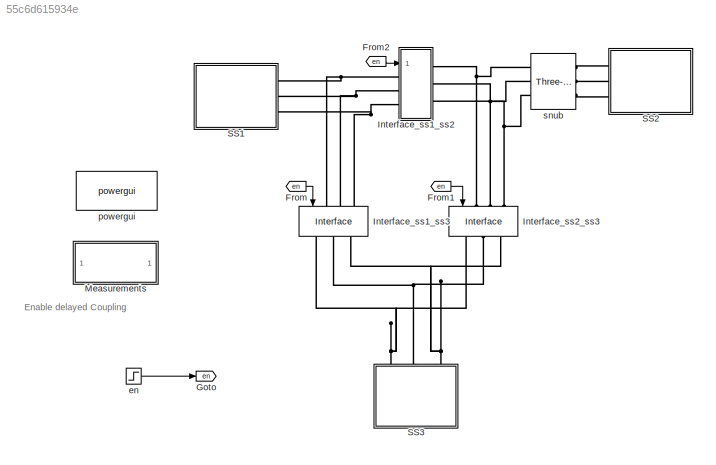
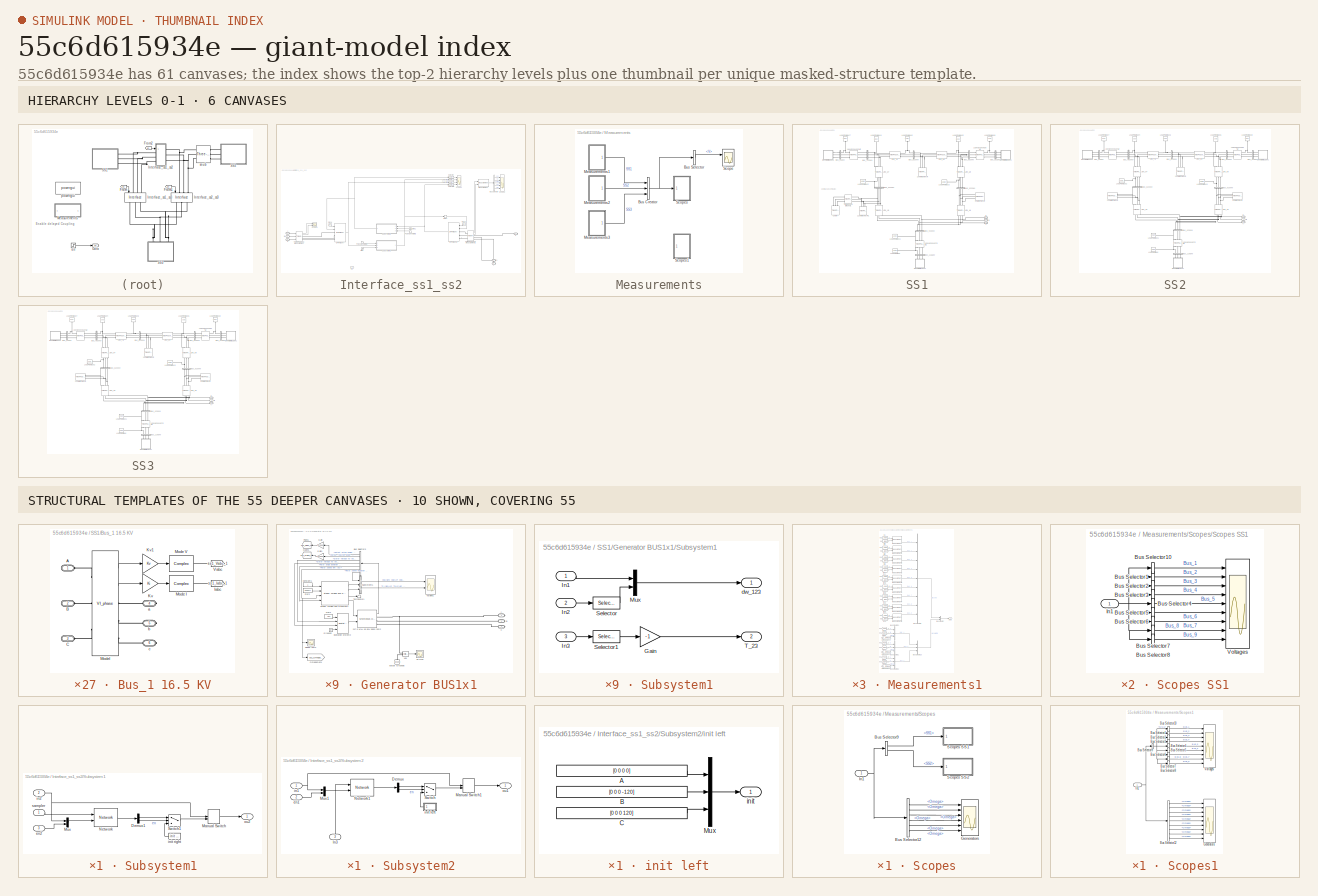
[diagram: thumbnail index - top-2 hierarchy levels (6 canvases) + 10 structural-template representatives of the remaining 55 canvases]
MODEL slx_55c6d615934e
KIND model
CONFIG AbsTol = auto
CONFIG EnableMultiTasking = off
CONFIG FixedStep = Ts
CONFIG InitFcn = Ts=50e-6;\nFreq=60;
CONFIG MaxStep = 1e-4
CONFIG MinStep = auto
CONFIG RelTol = 1e-3
CONFIG SampleTimeConstraint = Unconstrained
CONFIG Solver = ode3
CONFIG SolverName = ode3
CONFIG StartTime = 0.0
CONFIG StopTime = 1
BLOCK [From] From
  Commented = on
  GotoTag = en
BLOCK [From] From1
  Commented = on
  GotoTag = en
BLOCK [From] From2
  GotoTag = en
BLOCK [Goto] Goto
  GotoTag = en
BLOCK [SubSystem] Interface_ss1_ss2
  AncestorBlock = CoSiF/Emulation/Interface
  Ports = [1, 0, 0, 0, 0, 3, 3]
  RequestExecContextInheritance = off
BLOCK [PMIOPort] Interface_ss1_ss2/A
  Side = Left
BLOCK [PMIOPort] Interface_ss1_ss2/B
  Port = 2
  Side = Left
BLOCK [BusSelector] Interface_ss1_ss2/Bus Selector
  OutputAsBus = off
  OutputSignals = V,I,Vrms,signal3.P,signal3.Q
  Ports = [1, 5]
BLOCK [PMIOPort] Interface_ss1_ss2/C
  Port = 3
  Side = Left
BLOCK [Clock] Interface_ss1_ss2/Clock
BLOCK [Clock] Interface_ss1_ss2/Clock1
BLOCK [Reference] Interface_ss1_ss2/DP ITM (3ph)  REF=CoSiF/Dynamic Phasors/DP ITM (3ph)
  Ports = [2, 1, 0, 0, 0, 3]
  SourceBlock = CoSiF/Dynamic Phasors/DP ITM (3ph)
  SourceProductName = ACS Co-simulation Interfaces
BLOCK [Reference] Interface_ss1_ss2/DP ITM (3ph)1  REF=CoSiF/Dynamic Phasors/DP ITM (3ph)
  Ports = [2, 1, 0, 0, 0, 3]
  SourceBlock = CoSiF/Dynamic Phasors/DP ITM (3ph)
  SourceProductName = ACS Co-simulation Interfaces
BLOCK [Delay] Interface_ss1_ss2/Delay
  DelayLength = 1
  InputPortMap = u0
  Ports = [1, 1]
BLOCK [Reference] Interface_ss1_ss2/Measurement  REF=library/Measurement  (lib defined in slx_3ff6af1150bc, slx_4edaf752ec85, +11 more)
  Ports = [2, 1]
  SourceBlock = library/Measurement
BLOCK [DiscretePulseGenerator] Interface_ss1_ss2/Pulse Generator1
  Period = decimation
  Ports = [0, 1]
  SampleTime = Ts
BLOCK [DiscretePulseGenerator] Interface_ss1_ss2/Pulse Generator2
  Period = decimation
  Ports = [0, 1]
  SampleTime = Ts
BLOCK [Scope] Interface_ss1_ss2/Scope1
  Floating = off
  NumInputPorts = 2
  Ports = [2]
  ScopeSpecificationString = Simulink.scopes.TimeScopeBlockCfg('CurrentConfiguration', extmgr.ConfigurationSet(extmgr.Configuration('Core','General UI',true),extmgr.Configuration('Core','Source UI',true),extmgr.Configuration('Sources','WiredSimulink',true,'DataLoggingVariableName','ScopeData2'),extmgr.Configuration('Visuals','Time Domain',true,'SerializedDisplays',{struct('MinYLimReal','-349593.0163','MaxYLimReal','336554.449...<+2262ch>
BLOCK [Scope] Interface_ss1_ss2/Scope2
  Floating = off
  NumInputPorts = 5
  Ports = [5]
  ScopeSpecificationString = Simulink.scopes.TimeScopeBlockCfg('CurrentConfiguration', extmgr.ConfigurationSet(extmgr.Configuration('Core','General UI',true),extmgr.Configuration('Core','Source UI',true),extmgr.Configuration('Sources','WiredSimulink',true,'DataLoggingVariableName','ScopeData3'),extmgr.Configuration('Visuals','Time Domain',true,'SerializedDisplays',{struct('MinYLimReal','-1648120.9029','MaxYLimReal','1225584.0...<+6263ch>
BLOCK [Scope] Interface_ss1_ss2/Scope3
  Floating = off
  NumInputPorts = 4
  Ports = [4]
  ScopeSpecificationString = Simulink.scopes.TimeScopeBlockCfg('CurrentConfiguration', extmgr.ConfigurationSet(extmgr.Configuration('Core','General UI',true),extmgr.Configuration('Core','Source UI',true),extmgr.Configuration('Sources','WiredSimulink',true,'DataLoggingVariableName','ScopeData4'),extmgr.Configuration('Visuals','Time Domain',true,'SerializedDisplays',{struct('MinYLimReal','-816.49916','MaxYLimReal','6212.59241',...<+3626ch>
BLOCK [Selector] Interface_ss1_ss2/Selector
  IndexOptions = Index vector (dialog)
  Indices = [3 4]
  InputPortWidth = 12
  OutputSizes = 1
  Ports = [1, 1]
BLOCK [Selector] Interface_ss1_ss2/Selector1
  IndexOptions = Index vector (dialog)
  Indices = [3 4]
  InputPortWidth = 12
  OutputSizes = 1
  Ports = [1, 1]
BLOCK [Selector] Interface_ss1_ss2/Selector2
  IndexOptions = Index vector (dialog)
  Indices = [3 4]
  InputPortWidth = 12
  OutputSizes = 1
  Ports = [1, 1]
BLOCK [Selector] Interface_ss1_ss2/Selector3
  IndexOptions = Index vector (dialog)
  Indices = [3 4]
  InputPortWidth = 12
  OutputSizes = 1
  Ports = [1, 1]
BLOCK [Step] Interface_ss1_ss2/Step
  SampleTime = 0
  Time = 0.5
BLOCK [Step] Interface_ss1_ss2/Step1
  SampleTime = 0
  Time = 0.7
BLOCK [SubSystem] Interface_ss1_ss2/Subsystem1
  Ports = [3, 1]
  RequestExecContextInheritance = off
BLOCK [Demux] Interface_ss1_ss2/Subsystem1/Demux1
  DisplayOption = bar
  Outputs = [ -1 1 ]
  Ports = [1, 2]
BLOCK [ManualSwitch] Interface_ss1_ss2/Subsystem1/Manual Switch
BLOCK [Mux] Interface_ss1_ss2/Subsystem1/Mux
  DisplayOption = bar
  Inputs = 2
  Ports = [2, 1]
BLOCK [Reference] Interface_ss1_ss2/Subsystem1/Network  REF=CoSiF/Emulation/Network
  Ports = [2, 1]
  SourceBlock = CoSiF/Emulation/Network
  SourceProductName = ACS Co-simulation Interfaces
BLOCK [Switch] Interface_ss1_ss2/Subsystem1/Switch1
  Criteria = u2 ~= 0
  InputSameDT = off
  SaturateOnIntegerOverflow = off
  Threshold = 0.5
BLOCK [Inport] Interface_ss1_ss2/Subsystem1/en2
  IconDisplay = Port number
  Port = 3
BLOCK [Inport] Interface_ss1_ss2/Subsystem1/in2
  IconDisplay = Port number
  Port = 2
BLOCK [Reference] Interface_ss1_ss2/Subsystem1/init right  REF=CoSiF/Emulation/Interface/init left
  Ports = [0, 1]
  SourceBlock = CoSiF/Emulation/Interface/init left
  SourceProductName = ACS Co-simulation Interfaces
BLOCK [Outport] Interface_ss1_ss2/Subsystem1/ou2
  IconDisplay = Port number
BLOCK [Inport] Interface_ss1_ss2/Subsystem1/sampler
  IconDisplay = Port number
BLOCK [SubSystem] Interface_ss1_ss2/Subsystem2
  Ports = [3, 1]
  RequestExecContextInheritance = off
BLOCK [Demux] Interface_ss1_ss2/Subsystem2/Demux
  DisplayOption = bar
  Outputs = [ -1 1 ]
  Ports = [1, 2]
BLOCK [Inport] Interface_ss1_ss2/Subsystem2/In3
  IconDisplay = Port number
  Port = 3
BLOCK [ManualSwitch] Interface_ss1_ss2/Subsystem2/Manual Switch1
BLOCK [Mux] Interface_ss1_ss2/Subsystem2/Mux1
  DisplayOption = bar
  Inputs = 2
  Ports = [2, 1]
BLOCK [Reference] Interface_ss1_ss2/Subsystem2/Network1  REF=CoSiF/Emulation/Network
  Ports = [2, 1]
  SourceBlock = CoSiF/Emulation/Network
  SourceProductName = ACS Co-simulation Interfaces
BLOCK [Switch] Interface_ss1_ss2/Subsystem2/Switch
  Criteria = u2 ~= 0
  InputSameDT = off
  SaturateOnIntegerOverflow = off
  Threshold = 0.5
BLOCK [Inport] Interface_ss1_ss2/Subsystem2/en1
  IconDisplay = Port number
  Port = 2
BLOCK [Inport] Interface_ss1_ss2/Subsystem2/in1
  IconDisplay = Port number
BLOCK [SubSystem] Interface_ss1_ss2/Subsystem2/init left
  Ports = [0, 1]
  RequestExecContextInheritance = off
BLOCK [Constant] Interface_ss1_ss2/Subsystem2/init left/A
  Value = [0 0 0 0]
BLOCK [Constant] Interface_ss1_ss2/Subsystem2/init left/B
  Value = [0 0 0 -120]
BLOCK [Constant] Interface_ss1_ss2/Subsystem2/init left/C
  Value = [0 0 0 120]
BLOCK [Mux] Interface_ss1_ss2/Subsystem2/init left/Mux
  DisplayOption = bar
  Inputs = 3
  Ports = [3, 1]
BLOCK [Outport] Interface_ss1_ss2/Subsystem2/init left/init
  IconDisplay = Port number
BLOCK [Outport] Interface_ss1_ss2/Subsystem2/ou1
  IconDisplay = Port number
BLOCK [Reference] Interface_ss1_ss2/Three-Phase V-I Measurement  REF=powerlib/Measurements/Three-Phase
V-I Measurement
  Ports = [0, 2, 0, 0, 0, 3, 3]
  SourceBlock = powerlib/Measurements/Three-Phase\nV-I Measurement
  SourceProductBaseCode = PS
  SourceProductName = Simscape Power Systems
  SourceType = Three-Phase VI Measurement
BLOCK [Reference] Interface_ss1_ss2/Three-Phase V-I Measurement2  REF=powerlib/Measurements/Three-Phase
V-I Measurement
  Ports = [0, 2, 0, 0, 0, 3, 3]
  SourceBlock = powerlib/Measurements/Three-Phase\nV-I Measurement
  SourceProductBaseCode = PS
  SourceProductName = Simscape Power Systems
  SourceType = Three-Phase VI Measurement
BLOCK [PMIOPort] Interface_ss1_ss2/a
  Port = 4
  Side = Right
BLOCK [PMIOPort] Interface_ss1_ss2/b
  Port = 5
  Side = Right
BLOCK [PMIOPort] Interface_ss1_ss2/c
  Port = 6
  Side = Right
BLOCK [Inport] Interface_ss1_ss2/en
  IconDisplay = Port number
BLOCK [Reference] Interface_ss1_ss3  REF=CoSiF/Emulation/Interface
  Commented = on
  Ports = [1, 0, 0, 0, 0, 3, 3]
  SourceBlock = CoSiF/Emulation/Interface
  SourceProductName = ACS Co-simulation Interfaces
BLOCK [Reference] Interface_ss2_ss3  REF=CoSiF/Emulation/Interface
  Commented = on
  Ports = [1, 0, 0, 0, 0, 3, 3]
  SourceBlock = CoSiF/Emulation/Interface
  SourceProductName = ACS Co-simulation Interfaces
BLOCK [SubSystem] Measurements
  Ports = []
  RequestExecContextInheritance = off
BLOCK [BusCreator] Measurements/Bus Creator
  DisplayOption = bar
  InheritFromInputs = on
  Inputs = 3
  Ports = [3, 1]
BLOCK [BusSelector] Measurements/Bus Selector
  OutputAsBus = off
  OutputSignals = SS1.Busses.Bus_4.V
  Ports = [1, 1]
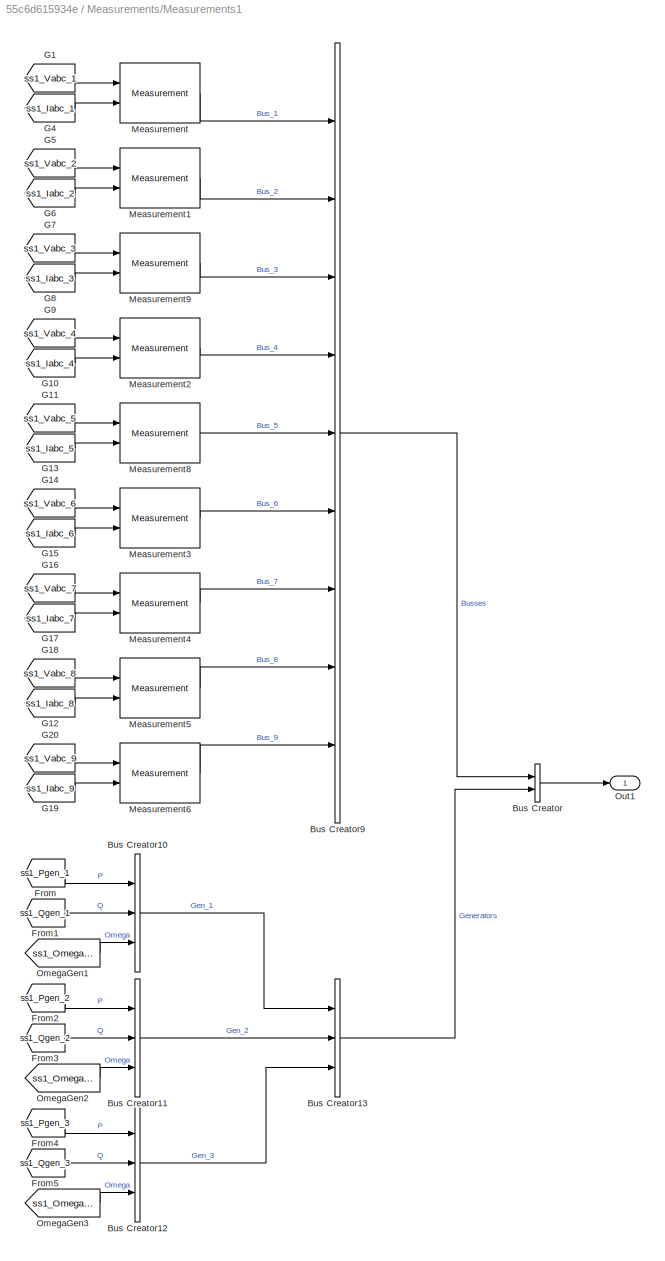
BLOCK [SubSystem] Measurements/Measurements1
  Ports = [0, 1]
  RequestExecContextInheritance = off
BLOCK [BusCreator] Measurements/Measurements1/Bus Creator
  DisplayOption = bar
  InheritFromInputs = on
  Inputs = 2
  Ports = [2, 1]
BLOCK [BusCreator] Measurements/Measurements1/Bus Creator10
  DisplayOption = bar
  InheritFromInputs = on
  Inputs = 3
  Ports = [3, 1]
BLOCK [BusCreator] Measurements/Measurements1/Bus Creator11
  DisplayOption = bar
  InheritFromInputs = on
  Inputs = 3
  Ports = [3, 1]
BLOCK [BusCreator] Measurements/Measurements1/Bus Creator12
  DisplayOption = bar
  InheritFromInputs = on
  Inputs = 3
  Ports = [3, 1]
BLOCK [BusCreator] Measurements/Measurements1/Bus Creator13
  DisplayOption = bar
  InheritFromInputs = on
  Inputs = 3
  Ports = [3, 1]
BLOCK [BusCreator] Measurements/Measurements1/Bus Creator9
  DisplayOption = bar
  InheritFromInputs = on
  Inputs = 9
  Ports = [9, 1]
BLOCK [From] Measurements/Measurements1/From
  GotoTag = ss1_Pgen_1
  TagVisibility = global
BLOCK [From] Measurements/Measurements1/From1
  GotoTag = ss1_Qgen_1
  TagVisibility = global
BLOCK [From] Measurements/Measurements1/From2
  GotoTag = ss1_Pgen_2
  TagVisibility = global
BLOCK [From] Measurements/Measurements1/From3
  GotoTag = ss1_Qgen_2
  TagVisibility = global
BLOCK [From] Measurements/Measurements1/From4
  GotoTag = ss1_Pgen_3
  TagVisibility = global
BLOCK [From] Measurements/Measurements1/From5
  GotoTag = ss1_Qgen_3
  TagVisibility = global
BLOCK [From] Measurements/Measurements1/G1
  GotoTag = ss1_Vabc_1
  TagVisibility = global
BLOCK [From] Measurements/Measurements1/G10
  GotoTag = ss1_Iabc_4
  TagVisibility = global
BLOCK [From] Measurements/Measurements1/G11
  GotoTag = ss1_Vabc_5
  TagVisibility = global
BLOCK [From] Measurements/Measurements1/G12
  GotoTag = ss1_Iabc_8
  TagVisibility = global
BLOCK [From] Measurements/Measurements1/G13
  GotoTag = ss1_Iabc_5
  TagVisibility = global
BLOCK [From] Measurements/Measurements1/G14
  GotoTag = ss1_Vabc_6
  TagVisibility = global
BLOCK [From] Measurements/Measurements1/G15
  GotoTag = ss1_Iabc_6
  TagVisibility = global
BLOCK [From] Measurements/Measurements1/G16
  GotoTag = ss1_Vabc_7
  TagVisibility = global
BLOCK [From] Measurements/Measurements1/G17
  GotoTag = ss1_Iabc_7
  TagVisibility = global
BLOCK [From] Measurements/Measurements1/G18
  GotoTag = ss1_Vabc_8
  TagVisibility = global
BLOCK [From] Measurements/Measurements1/G19
  GotoTag = ss1_Iabc_9
  TagVisibility = global
BLOCK [From] Measurements/Measurements1/G20
  GotoTag = ss1_Vabc_9
  TagVisibility = global
BLOCK [From] Measurements/Measurements1/G4
  GotoTag = ss1_Iabc_1
  TagVisibility = global
BLOCK [From] Measurements/Measurements1/G5
  GotoTag = ss1_Vabc_2
  TagVisibility = global
BLOCK [From] Measurements/Measurements1/G6
  GotoTag = ss1_Iabc_2
  TagVisibility = global
BLOCK [From] Measurements/Measurements1/G7
  GotoTag = ss1_Vabc_3
  TagVisibility = global
BLOCK [From] Measurements/Measurements1/G8
  GotoTag = ss1_Iabc_3
  TagVisibility = global
BLOCK [From] Measurements/Measurements1/G9
  GotoTag = ss1_Vabc_4
  TagVisibility = global
BLOCK [Reference] Measurements/Measurements1/Measurement  REF=library/Measurement  (lib defined in slx_3ff6af1150bc, slx_4edaf752ec85, +11 more)
  Ports = [2, 1]
  SourceBlock = library/Measurement
BLOCK [Reference] Measurements/Measurements1/Measurement1  REF=library/Measurement  (lib defined in slx_3ff6af1150bc, slx_4edaf752ec85, +11 more)
  Ports = [2, 1]
  SourceBlock = library/Measurement
BLOCK [Reference] Measurements/Measurements1/Measurement2  REF=library/Measurement  (lib defined in slx_3ff6af1150bc, slx_4edaf752ec85, +11 more)
  Ports = [2, 1]
  SourceBlock = library/Measurement
BLOCK [Reference] Measurements/Measurements1/Measurement3  REF=library/Measurement  (lib defined in slx_3ff6af1150bc, slx_4edaf752ec85, +11 more)
  Ports = [2, 1]
  SourceBlock = library/Measurement
BLOCK [Reference] Measurements/Measurements1/Measurement4  REF=library/Measurement  (lib defined in slx_3ff6af1150bc, slx_4edaf752ec85, +11 more)
  Ports = [2, 1]
  SourceBlock = library/Measurement
BLOCK [Reference] Measurements/Measurements1/Measurement5  REF=library/Measurement  (lib defined in slx_3ff6af1150bc, slx_4edaf752ec85, +11 more)
  Ports = [2, 1]
  SourceBlock = library/Measurement
BLOCK [Reference] Measurements/Measurements1/Measurement6  REF=library/Measurement  (lib defined in slx_3ff6af1150bc, slx_4edaf752ec85, +11 more)
  Ports = [2, 1]
  SourceBlock = library/Measurement
BLOCK [Reference] Measurements/Measurements1/Measurement8  REF=library/Measurement  (lib defined in slx_3ff6af1150bc, slx_4edaf752ec85, +11 more)
  Ports = [2, 1]
  SourceBlock = library/Measurement
BLOCK [Reference] Measurements/Measurements1/Measurement9  REF=library/Measurement  (lib defined in slx_3ff6af1150bc, slx_4edaf752ec85, +11 more)
  Ports = [2, 1]
  SourceBlock = library/Measurement
BLOCK [From] Measurements/Measurements1/OmegaGen1
  GotoTag = ss1_OmegaGen_1
  TagVisibility = global
BLOCK [From] Measurements/Measurements1/OmegaGen2
  GotoTag = ss1_OmegaGen_2
  TagVisibility = global
BLOCK [From] Measurements/Measurements1/OmegaGen3
  GotoTag = ss1_OmegaGen_3
  TagVisibility = global
BLOCK [Outport] Measurements/Measurements1/Out1
  IconDisplay = Port number
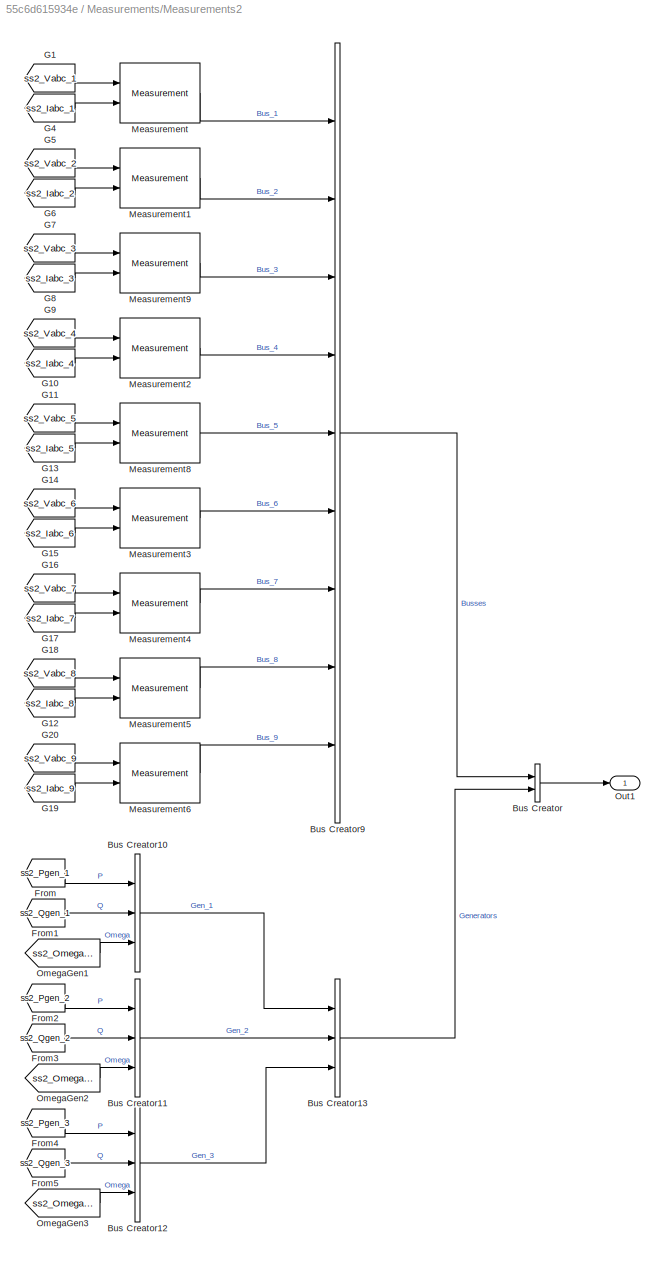
BLOCK [SubSystem] Measurements/Measurements2
  Ports = [0, 1]
  RequestExecContextInheritance = off
BLOCK [BusCreator] Measurements/Measurements2/Bus Creator
  DisplayOption = bar
  InheritFromInputs = on
  Inputs = 2
  Ports = [2, 1]
BLOCK [BusCreator] Measurements/Measurements2/Bus Creator10
  DisplayOption = bar
  InheritFromInputs = on
  Inputs = 3
  Ports = [3, 1]
BLOCK [BusCreator] Measurements/Measurements2/Bus Creator11
  DisplayOption = bar
  InheritFromInputs = on
  Inputs = 3
  Ports = [3, 1]
BLOCK [BusCreator] Measurements/Measurements2/Bus Creator12
  DisplayOption = bar
  InheritFromInputs = on
  Inputs = 3
  Ports = [3, 1]
BLOCK [BusCreator] Measurements/Measurements2/Bus Creator13
  DisplayOption = bar
  InheritFromInputs = on
  Inputs = 3
  Ports = [3, 1]
BLOCK [BusCreator] Measurements/Measurements2/Bus Creator9
  DisplayOption = bar
  InheritFromInputs = on
  Inputs = 9
  Ports = [9, 1]
BLOCK [From] Measurements/Measurements2/From
  GotoTag = ss2_Pgen_1
  TagVisibility = global
BLOCK [From] Measurements/Measurements2/From1
  GotoTag = ss2_Qgen_1
  TagVisibility = global
BLOCK [From] Measurements/Measurements2/From2
  GotoTag = ss2_Pgen_2
  TagVisibility = global
BLOCK [From] Measurements/Measurements2/From3
  GotoTag = ss2_Qgen_2
  TagVisibility = global
BLOCK [From] Measurements/Measurements2/From4
  GotoTag = ss2_Pgen_3
  TagVisibility = global
BLOCK [From] Measurements/Measurements2/From5
  GotoTag = ss2_Qgen_3
  TagVisibility = global
BLOCK [From] Measurements/Measurements2/G1
  GotoTag = ss2_Vabc_1
  TagVisibility = global
BLOCK [From] Measurements/Measurements2/G10
  GotoTag = ss2_Iabc_4
  TagVisibility = global
BLOCK [From] Measurements/Measurements2/G11
  GotoTag = ss2_Vabc_5
  TagVisibility = global
BLOCK [From] Measurements/Measurements2/G12
  GotoTag = ss2_Iabc_8
  TagVisibility = global
BLOCK [From] Measurements/Measurements2/G13
  GotoTag = ss2_Iabc_5
  TagVisibility = global
BLOCK [From] Measurements/Measurements2/G14
  GotoTag = ss2_Vabc_6
  TagVisibility = global
BLOCK [From] Measurements/Measurements2/G15
  GotoTag = ss2_Iabc_6
  TagVisibility = global
BLOCK [From] Measurements/Measurements2/G16
  GotoTag = ss2_Vabc_7
  TagVisibility = global
BLOCK [From] Measurements/Measurements2/G17
  GotoTag = ss2_Iabc_7
  TagVisibility = global
BLOCK [From] Measurements/Measurements2/G18
  GotoTag = ss2_Vabc_8
  TagVisibility = global
BLOCK [From] Measurements/Measurements2/G19
  GotoTag = ss2_Iabc_9
  TagVisibility = global
BLOCK [From] Measurements/Measurements2/G20
  GotoTag = ss2_Vabc_9
  TagVisibility = global
BLOCK [From] Measurements/Measurements2/G4
  GotoTag = ss2_Iabc_1
  TagVisibility = global
BLOCK [From] Measurements/Measurements2/G5
  GotoTag = ss2_Vabc_2
  TagVisibility = global
BLOCK [From] Measurements/Measurements2/G6
  GotoTag = ss2_Iabc_2
  TagVisibility = global
BLOCK [From] Measurements/Measurements2/G7
  GotoTag = ss2_Vabc_3
  TagVisibility = global
BLOCK [From] Measurements/Measurements2/G8
  GotoTag = ss2_Iabc_3
  TagVisibility = global
BLOCK [From] Measurements/Measurements2/G9
  GotoTag = ss2_Vabc_4
  TagVisibility = global
BLOCK [Reference] Measurements/Measurements2/Measurement  REF=library/Measurement  (lib defined in slx_3ff6af1150bc, slx_4edaf752ec85, +11 more)
  Ports = [2, 1]
  SourceBlock = library/Measurement
BLOCK [Reference] Measurements/Measurements2/Measurement1  REF=library/Measurement  (lib defined in slx_3ff6af1150bc, slx_4edaf752ec85, +11 more)
  Ports = [2, 1]
  SourceBlock = library/Measurement
BLOCK [Reference] Measurements/Measurements2/Measurement2  REF=library/Measurement  (lib defined in slx_3ff6af1150bc, slx_4edaf752ec85, +11 more)
  Ports = [2, 1]
  SourceBlock = library/Measurement
BLOCK [Reference] Measurements/Measurements2/Measurement3  REF=library/Measurement  (lib defined in slx_3ff6af1150bc, slx_4edaf752ec85, +11 more)
  Ports = [2, 1]
  SourceBlock = library/Measurement
BLOCK [Reference] Measurements/Measurements2/Measurement4  REF=library/Measurement  (lib defined in slx_3ff6af1150bc, slx_4edaf752ec85, +11 more)
  Ports = [2, 1]
  SourceBlock = library/Measurement
BLOCK [Reference] Measurements/Measurements2/Measurement5  REF=library/Measurement  (lib defined in slx_3ff6af1150bc, slx_4edaf752ec85, +11 more)
  Ports = [2, 1]
  SourceBlock = library/Measurement
BLOCK [Reference] Measurements/Measurements2/Measurement6  REF=library/Measurement  (lib defined in slx_3ff6af1150bc, slx_4edaf752ec85, +11 more)
  Ports = [2, 1]
  SourceBlock = library/Measurement
BLOCK [Reference] Measurements/Measurements2/Measurement8  REF=library/Measurement  (lib defined in slx_3ff6af1150bc, slx_4edaf752ec85, +11 more)
  Ports = [2, 1]
  SourceBlock = library/Measurement
BLOCK [Reference] Measurements/Measurements2/Measurement9  REF=library/Measurement  (lib defined in slx_3ff6af1150bc, slx_4edaf752ec85, +11 more)
  Ports = [2, 1]
  SourceBlock = library/Measurement
BLOCK [From] Measurements/Measurements2/OmegaGen1
  GotoTag = ss2_OmegaGen_1
  TagVisibility = global
BLOCK [From] Measurements/Measurements2/OmegaGen2
  GotoTag = ss2_OmegaGen_2
  TagVisibility = global
BLOCK [From] Measurements/Measurements2/OmegaGen3
  GotoTag = ss2_OmegaGen_3
  TagVisibility = global
BLOCK [Outport] Measurements/Measurements2/Out1
  IconDisplay = Port number
BLOCK [SubSystem] Measurements/Measurements3
  Commented = on
  Ports = [0, 1]
  RequestExecContextInheritance = off
BLOCK [BusCreator] Measurements/Measurements3/Bus Creator
  DisplayOption = bar
  InheritFromInputs = on
  Inputs = 2
  Ports = [2, 1]
BLOCK [BusCreator] Measurements/Measurements3/Bus Creator10
  DisplayOption = bar
  InheritFromInputs = on
  Inputs = 3
  Ports = [3, 1]
BLOCK [BusCreator] Measurements/Measurements3/Bus Creator11
  DisplayOption = bar
  InheritFromInputs = on
  Inputs = 3
  Ports = [3, 1]
BLOCK [BusCreator] Measurements/Measurements3/Bus Creator12
  DisplayOption = bar
  InheritFromInputs = on
  Inputs = 3
  Ports = [3, 1]
BLOCK [BusCreator] Measurements/Measurements3/Bus Creator13
  DisplayOption = bar
  InheritFromInputs = on
  Inputs = 3
  Ports = [3, 1]
BLOCK [BusCreator] Measurements/Measurements3/Bus Creator9
  DisplayOption = bar
  InheritFromInputs = on
  Inputs = 9
  Ports = [9, 1]
BLOCK [From] Measurements/Measurements3/From
  GotoTag = ss3_Pgen_1
BLOCK [From] Measurements/Measurements3/From1
  GotoTag = ss3_Qgen_1
BLOCK [From] Measurements/Measurements3/From2
  GotoTag = ss3_Pgen_2
BLOCK [From] Measurements/Measurements3/From3
  GotoTag = ss3_Qgen_2
BLOCK [From] Measurements/Measurements3/From4
  GotoTag = ss3_Pgen_3
BLOCK [From] Measurements/Measurements3/From5
  GotoTag = ss3_Qgen_3
BLOCK [From] Measurements/Measurements3/G1
  GotoTag = ss3_Vabc_1
BLOCK [From] Measurements/Measurements3/G10
  GotoTag = ss3_Iabc_4
BLOCK [From] Measurements/Measurements3/G11
  GotoTag = ss3_Vabc_5
BLOCK [From] Measurements/Measurements3/G12
  GotoTag = ss3_Iabc_8
BLOCK [From] Measurements/Measurements3/G13
  GotoTag = ss3_Iabc_5
BLOCK [From] Measurements/Measurements3/G14
  GotoTag = ss3_Vabc_6
BLOCK [From] Measurements/Measurements3/G15
  GotoTag = ss3_Iabc_6
BLOCK [From] Measurements/Measurements3/G16
  GotoTag = ss3_Vabc_7
BLOCK [From] Measurements/Measurements3/G17
  GotoTag = ss3_Iabc_7
BLOCK [From] Measurements/Measurements3/G18
  GotoTag = ss3_Vabc_8
BLOCK [From] Measurements/Measurements3/G19
  GotoTag = ss3_Iabc_9
BLOCK [From] Measurements/Measurements3/G20
  GotoTag = ss3_Vabc_9
BLOCK [From] Measurements/Measurements3/G4
  GotoTag = ss3_Iabc_1
BLOCK [From] Measurements/Measurements3/G5
  GotoTag = ss3_Vabc_2
BLOCK [From] Measurements/Measurements3/G6
  GotoTag = ss3_Iabc_2
BLOCK [From] Measurements/Measurements3/G7
  GotoTag = ss3_Vabc_3
BLOCK [From] Measurements/Measurements3/G8
  GotoTag = ss3_Iabc_3
BLOCK [From] Measurements/Measurements3/G9
  GotoTag = ss3_Vabc_4
BLOCK [Reference] Measurements/Measurements3/Measurement  REF=library/Measurement  (lib defined in slx_3ff6af1150bc, slx_4edaf752ec85, +11 more)
  Ports = [2, 1]
  SourceBlock = library/Measurement
BLOCK [Reference] Measurements/Measurements3/Measurement1  REF=library/Measurement  (lib defined in slx_3ff6af1150bc, slx_4edaf752ec85, +11 more)
  Ports = [2, 1]
  SourceBlock = library/Measurement
BLOCK [Reference] Measurements/Measurements3/Measurement2  REF=library/Measurement  (lib defined in slx_3ff6af1150bc, slx_4edaf752ec85, +11 more)
  Ports = [2, 1]
  SourceBlock = library/Measurement
BLOCK [Reference] Measurements/Measurements3/Measurement3  REF=library/Measurement  (lib defined in slx_3ff6af1150bc, slx_4edaf752ec85, +11 more)
  Ports = [2, 1]
  SourceBlock = library/Measurement
BLOCK [Reference] Measurements/Measurements3/Measurement4  REF=library/Measurement  (lib defined in slx_3ff6af1150bc, slx_4edaf752ec85, +11 more)
  Ports = [2, 1]
  SourceBlock = library/Measurement
BLOCK [Reference] Measurements/Measurements3/Measurement5  REF=library/Measurement  (lib defined in slx_3ff6af1150bc, slx_4edaf752ec85, +11 more)
  Ports = [2, 1]
  SourceBlock = library/Measurement
BLOCK [Reference] Measurements/Measurements3/Measurement6  REF=library/Measurement  (lib defined in slx_3ff6af1150bc, slx_4edaf752ec85, +11 more)
  Ports = [2, 1]
  SourceBlock = library/Measurement
BLOCK [Reference] Measurements/Measurements3/Measurement8  REF=library/Measurement  (lib defined in slx_3ff6af1150bc, slx_4edaf752ec85, +11 more)
  Ports = [2, 1]
  SourceBlock = library/Measurement
BLOCK [Reference] Measurements/Measurements3/Measurement9  REF=library/Measurement  (lib defined in slx_3ff6af1150bc, slx_4edaf752ec85, +11 more)
  Ports = [2, 1]
  SourceBlock = library/Measurement
BLOCK [From] Measurements/Measurements3/OmegaGen1
  GotoTag = ss3_OmegaGen_1
BLOCK [From] Measurements/Measurements3/OmegaGen2
  GotoTag = ss3_OmegaGen_2
BLOCK [From] Measurements/Measurements3/OmegaGen3
  GotoTag = ss3_OmegaGen_3
BLOCK [Outport] Measurements/Measurements3/Out1
  IconDisplay = Port number
BLOCK [Scope] Measurements/Scope
  Floating = off
  NumInputPorts = 2
  Ports = [2]
  ScopeSpecificationString = Simulink.scopes.TimeScopeBlockCfg('CurrentConfiguration', extmgr.ConfigurationSet(extmgr.Configuration('Core','General UI',true),extmgr.Configuration('Core','Source UI',true),extmgr.Configuration('Sources','WiredSimulink',true,'DataLoggingVariableName','ScopeData1'),extmgr.Configuration('Visuals','Time Domain',true,'SerializedDisplays',{struct('MinYLimReal','-341719.52364','MaxYLimReal','347984.04...<+2062ch>
BLOCK [SubSystem] Measurements/Scopes
  Commented = on
  Ports = [1]
  RequestExecContextInheritance = off
BLOCK [BusSelector] Measurements/Scopes/Bus Selector12
  OutputAsBus = off
  OutputSignals = SS1.Generators.Gen_2.Omega,SS1.Generators.Gen_1.Omega,SS1.Generators.Gen_3.Omega,SS2.Generators.Gen_2.Omega,SS2.Generators.Gen_1.Omega,SS2.Generators.Gen_3.Omega
  Ports = [1, 6]
BLOCK [BusSelector] Measurements/Scopes/Bus Selector9
  OutputAsBus = off
  OutputSignals = SS1,SS2
  Ports = [1, 2]
BLOCK [Scope] Measurements/Scopes/Generators
  Floating = off
  NumInputPorts = 6
  Ports = [6]
  ScopeSpecificationString = Simulink.scopes.TimeScopeBlockCfg('CurrentConfiguration', extmgr.ConfigurationSet(extmgr.Configuration('Core','General UI',true,'DisplayFullSourceName',true),extmgr.Configuration('Core','Source UI',true),extmgr.Configuration('Sources','WiredSimulink',true,'DataLoggingVariableName','ScopeData1'),extmgr.Configuration('Visuals','Time Domain',true,'SerializedDisplays',{struct('MinYLimReal','0.99543','...<+5023ch>
BLOCK [Inport] Measurements/Scopes/In1
  IconDisplay = Port number
BLOCK [SubSystem] Measurements/Scopes/Scopes SS1
  Ports = [1]
  RequestExecContextInheritance = off
BLOCK [BusSelector] Measurements/Scopes/Scopes SS1/Bus Selector1
  OutputAsBus = on
  OutputSignals = Busses.Bus_2.Vrms
  Ports = [1, 1]
BLOCK [BusSelector] Measurements/Scopes/Scopes SS1/Bus Selector10
  OutputAsBus = on
  OutputSignals = Busses.Bus_1.Vrms
  Ports = [1, 1]
BLOCK [BusSelector] Measurements/Scopes/Scopes SS1/Bus Selector2
  OutputAsBus = on
  OutputSignals = Busses.Bus_3.Vrms
  Ports = [1, 1]
BLOCK [BusSelector] Measurements/Scopes/Scopes SS1/Bus Selector3
  OutputAsBus = on
  OutputSignals = Busses.Bus_4.Vrms
  Ports = [1, 1]
BLOCK [BusSelector] Measurements/Scopes/Scopes SS1/Bus Selector4
  OutputAsBus = on
  OutputSignals = Busses.Bus_5.Vrms
  Ports = [1, 1]
BLOCK [BusSelector] Measurements/Scopes/Scopes SS1/Bus Selector5
  OutputAsBus = on
  OutputSignals = Busses.Bus_6.Vrms
  Ports = [1, 1]
BLOCK [BusSelector] Measurements/Scopes/Scopes SS1/Bus Selector6
  OutputAsBus = on
  OutputSignals = Busses.Bus_7.Vrms
  Ports = [1, 1]
BLOCK [BusSelector] Measurements/Scopes/Scopes SS1/Bus Selector7
  OutputAsBus = on
  OutputSignals = Busses.Bus_8.Vrms
  Ports = [1, 1]
BLOCK [BusSelector] Measurements/Scopes/Scopes SS1/Bus Selector8
  OutputAsBus = on
  OutputSignals = Busses.Bus_9.Vrms
  Ports = [1, 1]
BLOCK [Inport] Measurements/Scopes/Scopes SS1/In1
  IconDisplay = Port number
BLOCK [Scope] Measurements/Scopes/Scopes SS1/Voltages
  Floating = off
  NumInputPorts = 9
  Ports = [9]
  ScopeSpecificationString = Simulink.scopes.TimeScopeBlockCfg('CurrentConfiguration', extmgr.ConfigurationSet(extmgr.Configuration('Core','General UI',true,'DisplayFullSourceName',true),extmgr.Configuration('Core','Source UI',true),extmgr.Configuration('Sources','WiredSimulink',true),extmgr.Configuration('Visuals','Time Domain',true,'SerializedDisplays',{struct('MinYLimReal','-0.66094','MaxYLimReal','6.08785','YLabelReal',''...<+7435ch>
BLOCK [SubSystem] Measurements/Scopes/Scopes SS2
  Ports = [1]
  RequestExecContextInheritance = off
BLOCK [BusSelector] Measurements/Scopes/Scopes SS2/Bus Selector1
  OutputAsBus = on
  OutputSignals = Busses.Bus_2.Vrms
  Ports = [1, 1]
BLOCK [BusSelector] Measurements/Scopes/Scopes SS2/Bus Selector10
  OutputAsBus = on
  OutputSignals = Busses.Bus_1.Vrms
  Ports = [1, 1]
BLOCK [BusSelector] Measurements/Scopes/Scopes SS2/Bus Selector2
  OutputAsBus = on
  OutputSignals = Busses.Bus_3.Vrms
  Ports = [1, 1]
BLOCK [BusSelector] Measurements/Scopes/Scopes SS2/Bus Selector3
  OutputAsBus = on
  OutputSignals = Busses.Bus_4.Vrms
  Ports = [1, 1]
BLOCK [BusSelector] Measurements/Scopes/Scopes SS2/Bus Selector4
  OutputAsBus = on
  OutputSignals = Busses.Bus_5.Vrms
  Ports = [1, 1]
BLOCK [BusSelector] Measurements/Scopes/Scopes SS2/Bus Selector5
  OutputAsBus = on
  OutputSignals = Busses.Bus_6.Vrms
  Ports = [1, 1]
BLOCK [BusSelector] Measurements/Scopes/Scopes SS2/Bus Selector6
  OutputAsBus = on
  OutputSignals = Busses.Bus_7.Vrms
  Ports = [1, 1]
BLOCK [BusSelector] Measurements/Scopes/Scopes SS2/Bus Selector7
  OutputAsBus = on
  OutputSignals = Busses.Bus_8.Vrms
  Ports = [1, 1]
BLOCK [BusSelector] Measurements/Scopes/Scopes SS2/Bus Selector8
  OutputAsBus = on
  OutputSignals = Busses.Bus_9.Vrms
  Ports = [1, 1]
BLOCK [Inport] Measurements/Scopes/Scopes SS2/In1
  IconDisplay = Port number
BLOCK [Scope] Measurements/Scopes/Scopes SS2/Voltages
  Floating = off
  NumInputPorts = 9
  Ports = [9]
  ScopeSpecificationString = Simulink.scopes.TimeScopeBlockCfg('CurrentConfiguration', extmgr.ConfigurationSet(extmgr.Configuration('Core','General UI',true,'DisplayFullSourceName',true),extmgr.Configuration('Core','Source UI',true),extmgr.Configuration('Sources','WiredSimulink',true),extmgr.Configuration('Visuals','Time Domain',true,'SerializedDisplays',{struct('MinYLimReal','0.96645','MaxYLimReal','1.09828','YLabelReal','',...<+7431ch>
BLOCK [SubSystem] Measurements/Scopes1
  Commented = on
  Ports = [1]
  RequestExecContextInheritance = off
BLOCK [BusSelector] Measurements/Scopes1/Bus Selector1
  OutputAsBus = on
  OutputSignals = Busses.Bus_2.Vrms
  Ports = [1, 1]
BLOCK [BusSelector] Measurements/Scopes1/Bus Selector10
  OutputAsBus = on
  OutputSignals = Busses.Bus_1.Vrms
  Ports = [1, 1]
BLOCK [BusSelector] Measurements/Scopes1/Bus Selector12
  OutputAsBus = off
  OutputSignals = SS1.Generators.Gen_2.Omega,SS1.Generators.Gen_1.Omega,SS1.Generators.Gen_3.Omega,SS2.Generators.Gen_2.Omega,SS2.Generators.Gen_1.Omega,SS2.Generators.Gen_3.Omega,SS3.Generators.Gen_1.Omega,SS3.Generators.Gen_2.Omega,SS3.Generators.Gen_3.Omega
  Ports = [1, 9]
BLOCK [BusSelector] Measurements/Scopes1/Bus Selector2
  OutputAsBus = on
  OutputSignals = Busses.Bus_3.Vrms
  Ports = [1, 1]
BLOCK [BusSelector] Measurements/Scopes1/Bus Selector3
  OutputAsBus = on
  OutputSignals = Busses.Bus_4.Vrms
  Ports = [1, 1]
BLOCK [BusSelector] Measurements/Scopes1/Bus Selector4
  OutputAsBus = on
  OutputSignals = Busses.Bus_5.Vrms
  Ports = [1, 1]
BLOCK [BusSelector] Measurements/Scopes1/Bus Selector5
  OutputAsBus = on
  OutputSignals = Busses.Bus_6.Vrms
  Ports = [1, 1]
BLOCK [BusSelector] Measurements/Scopes1/Bus Selector6
  OutputAsBus = on
  OutputSignals = Busses.Bus_7.Vrms
  Ports = [1, 1]
BLOCK [BusSelector] Measurements/Scopes1/Bus Selector7
  OutputAsBus = on
  OutputSignals = Busses.Bus_8.Vrms
  Ports = [1, 1]
BLOCK [BusSelector] Measurements/Scopes1/Bus Selector8
  OutputAsBus = on
  OutputSignals = Busses.Bus_9.Vrms
  Ports = [1, 1]
BLOCK [BusSelector] Measurements/Scopes1/Bus Selector9
  OutputAsBus = off
  OutputSignals = SS1
  Ports = [1, 1]
BLOCK [Scope] Measurements/Scopes1/Generators
  Floating = off
  NumInputPorts = 9
  Ports = [9]
  ScopeSpecificationString = Simulink.scopes.TimeScopeBlockCfg('CurrentConfiguration', extmgr.ConfigurationSet(extmgr.Configuration('Core','General UI',true,'DisplayFullSourceName',true),extmgr.Configuration('Core','Source UI',true),extmgr.Configuration('Sources','WiredSimulink',true,'DataLoggingVariableName','ScopeData1'),extmgr.Configuration('Visuals','Time Domain',true,'SerializedDisplays',{struct('MinYLimReal','0.99543','...<+7212ch>
BLOCK [Inport] Measurements/Scopes1/In1
  IconDisplay = Port number
BLOCK [Scope] Measurements/Scopes1/Voltages
  Floating = off
  NumInputPorts = 9
  Ports = [9]
  ScopeSpecificationString = Simulink.scopes.TimeScopeBlockCfg('CurrentConfiguration', extmgr.ConfigurationSet(extmgr.Configuration('Core','General UI',true,'DisplayFullSourceName',true),extmgr.Configuration('Core','Source UI',true),extmgr.Configuration('Sources','WiredSimulink',true),extmgr.Configuration('Visuals','Time Domain',true,'SerializedDisplays',{struct('MinYLimReal','0.96645','MaxYLimReal','1.09828','YLabelReal','',...<+7431ch>
BLOCK [SubSystem] SS1
  Ports = [0, 0, 0, 0, 0, 3]
  RequestExecContextInheritance = off
BLOCK [Reference] SS1/100 MW 35 MVAR  REF=powerlib/Elements/Three-Phase
Series RLC Load
  AttributesFormatString = \n
  Ports = [0, 0, 0, 0, 0, 3]
  SourceBlock = powerlib/Elements/Three-Phase\nSeries RLC Load
  SourceProductBaseCode = PS
  SourceProductName = Simscape Power Systems
  SourceType = Three-Phase Series RLC Load
BLOCK [Reference] SS1/125 MW 50 MVAR1  REF=powerlib/Elements/Three-Phase
Series RLC Load
  AttributesFormatString = \n
  Ports = [0, 0, 0, 0, 0, 3]
  SourceBlock = powerlib/Elements/Three-Phase\nSeries RLC Load
  SourceProductBaseCode = PS
  SourceProductName = Simscape Power Systems
  SourceType = Three-Phase Series RLC Load
BLOCK [Reference] SS1/13.8 KV//230 KV 5.86 %Z  REF=powerlib/Elements/Three-Phase
Transformer
(Two Windings)
  Ports = [0, 0, 0, 0, 0, 3, 3]
  SourceBlock = powerlib/Elements/Three-Phase\nTransformer\n(Two Windings)
  SourceProductBaseCode = PS
  SourceProductName = Simscape Power Systems
  SourceType = Three-Phase Transformer (Two Windings)
BLOCK [Reference] SS1/16.5 KV//230 KV 5.76 %Z       REF=powerlib/Elements/Three-Phase
Transformer
(Two Windings)
  Ports = [0, 0, 0, 0, 0, 3, 3]
  SourceBlock = powerlib/Elements/Three-Phase\nTransformer\n(Two Windings)
  SourceProductBaseCode = PS
  SourceProductName = Simscape Power Systems
  SourceType = Three-Phase Transformer (Two Windings)
BLOCK [Reference] SS1/18KV//230KV 6.25 %Z  REF=powerlib/Elements/Three-Phase
Transformer
(Two Windings)
  Ports = [0, 0, 0, 0, 0, 3, 3]
  SourceBlock = powerlib/Elements/Three-Phase\nTransformer\n(Two Windings)
  SourceProductBaseCode = PS
  SourceProductName = Simscape Power Systems
  SourceType = Three-Phase Transformer (Two Windings)
BLOCK [Reference] SS1/25 MW  REF=powerlib/Elements/Three-Phase
Series RLC Load
  AttributesFormatString = \n
  Commented = on
  Ports = [0, 0, 0, 0, 0, 3]
  SourceBlock = powerlib/Elements/Three-Phase\nSeries RLC Load
  SourceProductBaseCode = PS
  SourceProductName = Simscape Power Systems
  SourceType = Three-Phase Series RLC Load
BLOCK [Reference] SS1/90 MW 30 MVAR  REF=powerlib/Elements/Three-Phase
Series RLC Load
  AttributesFormatString = \n
  Ports = [0, 0, 0, 0, 0, 3]
  SourceBlock = powerlib/Elements/Three-Phase\nSeries RLC Load
  SourceProductBaseCode = PS
  SourceProductName = Simscape Power Systems
  SourceType = Three-Phase Series RLC Load
BLOCK [PMIOPort] SS1/A
  Side = Left
BLOCK [PMIOPort] SS1/B
  Port = 2
  Side = Left
BLOCK [SubSystem] SS1/Bus_1 16.5 KV
  CloseFcn = sps_rtmsupport('CloseFcn',gcbh);
  CopyFcn = sps_rtmsupport('CopyFcn',gcbh); powericon('ThreePhaseVIMeasurementCopy',gcb)
  DeleteFcn = sps_rtmsupport('DeleteFcn',gcbh);
  DialogController = POWERSYS.PowerSysDialog
  LoadFcn = sps_rtmsupport('LoadFcn',gcbh);
  ModelCloseFcn = sps_rtmsupport('ModelCloseFcn',gcbh);
  NameChangeFcn = sps_rtmsupport('NameChangeFcn',gcbh);
  OpenFcn = sps_rtmsupport('OpenFcn',gcbh, [1 2 4 5 6 7 9 -12 13]);
  Ports = [0, 0, 0, 0, 0, 3, 3]
  PostSaveFcn = sps_rtmsupport('PostSaveFcn',gcbh);
  PreCopyFcn = sps_rtmsupport('PreCopyFcn',gcbh);
  PreDeleteFcn = sps_rtmsupport('PreDeleteFcn',gcbh);
  PreSaveFcn = sps_rtmsupport('PreSaveFcn',gcbh);  set_param(gcb,'LinkStatus','restore')
  RequestExecContextInheritance = off
  StartFcn = sps_rtmsupport('StartFcn',gcbh);
  StopFcn = sps_rtmsupport('StopFcn',gcbh);
  UndoDeleteFcn = sps_rtmsupport('UndoDeleteFcn',gcbh);
BLOCK [PMIOPort] SS1/Bus_1 16.5 KV/A
  Side = Left
BLOCK [PMIOPort] SS1/Bus_1 16.5 KV/B
  Port = 2
  Side = Left
BLOCK [PMIOPort] SS1/Bus_1 16.5 KV/C
  Port = 3
  Side = Left
BLOCK [Goto] SS1/Bus_1 16.5 KV/Iabc
  GotoTag = ss1_Iabc_1
  TagVisibility = global
BLOCK [Gain] SS1/Bus_1 16.5 KV/Kv
  Gain = Ki
BLOCK [Gain] SS1/Bus_1 16.5 KV/Kv1
  Gain = Kv
BLOCK [Reference] SS1/Bus_1 16.5 KV/Mode I  REF=spsVIMeasurementModel/Complex
  Ports = [1, 1]
  SourceBlock = spsVIMeasurementModel/Complex
  SourceType = SubSystem
BLOCK [Reference] SS1/Bus_1 16.5 KV/Mode V  REF=spsVIMeasurementModel/Complex
  Ports = [1, 1]
  SourceBlock = spsVIMeasurementModel/Complex
  SourceType = SubSystem
BLOCK [Reference] SS1/Bus_1 16.5 KV/Model  REF=spsVIMeasurementModel/VI_phase
  Ports = [0, 2, 0, 0, 0, 3, 3]
  SourceBlock = spsVIMeasurementModel/VI_phase
  SourceType = Simscape Power Systems ST Three-Phase VI Measurement
BLOCK [Goto] SS1/Bus_1 16.5 KV/Vabc
  GotoTag = ss1_Vabc_1
  TagVisibility = global
BLOCK [PMIOPort] SS1/Bus_1 16.5 KV/a
  Port = 4
  Side = Right
BLOCK [PMIOPort] SS1/Bus_1 16.5 KV/b
  Port = 5
  Side = Right
BLOCK [PMIOPort] SS1/Bus_1 16.5 KV/c
  Port = 6
  Side = Right
BLOCK [SubSystem] SS1/Bus_2 18 KV
  CloseFcn = sps_rtmsupport('CloseFcn',gcbh);
  CopyFcn = sps_rtmsupport('CopyFcn',gcbh); powericon('ThreePhaseVIMeasurementCopy',gcb)
  DeleteFcn = sps_rtmsupport('DeleteFcn',gcbh);
  DialogController = POWERSYS.PowerSysDialog
  LoadFcn = sps_rtmsupport('LoadFcn',gcbh);
  ModelCloseFcn = sps_rtmsupport('ModelCloseFcn',gcbh);
  NameChangeFcn = sps_rtmsupport('NameChangeFcn',gcbh);
  OpenFcn = sps_rtmsupport('OpenFcn',gcbh, [1 2 4 5 6 7 9 -12 13]);
  Ports = [0, 0, 0, 0, 0, 3, 3]
  PostSaveFcn = sps_rtmsupport('PostSaveFcn',gcbh);
  PreCopyFcn = sps_rtmsupport('PreCopyFcn',gcbh);
  PreDeleteFcn = sps_rtmsupport('PreDeleteFcn',gcbh);
  PreSaveFcn = sps_rtmsupport('PreSaveFcn',gcbh);  set_param(gcb,'LinkStatus','restore')
  RequestExecContextInheritance = off
  StartFcn = sps_rtmsupport('StartFcn',gcbh);
  StopFcn = sps_rtmsupport('StopFcn',gcbh);
  UndoDeleteFcn = sps_rtmsupport('UndoDeleteFcn',gcbh);
BLOCK [PMIOPort] SS1/Bus_2 18 KV/A
  Side = Left
BLOCK [PMIOPort] SS1/Bus_2 18 KV/B
  Port = 2
  Side = Left
BLOCK [PMIOPort] SS1/Bus_2 18 KV/C
  Port = 3
  Side = Left
BLOCK [Goto] SS1/Bus_2 18 KV/Iabc
  GotoTag = ss1_Iabc_2
  TagVisibility = global
BLOCK [Gain] SS1/Bus_2 18 KV/Kv
  Gain = Ki
BLOCK [Gain] SS1/Bus_2 18 KV/Kv1
  Gain = Kv
BLOCK [Reference] SS1/Bus_2 18 KV/Mode I  REF=spsVIMeasurementModel/Complex
  Ports = [1, 1]
  SourceBlock = spsVIMeasurementModel/Complex
  SourceType = SubSystem
BLOCK [Reference] SS1/Bus_2 18 KV/Mode V  REF=spsVIMeasurementModel/Complex
  Ports = [1, 1]
  SourceBlock = spsVIMeasurementModel/Complex
  SourceType = SubSystem
BLOCK [Reference] SS1/Bus_2 18 KV/Model  REF=spsVIMeasurementModel/VI_phase
  Ports = [0, 2, 0, 0, 0, 3, 3]
  SourceBlock = spsVIMeasurementModel/VI_phase
  SourceType = Simscape Power Systems ST Three-Phase VI Measurement
BLOCK [Goto] SS1/Bus_2 18 KV/Vabc
  GotoTag = ss1_Vabc_2
  TagVisibility = global
BLOCK [PMIOPort] SS1/Bus_2 18 KV/a
  Port = 4
  Side = Right
BLOCK [PMIOPort] SS1/Bus_2 18 KV/b
  Port = 5
  Side = Right
BLOCK [PMIOPort] SS1/Bus_2 18 KV/c
  Port = 6
  Side = Right
BLOCK [SubSystem] SS1/Bus_3 13.8 KV
  CloseFcn = sps_rtmsupport('CloseFcn',gcbh);
  CopyFcn = sps_rtmsupport('CopyFcn',gcbh); powericon('ThreePhaseVIMeasurementCopy',gcb)
  DeleteFcn = sps_rtmsupport('DeleteFcn',gcbh);
  DialogController = POWERSYS.PowerSysDialog
  LoadFcn = sps_rtmsupport('LoadFcn',gcbh);
  ModelCloseFcn = sps_rtmsupport('ModelCloseFcn',gcbh);
  NameChangeFcn = sps_rtmsupport('NameChangeFcn',gcbh);
  OpenFcn = sps_rtmsupport('OpenFcn',gcbh, [1 2 4 5 6 7 9 -12 13]);
  Ports = [0, 0, 0, 0, 0, 3, 3]
  PostSaveFcn = sps_rtmsupport('PostSaveFcn',gcbh);
  PreCopyFcn = sps_rtmsupport('PreCopyFcn',gcbh);
  PreDeleteFcn = sps_rtmsupport('PreDeleteFcn',gcbh);
  PreSaveFcn = sps_rtmsupport('PreSaveFcn',gcbh);  set_param(gcb,'LinkStatus','restore')
  RequestExecContextInheritance = off
  StartFcn = sps_rtmsupport('StartFcn',gcbh);
  StopFcn = sps_rtmsupport('StopFcn',gcbh);
  UndoDeleteFcn = sps_rtmsupport('UndoDeleteFcn',gcbh);
BLOCK [PMIOPort] SS1/Bus_3 13.8 KV/A
  Side = Left
BLOCK [PMIOPort] SS1/Bus_3 13.8 KV/B
  Port = 2
  Side = Left
BLOCK [PMIOPort] SS1/Bus_3 13.8 KV/C
  Port = 3
  Side = Left
BLOCK [Goto] SS1/Bus_3 13.8 KV/Iabc
  GotoTag = ss1_Iabc_3
  TagVisibility = global
BLOCK [Gain] SS1/Bus_3 13.8 KV/Kv
  Gain = Ki
BLOCK [Gain] SS1/Bus_3 13.8 KV/Kv1
  Gain = Kv
BLOCK [Reference] SS1/Bus_3 13.8 KV/Mode I  REF=spsVIMeasurementModel/Complex
  Ports = [1, 1]
  SourceBlock = spsVIMeasurementModel/Complex
  SourceType = SubSystem
BLOCK [Reference] SS1/Bus_3 13.8 KV/Mode V  REF=spsVIMeasurementModel/Complex
  Ports = [1, 1]
  SourceBlock = spsVIMeasurementModel/Complex
  SourceType = SubSystem
BLOCK [Reference] SS1/Bus_3 13.8 KV/Model  REF=spsVIMeasurementModel/VI_phase
  Ports = [0, 2, 0, 0, 0, 3, 3]
  SourceBlock = spsVIMeasurementModel/VI_phase
  SourceType = Simscape Power Systems ST Three-Phase VI Measurement
BLOCK [Goto] SS1/Bus_3 13.8 KV/Vabc
  GotoTag = ss1_Vabc_3
  TagVisibility = global
BLOCK [PMIOPort] SS1/Bus_3 13.8 KV/a
  Port = 4
  Side = Right
BLOCK [PMIOPort] SS1/Bus_3 13.8 KV/b
  Port = 5
  Side = Right
BLOCK [PMIOPort] SS1/Bus_3 13.8 KV/c
  Port = 6
  Side = Right
BLOCK [SubSystem] SS1/Bus_4 230 KV
  CloseFcn = sps_rtmsupport('CloseFcn',gcbh);
  CopyFcn = sps_rtmsupport('CopyFcn',gcbh); powericon('ThreePhaseVIMeasurementCopy',gcb)
  DeleteFcn = sps_rtmsupport('DeleteFcn',gcbh);
  DialogController = POWERSYS.PowerSysDialog
  LoadFcn = sps_rtmsupport('LoadFcn',gcbh);
  ModelCloseFcn = sps_rtmsupport('ModelCloseFcn',gcbh);
  NameChangeFcn = sps_rtmsupport('NameChangeFcn',gcbh);
  OpenFcn = sps_rtmsupport('OpenFcn',gcbh, [1 2 4 5 6 7 9 -12 13]);
  Ports = [0, 0, 0, 0, 0, 3, 3]
  PostSaveFcn = sps_rtmsupport('PostSaveFcn',gcbh);
  PreCopyFcn = sps_rtmsupport('PreCopyFcn',gcbh);
  PreDeleteFcn = sps_rtmsupport('PreDeleteFcn',gcbh);
  PreSaveFcn = sps_rtmsupport('PreSaveFcn',gcbh);  set_param(gcb,'LinkStatus','restore')
  RequestExecContextInheritance = off
  StartFcn = sps_rtmsupport('StartFcn',gcbh);
  StopFcn = sps_rtmsupport('StopFcn',gcbh);
  UndoDeleteFcn = sps_rtmsupport('UndoDeleteFcn',gcbh);
BLOCK [PMIOPort] SS1/Bus_4 230 KV/A
  Side = Left
BLOCK [PMIOPort] SS1/Bus_4 230 KV/B
  Port = 2
  Side = Left
BLOCK [PMIOPort] SS1/Bus_4 230 KV/C
  Port = 3
  Side = Left
BLOCK [Goto] SS1/Bus_4 230 KV/Iabc
  GotoTag = ss1_Iabc_4
  TagVisibility = global
BLOCK [Gain] SS1/Bus_4 230 KV/Kv
  Gain = Ki
BLOCK [Gain] SS1/Bus_4 230 KV/Kv1
  Gain = Kv
BLOCK [Reference] SS1/Bus_4 230 KV/Mode I  REF=spsVIMeasurementModel/Complex
  Ports = [1, 1]
  SourceBlock = spsVIMeasurementModel/Complex
  SourceType = SubSystem
BLOCK [Reference] SS1/Bus_4 230 KV/Mode V  REF=spsVIMeasurementModel/Complex
  Ports = [1, 1]
  SourceBlock = spsVIMeasurementModel/Complex
  SourceType = SubSystem
BLOCK [Reference] SS1/Bus_4 230 KV/Model  REF=spsVIMeasurementModel/VI_phase
  Ports = [0, 2, 0, 0, 0, 3, 3]
  SourceBlock = spsVIMeasurementModel/VI_phase
  SourceType = Simscape Power Systems ST Three-Phase VI Measurement
BLOCK [Goto] SS1/Bus_4 230 KV/Vabc
  GotoTag = ss1_Vabc_4
  TagVisibility = global
BLOCK [PMIOPort] SS1/Bus_4 230 KV/a
  Port = 4
  Side = Right
BLOCK [PMIOPort] SS1/Bus_4 230 KV/b
  Port = 5
  Side = Right
BLOCK [PMIOPort] SS1/Bus_4 230 KV/c
  Port = 6
  Side = Right
BLOCK [SubSystem] SS1/Bus_5 230 KV
  CloseFcn = sps_rtmsupport('CloseFcn',gcbh);
  CopyFcn = sps_rtmsupport('CopyFcn',gcbh); powericon('ThreePhaseVIMeasurementCopy',gcb)
  DeleteFcn = sps_rtmsupport('DeleteFcn',gcbh);
  DialogController = POWERSYS.PowerSysDialog
  LoadFcn = sps_rtmsupport('LoadFcn',gcbh);
  ModelCloseFcn = sps_rtmsupport('ModelCloseFcn',gcbh);
  NameChangeFcn = sps_rtmsupport('NameChangeFcn',gcbh);
  OpenFcn = sps_rtmsupport('OpenFcn',gcbh, [1 2 4 5 6 7 9 -12 13]);
  Ports = [0, 0, 0, 0, 0, 3, 3]
  PostSaveFcn = sps_rtmsupport('PostSaveFcn',gcbh);
  PreCopyFcn = sps_rtmsupport('PreCopyFcn',gcbh);
  PreDeleteFcn = sps_rtmsupport('PreDeleteFcn',gcbh);
  PreSaveFcn = sps_rtmsupport('PreSaveFcn',gcbh);  set_param(gcb,'LinkStatus','restore')
  RequestExecContextInheritance = off
  StartFcn = sps_rtmsupport('StartFcn',gcbh);
  StopFcn = sps_rtmsupport('StopFcn',gcbh);
  UndoDeleteFcn = sps_rtmsupport('UndoDeleteFcn',gcbh);
BLOCK [PMIOPort] SS1/Bus_5 230 KV/A
  Side = Left
BLOCK [PMIOPort] SS1/Bus_5 230 KV/B
  Port = 2
  Side = Left
BLOCK [PMIOPort] SS1/Bus_5 230 KV/C
  Port = 3
  Side = Left
BLOCK [Goto] SS1/Bus_5 230 KV/Iabc
  GotoTag = ss1_Iabc_5
  TagVisibility = global
BLOCK [Gain] SS1/Bus_5 230 KV/Kv
  Gain = Ki
BLOCK [Gain] SS1/Bus_5 230 KV/Kv1
  Gain = Kv
BLOCK [Reference] SS1/Bus_5 230 KV/Mode I  REF=spsVIMeasurementModel/Complex
  Ports = [1, 1]
  SourceBlock = spsVIMeasurementModel/Complex
  SourceType = SubSystem
BLOCK [Reference] SS1/Bus_5 230 KV/Mode V  REF=spsVIMeasurementModel/Complex
  Ports = [1, 1]
  SourceBlock = spsVIMeasurementModel/Complex
  SourceType = SubSystem
BLOCK [Reference] SS1/Bus_5 230 KV/Model  REF=spsVIMeasurementModel/VI_phase
  Ports = [0, 2, 0, 0, 0, 3, 3]
  SourceBlock = spsVIMeasurementModel/VI_phase
  SourceType = Simscape Power Systems ST Three-Phase VI Measurement
BLOCK [Goto] SS1/Bus_5 230 KV/Vabc
  GotoTag = ss1_Vabc_5
  TagVisibility = global
BLOCK [PMIOPort] SS1/Bus_5 230 KV/a
  Port = 4
  Side = Right
BLOCK [PMIOPort] SS1/Bus_5 230 KV/b
  Port = 5
  Side = Right
BLOCK [PMIOPort] SS1/Bus_5 230 KV/c
  Port = 6
  Side = Right
BLOCK [SubSystem] SS1/Bus_6 230 KV
  CloseFcn = sps_rtmsupport('CloseFcn',gcbh);
  CopyFcn = sps_rtmsupport('CopyFcn',gcbh); powericon('ThreePhaseVIMeasurementCopy',gcb)
  DeleteFcn = sps_rtmsupport('DeleteFcn',gcbh);
  DialogController = POWERSYS.PowerSysDialog
  LoadFcn = sps_rtmsupport('LoadFcn',gcbh);
  ModelCloseFcn = sps_rtmsupport('ModelCloseFcn',gcbh);
  NameChangeFcn = sps_rtmsupport('NameChangeFcn',gcbh);
  OpenFcn = sps_rtmsupport('OpenFcn',gcbh, [1 2 4 5 6 7 9 -12 13]);
  Ports = [0, 0, 0, 0, 0, 3, 3]
  PostSaveFcn = sps_rtmsupport('PostSaveFcn',gcbh);
  PreCopyFcn = sps_rtmsupport('PreCopyFcn',gcbh);
  PreDeleteFcn = sps_rtmsupport('PreDeleteFcn',gcbh);
  PreSaveFcn = sps_rtmsupport('PreSaveFcn',gcbh);  set_param(gcb,'LinkStatus','restore')
  RequestExecContextInheritance = off
  StartFcn = sps_rtmsupport('StartFcn',gcbh);
  StopFcn = sps_rtmsupport('StopFcn',gcbh);
  UndoDeleteFcn = sps_rtmsupport('UndoDeleteFcn',gcbh);
BLOCK [PMIOPort] SS1/Bus_6 230 KV/A
  Side = Left
BLOCK [PMIOPort] SS1/Bus_6 230 KV/B
  Port = 2
  Side = Left
BLOCK [PMIOPort] SS1/Bus_6 230 KV/C
  Port = 3
  Side = Left
BLOCK [Goto] SS1/Bus_6 230 KV/Iabc
  GotoTag = ss1_Iabc_6
  TagVisibility = global
BLOCK [Gain] SS1/Bus_6 230 KV/Kv
  Gain = Ki
BLOCK [Gain] SS1/Bus_6 230 KV/Kv1
  Gain = Kv
BLOCK [Reference] SS1/Bus_6 230 KV/Mode I  REF=spsVIMeasurementModel/Complex
  Ports = [1, 1]
  SourceBlock = spsVIMeasurementModel/Complex
  SourceType = SubSystem
BLOCK [Reference] SS1/Bus_6 230 KV/Mode V  REF=spsVIMeasurementModel/Complex
  Ports = [1, 1]
  SourceBlock = spsVIMeasurementModel/Complex
  SourceType = SubSystem
BLOCK [Reference] SS1/Bus_6 230 KV/Model  REF=spsVIMeasurementModel/VI_phase
  Ports = [0, 2, 0, 0, 0, 3, 3]
  SourceBlock = spsVIMeasurementModel/VI_phase
  SourceType = Simscape Power Systems ST Three-Phase VI Measurement
BLOCK [Goto] SS1/Bus_6 230 KV/Vabc
  GotoTag = ss1_Vabc_6
  TagVisibility = global
BLOCK [PMIOPort] SS1/Bus_6 230 KV/a
  Port = 4
  Side = Right
BLOCK [PMIOPort] SS1/Bus_6 230 KV/b
  Port = 5
  Side = Right
BLOCK [PMIOPort] SS1/Bus_6 230 KV/c
  Port = 6
  Side = Right
BLOCK [SubSystem] SS1/Bus_7 230 KV 
  CloseFcn = sps_rtmsupport('CloseFcn',gcbh);
  CopyFcn = sps_rtmsupport('CopyFcn',gcbh); powericon('ThreePhaseVIMeasurementCopy',gcb)
  DeleteFcn = sps_rtmsupport('DeleteFcn',gcbh);
  DialogController = POWERSYS.PowerSysDialog
  LoadFcn = sps_rtmsupport('LoadFcn',gcbh);
  ModelCloseFcn = sps_rtmsupport('ModelCloseFcn',gcbh);
  NameChangeFcn = sps_rtmsupport('NameChangeFcn',gcbh);
  OpenFcn = sps_rtmsupport('OpenFcn',gcbh, [1 2 4 5 6 7 9 -12 13]);
  Ports = [0, 0, 0, 0, 0, 3, 3]
  PostSaveFcn = sps_rtmsupport('PostSaveFcn',gcbh);
  PreCopyFcn = sps_rtmsupport('PreCopyFcn',gcbh);
  PreDeleteFcn = sps_rtmsupport('PreDeleteFcn',gcbh);
  PreSaveFcn = sps_rtmsupport('PreSaveFcn',gcbh);  set_param(gcb,'LinkStatus','restore')
  RequestExecContextInheritance = off
  StartFcn = sps_rtmsupport('StartFcn',gcbh);
  StopFcn = sps_rtmsupport('StopFcn',gcbh);
  UndoDeleteFcn = sps_rtmsupport('UndoDeleteFcn',gcbh);
BLOCK [PMIOPort] SS1/Bus_7 230 KV /A
  Side = Left
BLOCK [PMIOPort] SS1/Bus_7 230 KV /B
  Port = 2
  Side = Left
BLOCK [PMIOPort] SS1/Bus_7 230 KV /C
  Port = 3
  Side = Left
BLOCK [Goto] SS1/Bus_7 230 KV /Iabc
  GotoTag = ss1_Iabc_7
  TagVisibility = global
BLOCK [Gain] SS1/Bus_7 230 KV /Kv
  Gain = Ki
BLOCK [Gain] SS1/Bus_7 230 KV /Kv1
  Gain = Kv
BLOCK [Reference] SS1/Bus_7 230 KV /Mode I  REF=spsVIMeasurementModel/Complex
  Ports = [1, 1]
  SourceBlock = spsVIMeasurementModel/Complex
  SourceType = SubSystem
BLOCK [Reference] SS1/Bus_7 230 KV /Mode V  REF=spsVIMeasurementModel/Complex
  Ports = [1, 1]
  SourceBlock = spsVIMeasurementModel/Complex
  SourceType = SubSystem
BLOCK [Reference] SS1/Bus_7 230 KV /Model  REF=spsVIMeasurementModel/VI_phase
  Ports = [0, 2, 0, 0, 0, 3, 3]
  SourceBlock = spsVIMeasurementModel/VI_phase
  SourceType = Simscape Power Systems ST Three-Phase VI Measurement
BLOCK [Goto] SS1/Bus_7 230 KV /Vabc
  GotoTag = ss1_Vabc_7
  TagVisibility = global
BLOCK [PMIOPort] SS1/Bus_7 230 KV /a
  Port = 4
  Side = Right
BLOCK [PMIOPort] SS1/Bus_7 230 KV /b
  Port = 5
  Side = Right
BLOCK [PMIOPort] SS1/Bus_7 230 KV /c
  Port = 6
  Side = Right
BLOCK [SubSystem] SS1/Bus_8 230 KV
  CloseFcn = sps_rtmsupport('CloseFcn',gcbh);
  CopyFcn = sps_rtmsupport('CopyFcn',gcbh); powericon('ThreePhaseVIMeasurementCopy',gcb)
  DeleteFcn = sps_rtmsupport('DeleteFcn',gcbh);
  DialogController = POWERSYS.PowerSysDialog
  LoadFcn = sps_rtmsupport('LoadFcn',gcbh);
  ModelCloseFcn = sps_rtmsupport('ModelCloseFcn',gcbh);
  NameChangeFcn = sps_rtmsupport('NameChangeFcn',gcbh);
  OpenFcn = sps_rtmsupport('OpenFcn',gcbh, [1 2 4 5 6 7 9 -12 13]);
  Ports = [0, 0, 0, 0, 0, 3, 3]
  PostSaveFcn = sps_rtmsupport('PostSaveFcn',gcbh);
  PreCopyFcn = sps_rtmsupport('PreCopyFcn',gcbh);
  PreDeleteFcn = sps_rtmsupport('PreDeleteFcn',gcbh);
  PreSaveFcn = sps_rtmsupport('PreSaveFcn',gcbh);  set_param(gcb,'LinkStatus','restore')
  RequestExecContextInheritance = off
  StartFcn = sps_rtmsupport('StartFcn',gcbh);
  StopFcn = sps_rtmsupport('StopFcn',gcbh);
  UndoDeleteFcn = sps_rtmsupport('UndoDeleteFcn',gcbh);
BLOCK [PMIOPort] SS1/Bus_8 230 KV/A
  Side = Left
BLOCK [PMIOPort] SS1/Bus_8 230 KV/B
  Port = 2
  Side = Left
BLOCK [PMIOPort] SS1/Bus_8 230 KV/C
  Port = 3
  Side = Left
BLOCK [Goto] SS1/Bus_8 230 KV/Iabc
  GotoTag = ss1_Iabc_8
  TagVisibility = global
BLOCK [Gain] SS1/Bus_8 230 KV/Kv
  Gain = Ki
BLOCK [Gain] SS1/Bus_8 230 KV/Kv1
  Gain = Kv
BLOCK [Reference] SS1/Bus_8 230 KV/Mode I  REF=spsVIMeasurementModel/Complex
  Ports = [1, 1]
  SourceBlock = spsVIMeasurementModel/Complex
  SourceType = SubSystem
BLOCK [Reference] SS1/Bus_8 230 KV/Mode V  REF=spsVIMeasurementModel/Complex
  Ports = [1, 1]
  SourceBlock = spsVIMeasurementModel/Complex
  SourceType = SubSystem
BLOCK [Reference] SS1/Bus_8 230 KV/Model  REF=spsVIMeasurementModel/VI_phase
  Ports = [0, 2, 0, 0, 0, 3, 3]
  SourceBlock = spsVIMeasurementModel/VI_phase
  SourceType = Simscape Power Systems ST Three-Phase VI Measurement
BLOCK [Goto] SS1/Bus_8 230 KV/Vabc
  GotoTag = ss1_Vabc_8
  TagVisibility = global
BLOCK [PMIOPort] SS1/Bus_8 230 KV/a
  Port = 4
  Side = Right
BLOCK [PMIOPort] SS1/Bus_8 230 KV/b
  Port = 5
  Side = Right
BLOCK [PMIOPort] SS1/Bus_8 230 KV/c
  Port = 6
  Side = Right
BLOCK [SubSystem] SS1/Bus_9 230 KV
  CloseFcn = sps_rtmsupport('CloseFcn',gcbh);
  CopyFcn = sps_rtmsupport('CopyFcn',gcbh); powericon('ThreePhaseVIMeasurementCopy',gcb)
  DeleteFcn = sps_rtmsupport('DeleteFcn',gcbh);
  DialogController = POWERSYS.PowerSysDialog
  LoadFcn = sps_rtmsupport('LoadFcn',gcbh);
  ModelCloseFcn = sps_rtmsupport('ModelCloseFcn',gcbh);
  NameChangeFcn = sps_rtmsupport('NameChangeFcn',gcbh);
  OpenFcn = sps_rtmsupport('OpenFcn',gcbh, [1 2 4 5 6 7 9 -12 13]);
  Ports = [0, 0, 0, 0, 0, 3, 3]
  PostSaveFcn = sps_rtmsupport('PostSaveFcn',gcbh);
  PreCopyFcn = sps_rtmsupport('PreCopyFcn',gcbh);
  PreDeleteFcn = sps_rtmsupport('PreDeleteFcn',gcbh);
  PreSaveFcn = sps_rtmsupport('PreSaveFcn',gcbh);  set_param(gcb,'LinkStatus','restore')
  RequestExecContextInheritance = off
  StartFcn = sps_rtmsupport('StartFcn',gcbh);
  StopFcn = sps_rtmsupport('StopFcn',gcbh);
  UndoDeleteFcn = sps_rtmsupport('UndoDeleteFcn',gcbh);
BLOCK [PMIOPort] SS1/Bus_9 230 KV/A
  Side = Left
BLOCK [PMIOPort] SS1/Bus_9 230 KV/B
  Port = 2
  Side = Left
BLOCK [PMIOPort] SS1/Bus_9 230 KV/C
  Port = 3
  Side = Left
BLOCK [Goto] SS1/Bus_9 230 KV/Iabc
  GotoTag = ss1_Iabc_9
  TagVisibility = global
BLOCK [Gain] SS1/Bus_9 230 KV/Kv
  Gain = Ki
BLOCK [Gain] SS1/Bus_9 230 KV/Kv1
  Gain = Kv
BLOCK [Reference] SS1/Bus_9 230 KV/Mode I  REF=spsVIMeasurementModel/Complex
  Ports = [1, 1]
  SourceBlock = spsVIMeasurementModel/Complex
  SourceType = SubSystem
BLOCK [Reference] SS1/Bus_9 230 KV/Mode V  REF=spsVIMeasurementModel/Complex
  Ports = [1, 1]
  SourceBlock = spsVIMeasurementModel/Complex
  SourceType = SubSystem
BLOCK [Reference] SS1/Bus_9 230 KV/Model  REF=spsVIMeasurementModel/VI_phase
  Ports = [0, 2, 0, 0, 0, 3, 3]
  SourceBlock = spsVIMeasurementModel/VI_phase
  SourceType = Simscape Power Systems ST Three-Phase VI Measurement
BLOCK [Goto] SS1/Bus_9 230 KV/Vabc
  GotoTag = ss1_Vabc_9
  TagVisibility = global
BLOCK [PMIOPort] SS1/Bus_9 230 KV/a
  Port = 4
  Side = Right
BLOCK [PMIOPort] SS1/Bus_9 230 KV/b
  Port = 5
  Side = Right
BLOCK [PMIOPort] SS1/Bus_9 230 KV/c
  Port = 6
  Side = Right
BLOCK [PMIOPort] SS1/C
  Port = 3
  Side = Left
BLOCK [SubSystem] SS1/Generator BUS1x1
  Ports = [0, 0, 0, 0, 0, 0, 3]
  RequestExecContextInheritance = off
BLOCK [Scope] SS1/Generator BUS1x1/ Speed (pu)2
  Floating = off
  NumInputPorts = 1
  Ports = [1]
  ScopeSpecificationString = Simulink.scopes.TimeScopeBlockCfg('CurrentConfiguration', extmgr.ConfigurationSet(extmgr.Configuration('Core','General UI',true,'FigureColor',[0.156862745098039 0.156862745098039 0.156862745098039]),extmgr.Configuration('Core','Source UI',true),extmgr.Configuration('Sources','WiredSimulink',true,'DataLogging',true,'DataLoggingVariableName','ss1_Gen1Freq','DataLoggingSaveFormat','StructureWithTime'...<+2803ch>
BLOCK [Reference] SS1/Generator BUS1x1/247.5 MVA 16.5kV 3600 rpm2  REF=powerlib/Machines/Synchronous Machine
pu Standard
  Ports = [2, 1, 0, 0, 0, 0, 3]
  SourceBlock = powerlib/Machines/Synchronous Machine\npu Standard
  SourceProductBaseCode = PS
  SourceProductName = Simscape Power Systems
  SourceType = Synchronous Machine
BLOCK [PMIOPort] SS1/Generator BUS1x1/A
  Side = Right
BLOCK [PMIOPort] SS1/Generator BUS1x1/B
  Port = 2
  Side = Right
BLOCK [BusSelector] SS1/Generator BUS1x1/Bus Selector3
  OutputAsBus = off
  OutputSignals = Output active power   Peo (pu),Output reactive power  Qeo (pu),dq0 components.Stator voltage  vd (pu),dq0 components.Stator voltage  vq (pu),Mechanical.Rotor angle deviation  d_theta (rad),Mechanical.Rotor speed  wm  (pu),Mechanical.Rotor speed deviation  dw (pu)  <repeated x9 — deduplicated; at blocks: Bus Selector3>
  Ports = [1, 7]
BLOCK [PMIOPort] SS1/Generator BUS1x1/C
  Port = 3
  Side = Right
BLOCK [Constant] SS1/Generator BUS1x1/Constant1
BLOCK [Reference] SS1/Generator BUS1x1/Excitation System2  REF=sps_avr/Excitation System
  Ports = [4, 1]
  SourceBlock = sps_avr/Excitation System
  SourceProductBaseCode = PS
  SourceProductName = Simscape Power Systems
  SourceType = Excitation System
BLOCK [Gain] SS1/Generator BUS1x1/Gain
  Gain = 247.5e6
  OutDataTypeStr = Inherit: Inherit via internal rule
  ParamDataTypeStr = Inherit: Inherit via internal rule
  SaturateOnIntegerOverflow = off
BLOCK [Gain] SS1/Generator BUS1x1/Gain1
  Gain = 247.5e6
  OutDataTypeStr = Inherit: Inherit via internal rule
  ParamDataTypeStr = Inherit: Inherit via internal rule
  SaturateOnIntegerOverflow = off
BLOCK [Ground] SS1/Generator BUS1x1/Ground2
BLOCK [Goto] SS1/Generator BUS1x1/OmegaGen1
  GotoTag = ss1_OmegaGen_1
  TagVisibility = global
BLOCK [Goto] SS1/Generator BUS1x1/Pgen1
  GotoTag = ss1_Pgen_1
  TagVisibility = global
BLOCK [Constant] SS1/Generator BUS1x1/Pref2
  Value = 0.28917
BLOCK [Goto] SS1/Generator BUS1x1/Qgen1
  GotoTag = ss1_Qgen_1
  TagVisibility = global
BLOCK [Reference] SS1/Generator BUS1x1/Steam Turbine and Governor1  REF=powerlib/Machines/Steam Turbine
and Governor
  Ports = [4, 4]
  SourceBlock = powerlib/Machines/Steam Turbine\nand Governor
  SourceProductBaseCode = PS
  SourceProductName = Simscape Power Systems
  SourceType = Steam Turbine and Governor
BLOCK [SubSystem] SS1/Generator BUS1x1/Subsystem1
  Ports = [3, 2]
  RequestExecContextInheritance = off
BLOCK [Gain] SS1/Generator BUS1x1/Subsystem1/Gain
  Gain = -1
BLOCK [Inport] SS1/Generator BUS1x1/Subsystem1/In1
  IconDisplay = Port number
BLOCK [Inport] SS1/Generator BUS1x1/Subsystem1/In2
  IconDisplay = Port number
  Port = 2
BLOCK [Inport] SS1/Generator BUS1x1/Subsystem1/In3
  IconDisplay = Port number
  Port = 3
BLOCK [Mux] SS1/Generator BUS1x1/Subsystem1/Mux
  DisplayOption = bar
  Inputs = 2
  Ports = [2, 1]
BLOCK [Selector] SS1/Generator BUS1x1/Subsystem1/Selector
  IndexOptions = Index vector (dialog)
  Indices = [4 3]
  InputPortWidth = 4
  OutputSizes = 1
  Ports = [1, 1]
BLOCK [Selector] SS1/Generator BUS1x1/Subsystem1/Selector1
  IndexOptions = Index vector (dialog)
  Indices = [4 3]
  InputPortWidth = 4
  OutputSizes = 1
  Ports = [1, 1]
BLOCK [Outport] SS1/Generator BUS1x1/Subsystem1/T_23
  IconDisplay = Port number
  Port = 2
BLOCK [Outport] SS1/Generator BUS1x1/Subsystem1/dw_123
  IconDisplay = Port number
BLOCK [Terminator] SS1/Generator BUS1x1/Terminator1
BLOCK [Scope] SS1/Generator BUS1x1/Turbine1
  Floating = off
  NumInputPorts = 2
  Ports = [2]
  ScopeSpecificationString = Simulink.scopes.TimeScopeBlockCfg('CurrentConfiguration', extmgr.ConfigurationSet(extmgr.Configuration('Core','General UI',true,'FigureColor',[0.156862745098039 0.156862745098039 0.156862745098039]),extmgr.Configuration('Core','Source UI',true),extmgr.Configuration('Sources','WiredSimulink',true,'DataLoggingVariableName','ss1_ScopeData2','DataLoggingSaveFormat','StructureWithTime','DataLoggingDeci...<+3993ch>
BLOCK [Scope] SS1/Generator BUS1x1/Va Gen
  Floating = off
  NumInputPorts = 1
  Ports = [1]
  ScopeSpecificationString = Simulink.scopes.TimeScopeBlockCfg('CurrentConfiguration', extmgr.ConfigurationSet(extmgr.Configuration('Core','General UI',true,'FigureColor',[0.156862745098039 0.156862745098039 0.156862745098039]),extmgr.Configuration('Core','Source UI',true),extmgr.Configuration('Sources','WiredSimulink',true,'DataLoggingVariableName','ss1_vf4','DataLoggingSaveFormat','Array','DataLoggingDecimation','1','DataLo...<+2774ch>
BLOCK [Reference] SS1/Generator BUS1x1/Va4  REF=powerlib/Measurements/Voltage Measurement
  AttributesFormatString = \n
  Ports = [0, 1, 0, 0, 0, 2]
  SourceBlock = powerlib/Measurements/Voltage Measurement
  SourceProductBaseCode = PS
  SourceProductName = Simscape Power Systems
  SourceType = Voltage Measurement
  Tag = PoWeRsYsTeMmEaSuReMeNt
BLOCK [Constant] SS1/Generator BUS1x1/Vref2
  Value = 1.04
BLOCK [Reference] SS1/Generator BUS1x1/output Ground5  REF=powerlib/Elements/Ground
  AttributesFormatString = \n
  Ports = [0, 0, 0, 0, 0, 1]
  SourceBlock = powerlib/Elements/Ground
  SourceProductBaseCode = PS
  SourceProductName = Simscape Power Systems
  SourceType = Ground
BLOCK [SubSystem] SS1/Generator BUS2x1
  Ports = [0, 0, 0, 0, 0, 0, 3]
  RequestExecContextInheritance = off
BLOCK [Scope] SS1/Generator BUS2x1/ Speed (pu)2
  Floating = off
  NumInputPorts = 1
  Ports = [1]
  ScopeSpecificationString = Simulink.scopes.TimeScopeBlockCfg('CurrentConfiguration', extmgr.ConfigurationSet(extmgr.Configuration('Core','General UI',true,'FigureColor',[0.156862745098039 0.156862745098039 0.156862745098039]),extmgr.Configuration('Core','Source UI',true),extmgr.Configuration('Sources','WiredSimulink',true,'DataLoggingVariableName','ss1_Pm2','DataLoggingSaveFormat','Array','DataLoggingDecimation','1','DataLo...<+2767ch>
BLOCK [Reference] SS1/Generator BUS2x1/192 MVA 18kV 3600 rpm2  REF=powerlib/Machines/Synchronous Machine
pu Standard
  Ports = [2, 1, 0, 0, 0, 0, 3]
  SourceBlock = powerlib/Machines/Synchronous Machine\npu Standard
  SourceProductBaseCode = PS
  SourceProductName = Simscape Power Systems
  SourceType = Synchronous Machine
BLOCK [PMIOPort] SS1/Generator BUS2x1/A
  Side = Right
BLOCK [PMIOPort] SS1/Generator BUS2x1/B
  Port = 2
  Side = Right
BLOCK [BusSelector] SS1/Generator BUS2x1/Bus Selector3
  OutputAsBus = off
  Ports = [1, 7]
BLOCK [PMIOPort] SS1/Generator BUS2x1/C
  Port = 3
  Side = Right
BLOCK [Constant] SS1/Generator BUS2x1/Constant1
BLOCK [Reference] SS1/Generator BUS2x1/Excitation System2  REF=sps_avr/Excitation System
  Ports = [4, 1]
  SourceBlock = sps_avr/Excitation System
  SourceProductBaseCode = PS
  SourceProductName = Simscape Power Systems
  SourceType = Excitation System
BLOCK [Gain] SS1/Generator BUS2x1/Gain
  Gain = 192e6
  OutDataTypeStr = Inherit: Inherit via internal rule
  ParamDataTypeStr = Inherit: Inherit via internal rule
  SaturateOnIntegerOverflow = off
BLOCK [Gain] SS1/Generator BUS2x1/Gain1
  Gain = 192e6
  OutDataTypeStr = Inherit: Inherit via internal rule
  ParamDataTypeStr = Inherit: Inherit via internal rule
  SaturateOnIntegerOverflow = off
BLOCK [Ground] SS1/Generator BUS2x1/Ground2
BLOCK [Goto] SS1/Generator BUS2x1/OmegaGen2
  GotoTag = ss1_OmegaGen_2
  TagVisibility = global
BLOCK [Goto] SS1/Generator BUS2x1/Pgen2
  GotoTag = ss1_Pgen_2
  TagVisibility = global
BLOCK [Constant] SS1/Generator BUS2x1/Pref2
  Value = 0.84896
BLOCK [Goto] SS1/Generator BUS2x1/Qgen2
  GotoTag = ss1_Qgen_2
  TagVisibility = global
BLOCK [Reference] SS1/Generator BUS2x1/Steam Turbine and Governor1  REF=powerlib/Machines/Steam Turbine
and Governor
  Ports = [4, 4]
  SourceBlock = powerlib/Machines/Steam Turbine\nand Governor
  SourceProductBaseCode = PS
  SourceProductName = Simscape Power Systems
  SourceType = Steam Turbine and Governor
BLOCK [SubSystem] SS1/Generator BUS2x1/Subsystem1
  Ports = [3, 2]
  RequestExecContextInheritance = off
BLOCK [Gain] SS1/Generator BUS2x1/Subsystem1/Gain
  Gain = -1
BLOCK [Inport] SS1/Generator BUS2x1/Subsystem1/In1
  IconDisplay = Port number
BLOCK [Inport] SS1/Generator BUS2x1/Subsystem1/In2
  IconDisplay = Port number
  Port = 2
BLOCK [Inport] SS1/Generator BUS2x1/Subsystem1/In3
  IconDisplay = Port number
  Port = 3
BLOCK [Mux] SS1/Generator BUS2x1/Subsystem1/Mux
  DisplayOption = bar
  Inputs = 2
  Ports = [2, 1]
BLOCK [Selector] SS1/Generator BUS2x1/Subsystem1/Selector
  IndexOptions = Index vector (dialog)
  Indices = [4 3]
  InputPortWidth = 4
  OutputSizes = 1
  Ports = [1, 1]
BLOCK [Selector] SS1/Generator BUS2x1/Subsystem1/Selector1
  IndexOptions = Index vector (dialog)
  Indices = [4 3]
  InputPortWidth = 4
  OutputSizes = 1
  Ports = [1, 1]
BLOCK [Outport] SS1/Generator BUS2x1/Subsystem1/T_23
  IconDisplay = Port number
  Port = 2
BLOCK [Outport] SS1/Generator BUS2x1/Subsystem1/dw_123
  IconDisplay = Port number
BLOCK [Terminator] SS1/Generator BUS2x1/Terminator1
BLOCK [Scope] SS1/Generator BUS2x1/Turbine1
  Floating = off
  NumInputPorts = 2
  Ports = [2]
  ScopeSpecificationString = Simulink.scopes.TimeScopeBlockCfg('CurrentConfiguration', extmgr.ConfigurationSet(extmgr.Configuration('Core','General UI',true,'FigureColor',[0.156862745098039 0.156862745098039 0.156862745098039]),extmgr.Configuration('Core','Source UI',true),extmgr.Configuration('Sources','WiredSimulink',true,'DataLoggingVariableName','ss1_ScopeData2','DataLoggingSaveFormat','StructureWithTime','DataLoggingDeci...<+3999ch>
BLOCK [Scope] SS1/Generator BUS2x1/Va Gen
  Floating = off
  NumInputPorts = 1
  Ports = [1]
  ScopeSpecificationString = Simulink.scopes.TimeScopeBlockCfg('CurrentConfiguration', extmgr.ConfigurationSet(extmgr.Configuration('Core','General UI',true,'FigureColor',[0.156862745098039 0.156862745098039 0.156862745098039]),extmgr.Configuration('Core','Source UI',true),extmgr.Configuration('Sources','WiredSimulink',true,'DataLoggingVariableName','ss1_vf4','DataLoggingSaveFormat','Array','DataLoggingDecimation','1','DataLo...<+2778ch>
BLOCK [Reference] SS1/Generator BUS2x1/Va4  REF=powerlib/Measurements/Voltage Measurement
  AttributesFormatString = \n
  Ports = [0, 1, 0, 0, 0, 2]
  SourceBlock = powerlib/Measurements/Voltage Measurement
  SourceProductBaseCode = PS
  SourceProductName = Simscape Power Systems
  SourceType = Voltage Measurement
  Tag = PoWeRsYsTeMmEaSuReMeNt
BLOCK [Constant] SS1/Generator BUS2x1/Vref2
  Value = 1.025
BLOCK [Reference] SS1/Generator BUS2x1/output Ground5  REF=powerlib/Elements/Ground
  AttributesFormatString = \n
  Ports = [0, 0, 0, 0, 0, 1]
  SourceBlock = powerlib/Elements/Ground
  SourceProductBaseCode = PS
  SourceProductName = Simscape Power Systems
  SourceType = Ground
BLOCK [SubSystem] SS1/Generator BUS3x1
  Ports = [0, 0, 0, 0, 0, 0, 3]
  RequestExecContextInheritance = off
BLOCK [Scope] SS1/Generator BUS3x1/ Speed (pu)2
  Floating = off
  NumInputPorts = 1
  Ports = [1]
  ScopeSpecificationString = Simulink.scopes.TimeScopeBlockCfg('CurrentConfiguration', extmgr.ConfigurationSet(extmgr.Configuration('Core','General UI',true,'FigureColor',[0.156862745098039 0.156862745098039 0.156862745098039]),extmgr.Configuration('Core','Source UI',true),extmgr.Configuration('Sources','WiredSimulink',true,'DataLoggingVariableName','ss1_Pm2','DataLoggingSaveFormat','Array','DataLoggingDecimation','1','DataLo...<+2771ch>
BLOCK [Reference] SS1/Generator BUS3x1/128 MVA 13.8kV 3600 rpm2  REF=powerlib/Machines/Synchronous Machine
pu Standard
  Ports = [2, 1, 0, 0, 0, 0, 3]
  SourceBlock = powerlib/Machines/Synchronous Machine\npu Standard
  SourceProductBaseCode = PS
  SourceProductName = Simscape Power Systems
  SourceType = Synchronous Machine
BLOCK [PMIOPort] SS1/Generator BUS3x1/A
  Side = Right
BLOCK [PMIOPort] SS1/Generator BUS3x1/B
  Port = 2
  Side = Right
BLOCK [BusSelector] SS1/Generator BUS3x1/Bus Selector3
  OutputAsBus = off
  Ports = [1, 7]
BLOCK [PMIOPort] SS1/Generator BUS3x1/C
  Port = 3
  Side = Right
BLOCK [Constant] SS1/Generator BUS3x1/Constant1
BLOCK [Reference] SS1/Generator BUS3x1/Excitation System2  REF=sps_avr/Excitation System
  Ports = [4, 1]
  SourceBlock = sps_avr/Excitation System
  SourceProductBaseCode = PS
  SourceProductName = Simscape Power Systems
  SourceType = Excitation System
BLOCK [Gain] SS1/Generator BUS3x1/Gain
  Gain = 128e6
  OutDataTypeStr = Inherit: Inherit via internal rule
  ParamDataTypeStr = Inherit: Inherit via internal rule
  SaturateOnIntegerOverflow = off
BLOCK [Gain] SS1/Generator BUS3x1/Gain1
  Gain = 128e6
  OutDataTypeStr = Inherit: Inherit via internal rule
  ParamDataTypeStr = Inherit: Inherit via internal rule
  SaturateOnIntegerOverflow = off
BLOCK [Ground] SS1/Generator BUS3x1/Ground2
BLOCK [Goto] SS1/Generator BUS3x1/OmegaGen3
  GotoTag = ss1_OmegaGen_3
  TagVisibility = global
BLOCK [Goto] SS1/Generator BUS3x1/Pgen3
  GotoTag = ss1_Pgen_3
  TagVisibility = global
BLOCK [Constant] SS1/Generator BUS3x1/Pref2
  Value = 0.66406
BLOCK [Goto] SS1/Generator BUS3x1/Qgen3
  GotoTag = ss1_Qgen_3
  TagVisibility = global
BLOCK [Reference] SS1/Generator BUS3x1/Steam Turbine and Governor1  REF=powerlib/Machines/Steam Turbine
and Governor
  Ports = [4, 4]
  SourceBlock = powerlib/Machines/Steam Turbine\nand Governor
  SourceProductBaseCode = PS
  SourceProductName = Simscape Power Systems
  SourceType = Steam Turbine and Governor
BLOCK [SubSystem] SS1/Generator BUS3x1/Subsystem1
  Ports = [3, 2]
  RequestExecContextInheritance = off
BLOCK [Gain] SS1/Generator BUS3x1/Subsystem1/Gain
  Gain = -1
BLOCK [Inport] SS1/Generator BUS3x1/Subsystem1/In1
  IconDisplay = Port number
BLOCK [Inport] SS1/Generator BUS3x1/Subsystem1/In2
  IconDisplay = Port number
  Port = 2
BLOCK [Inport] SS1/Generator BUS3x1/Subsystem1/In3
  IconDisplay = Port number
  Port = 3
BLOCK [Mux] SS1/Generator BUS3x1/Subsystem1/Mux
  DisplayOption = bar
  Inputs = 2
  Ports = [2, 1]
BLOCK [Selector] SS1/Generator BUS3x1/Subsystem1/Selector
  IndexOptions = Index vector (dialog)
  Indices = [4 3]
  InputPortWidth = 4
  OutputSizes = 1
  Ports = [1, 1]
BLOCK [Selector] SS1/Generator BUS3x1/Subsystem1/Selector1
  IndexOptions = Index vector (dialog)
  Indices = [4 3]
  InputPortWidth = 4
  OutputSizes = 1
  Ports = [1, 1]
BLOCK [Outport] SS1/Generator BUS3x1/Subsystem1/T_23
  IconDisplay = Port number
  Port = 2
BLOCK [Outport] SS1/Generator BUS3x1/Subsystem1/dw_123
  IconDisplay = Port number
BLOCK [Terminator] SS1/Generator BUS3x1/Terminator1
BLOCK [Scope] SS1/Generator BUS3x1/Turbine1
  Floating = off
  NumInputPorts = 2
  Ports = [2]
  ScopeSpecificationString = Simulink.scopes.TimeScopeBlockCfg('CurrentConfiguration', extmgr.ConfigurationSet(extmgr.Configuration('Core','General UI',true,'FigureColor',[0.156862745098039 0.156862745098039 0.156862745098039]),extmgr.Configuration('Core','Source UI',true),extmgr.Configuration('Sources','WiredSimulink',true,'DataLoggingVariableName','ss1_ScopeData2','DataLoggingSaveFormat','StructureWithTime','DataLoggingDeci...<+4003ch>
BLOCK [Scope] SS1/Generator BUS3x1/Va Gen
  Floating = off
  NumInputPorts = 1
  Ports = [1]
  ScopeSpecificationString = Simulink.scopes.TimeScopeBlockCfg('CurrentConfiguration', extmgr.ConfigurationSet(extmgr.Configuration('Core','General UI',true,'FigureColor',[0.156862745098039 0.156862745098039 0.156862745098039]),extmgr.Configuration('Core','Source UI',true),extmgr.Configuration('Sources','WiredSimulink',true,'DataLoggingVariableName','ss1_vf4','DataLoggingSaveFormat','Array','DataLoggingDecimation','1','DataLo...<+2811ch>
BLOCK [Reference] SS1/Generator BUS3x1/Va4  REF=powerlib/Measurements/Voltage Measurement
  AttributesFormatString = \n
  Ports = [0, 1, 0, 0, 0, 2]
  SourceBlock = powerlib/Measurements/Voltage Measurement
  SourceProductBaseCode = PS
  SourceProductName = Simscape Power Systems
  SourceType = Voltage Measurement
  Tag = PoWeRsYsTeMmEaSuReMeNt
BLOCK [Constant] SS1/Generator BUS3x1/Vref2
  Value = 1.025
BLOCK [Reference] SS1/Generator BUS3x1/output Ground5  REF=powerlib/Elements/Ground
  AttributesFormatString = \n
  Ports = [0, 0, 0, 0, 0, 1]
  SourceBlock = powerlib/Elements/Ground
  SourceProductBaseCode = PS
  SourceProductName = Simscape Power Systems
  SourceType = Ground
BLOCK [Reference] SS1/Line_4-5  REF=powerlib/Elements/Three-Phase
PI Section Line
  AttributesFormatString = \n
  Ports = [0, 0, 0, 0, 0, 3, 3]
  SourceBlock = powerlib/Elements/Three-Phase\nPI Section Line
  SourceProductBaseCode = PS
  SourceProductName = Simscape Power Systems
  SourceType = Three-Phase PI Section Line
BLOCK [Reference] SS1/Line_4-6  REF=powerlib/Elements/Three-Phase
PI Section Line
  AttributesFormatString = \n
  Ports = [0, 0, 0, 0, 0, 3, 3]
  SourceBlock = powerlib/Elements/Three-Phase\nPI Section Line
  SourceProductBaseCode = PS
  SourceProductName = Simscape Power Systems
  SourceType = Three-Phase PI Section Line
BLOCK [Reference] SS1/Line_5-7  REF=powerlib/Elements/Three-Phase
PI Section Line
  AttributesFormatString = \n
  Ports = [0, 0, 0, 0, 0, 3, 3]
  SourceBlock = powerlib/Elements/Three-Phase\nPI Section Line
  SourceProductBaseCode = PS
  SourceProductName = Simscape Power Systems
  SourceType = Three-Phase PI Section Line
BLOCK [Reference] SS1/Line_6-9  REF=powerlib/Elements/Three-Phase
PI Section Line
  AttributesFormatString = \n
  Ports = [0, 0, 0, 0, 0, 3, 3]
  SourceBlock = powerlib/Elements/Three-Phase\nPI Section Line
  SourceProductBaseCode = PS
  SourceProductName = Simscape Power Systems
  SourceType = Three-Phase PI Section Line
BLOCK [Reference] SS1/Line_7-8  REF=powerlib/Elements/Three-Phase
PI Section Line
  AttributesFormatString = \n
  Ports = [0, 0, 0, 0, 0, 3, 3]
  SourceBlock = powerlib/Elements/Three-Phase\nPI Section Line
  SourceProductBaseCode = PS
  SourceProductName = Simscape Power Systems
  SourceType = Three-Phase PI Section Line
BLOCK [Reference] SS1/Line_8-9  REF=powerlib/Elements/Three-Phase
PI Section Line
  AttributesFormatString = \n
  Ports = [0, 0, 0, 0, 0, 3, 3]
  SourceBlock = powerlib/Elements/Three-Phase\nPI Section Line
  SourceProductBaseCode = PS
  SourceProductName = Simscape Power Systems
  SourceType = Three-Phase PI Section Line
BLOCK [Reference] SS1/Load Flow Bus  REF=powerlib/Measurements/Load Flow Bus
  AttributesFormatString = %<ID>\n%<Vbase>V\n%<VLF>pu\n%<angleLF>deg.
  Ports = [0, 0, 0, 0, 0, 1]
  SourceBlock = powerlib/Measurements/Load Flow Bus
  SourceProductBaseCode = PS
  SourceProductName = Simscape Power Systems
  SourceType = Load Flow Bus
BLOCK [Reference] SS1/Load Flow Bus1  REF=powerlib/Measurements/Load Flow Bus
  AttributesFormatString = %<ID>\n%<Vbase>V\n%<VLF>pu\n%<angleLF>deg.
  Ports = [0, 0, 0, 0, 0, 1]
  SourceBlock = powerlib/Measurements/Load Flow Bus
  SourceProductBaseCode = PS
  SourceProductName = Simscape Power Systems
  SourceType = Load Flow Bus
BLOCK [Reference] SS1/Load Flow Bus2  REF=powerlib/Measurements/Load Flow Bus
  AttributesFormatString = %<ID>\n%<Vbase>V\n%<VLF>pu\n%<angleLF>deg.
  Ports = [0, 0, 0, 0, 0, 1]
  SourceBlock = powerlib/Measurements/Load Flow Bus
  SourceProductBaseCode = PS
  SourceProductName = Simscape Power Systems
  SourceType = Load Flow Bus
BLOCK [Reference] SS1/Load Flow Bus3  REF=powerlib/Measurements/Load Flow Bus
  AttributesFormatString = %<ID>\n%<Vbase>V\n%<VLF>pu\n%<angleLF>deg.
  Ports = [0, 0, 0, 0, 0, 1]
  SourceBlock = powerlib/Measurements/Load Flow Bus
  SourceProductBaseCode = PS
  SourceProductName = Simscape Power Systems
  SourceType = Load Flow Bus
BLOCK [Reference] SS1/Load Flow Bus4  REF=powerlib/Measurements/Load Flow Bus
  AttributesFormatString = %<ID>\n%<Vbase>V\n%<VLF>pu\n%<angleLF>deg.
  Ports = [0, 0, 0, 0, 0, 1]
  SourceBlock = powerlib/Measurements/Load Flow Bus
  SourceProductBaseCode = PS
  SourceProductName = Simscape Power Systems
  SourceType = Load Flow Bus
BLOCK [Reference] SS1/Load Flow Bus5  REF=powerlib/Measurements/Load Flow Bus
  AttributesFormatString = %<ID>\n%<Vbase>V\n%<VLF>pu\n%<angleLF>deg.
  Ports = [0, 0, 0, 0, 0, 1]
  SourceBlock = powerlib/Measurements/Load Flow Bus
  SourceProductBaseCode = PS
  SourceProductName = Simscape Power Systems
  SourceType = Load Flow Bus
BLOCK [Reference] SS1/Load Flow Bus6  REF=powerlib/Measurements/Load Flow Bus
  AttributesFormatString = %<ID>\n%<Vbase>V\n%<VLF>pu\n%<angleLF>deg.
  Ports = [0, 0, 0, 0, 0, 1]
  SourceBlock = powerlib/Measurements/Load Flow Bus
  SourceProductBaseCode = PS
  SourceProductName = Simscape Power Systems
  SourceType = Load Flow Bus
BLOCK [Reference] SS1/Load Flow Bus7  REF=powerlib/Measurements/Load Flow Bus
  AttributesFormatString = %<ID>\n%<Vbase>V\n%<VLF>pu\n%<angleLF>deg.
  Ports = [0, 0, 0, 0, 0, 1]
  SourceBlock = powerlib/Measurements/Load Flow Bus
  SourceProductBaseCode = PS
  SourceProductName = Simscape Power Systems
  SourceType = Load Flow Bus
BLOCK [Reference] SS1/Load Flow Bus8  REF=powerlib/Measurements/Load Flow Bus
  AttributesFormatString = %<ID>\n%<Vbase>V\n%<VLF>pu\n%<angleLF>deg.
  Ports = [0, 0, 0, 0, 0, 1]
  SourceBlock = powerlib/Measurements/Load Flow Bus
  SourceProductBaseCode = PS
  SourceProductName = Simscape Power Systems
  SourceType = Load Flow Bus
BLOCK [Reference] SS1/Three-Phase Breaker1  REF=powerlib/Elements/Three-Phase Breaker
  Commented = on
  Ports = [0, 0, 0, 0, 0, 3, 3]
  SourceBlock = powerlib/Elements/Three-Phase Breaker
  SourceProductBaseCode = PS
  SourceProductName = Simscape Power Systems
  SourceType = Three-Phase Breaker
BLOCK [SubSystem] SS2
  Ports = [0, 0, 0, 0, 0, 3]
  RequestExecContextInheritance = off
BLOCK [Reference] SS2/100 MW 35 MVAR  REF=powerlib/Elements/Three-Phase
Series RLC Load
  AttributesFormatString = \n
  Ports = [0, 0, 0, 0, 0, 3]
  SourceBlock = powerlib/Elements/Three-Phase\nSeries RLC Load
  SourceProductBaseCode = PS
  SourceProductName = Simscape Power Systems
  SourceType = Three-Phase Series RLC Load
BLOCK [Reference] SS2/125 MW 50 MVAR  REF=powerlib/Elements/Three-Phase
Series RLC Load
  AttributesFormatString = \n
  Ports = [0, 0, 0, 0, 0, 3]
  SourceBlock = powerlib/Elements/Three-Phase\nSeries RLC Load
  SourceProductBaseCode = PS
  SourceProductName = Simscape Power Systems
  SourceType = Three-Phase Series RLC Load
BLOCK [Reference] SS2/13.8 KV//230 KV 5.86 %Z  REF=powerlib/Elements/Three-Phase
Transformer
(Two Windings)
  Ports = [0, 0, 0, 0, 0, 3, 3]
  SourceBlock = powerlib/Elements/Three-Phase\nTransformer\n(Two Windings)
  SourceProductBaseCode = PS
  SourceProductName = Simscape Power Systems
  SourceType = Three-Phase Transformer (Two Windings)
BLOCK [Reference] SS2/16.5 KV//230 KV 5.76 %Z       REF=powerlib/Elements/Three-Phase
Transformer
(Two Windings)
  Ports = [0, 0, 0, 0, 0, 3, 3]
  SourceBlock = powerlib/Elements/Three-Phase\nTransformer\n(Two Windings)
  SourceProductBaseCode = PS
  SourceProductName = Simscape Power Systems
  SourceType = Three-Phase Transformer (Two Windings)
BLOCK [Reference] SS2/18KV//230KV 6.25 %Z  REF=powerlib/Elements/Three-Phase
Transformer
(Two Windings)
  Ports = [0, 0, 0, 0, 0, 3, 3]
  SourceBlock = powerlib/Elements/Three-Phase\nTransformer\n(Two Windings)
  SourceProductBaseCode = PS
  SourceProductName = Simscape Power Systems
  SourceType = Three-Phase Transformer (Two Windings)
BLOCK [Reference] SS2/90 MW 30 MVAR  REF=powerlib/Elements/Three-Phase
Series RLC Load
  AttributesFormatString = \n
  Ports = [0, 0, 0, 0, 0, 3]
  SourceBlock = powerlib/Elements/Three-Phase\nSeries RLC Load
  SourceProductBaseCode = PS
  SourceProductName = Simscape Power Systems
  SourceType = Three-Phase Series RLC Load
BLOCK [PMIOPort] SS2/A
  Side = Left
BLOCK [PMIOPort] SS2/B
  Port = 2
  Side = Left
BLOCK [SubSystem] SS2/Bus_1 16.5 KV
  CloseFcn = sps_rtmsupport('CloseFcn',gcbh);
  CopyFcn = sps_rtmsupport('CopyFcn',gcbh); powericon('ThreePhaseVIMeasurementCopy',gcb)
  DeleteFcn = sps_rtmsupport('DeleteFcn',gcbh);
  DialogController = POWERSYS.PowerSysDialog
  LoadFcn = sps_rtmsupport('LoadFcn',gcbh);
  ModelCloseFcn = sps_rtmsupport('ModelCloseFcn',gcbh);
  NameChangeFcn = sps_rtmsupport('NameChangeFcn',gcbh);
  OpenFcn = sps_rtmsupport('OpenFcn',gcbh, [1 2 4 5 6 7 9 -12 13]);
  Ports = [0, 0, 0, 0, 0, 3, 3]
  PostSaveFcn = sps_rtmsupport('PostSaveFcn',gcbh);
  PreCopyFcn = sps_rtmsupport('PreCopyFcn',gcbh);
  PreDeleteFcn = sps_rtmsupport('PreDeleteFcn',gcbh);
  PreSaveFcn = sps_rtmsupport('PreSaveFcn',gcbh);  set_param(gcb,'LinkStatus','restore')
  RequestExecContextInheritance = off
  StartFcn = sps_rtmsupport('StartFcn',gcbh);
  StopFcn = sps_rtmsupport('StopFcn',gcbh);
  UndoDeleteFcn = sps_rtmsupport('UndoDeleteFcn',gcbh);
BLOCK [PMIOPort] SS2/Bus_1 16.5 KV/A
  Side = Left
BLOCK [PMIOPort] SS2/Bus_1 16.5 KV/B
  Port = 2
  Side = Left
BLOCK [PMIOPort] SS2/Bus_1 16.5 KV/C
  Port = 3
  Side = Left
BLOCK [Goto] SS2/Bus_1 16.5 KV/Iabc
  GotoTag = ss2_Iabc_1
  TagVisibility = global
BLOCK [Gain] SS2/Bus_1 16.5 KV/Kv
  Gain = Ki
BLOCK [Gain] SS2/Bus_1 16.5 KV/Kv1
  Gain = Kv
BLOCK [Reference] SS2/Bus_1 16.5 KV/Mode I  REF=spsVIMeasurementModel/Complex
  Ports = [1, 1]
  SourceBlock = spsVIMeasurementModel/Complex
  SourceType = SubSystem
BLOCK [Reference] SS2/Bus_1 16.5 KV/Mode V  REF=spsVIMeasurementModel/Complex
  Ports = [1, 1]
  SourceBlock = spsVIMeasurementModel/Complex
  SourceType = SubSystem
BLOCK [Reference] SS2/Bus_1 16.5 KV/Model  REF=spsVIMeasurementModel/VI_phase
  Ports = [0, 2, 0, 0, 0, 3, 3]
  SourceBlock = spsVIMeasurementModel/VI_phase
  SourceType = Simscape Power Systems ST Three-Phase VI Measurement
BLOCK [Goto] SS2/Bus_1 16.5 KV/Vabc
  GotoTag = ss2_Vabc_1
  TagVisibility = global
BLOCK [PMIOPort] SS2/Bus_1 16.5 KV/a
  Port = 4
  Side = Right
BLOCK [PMIOPort] SS2/Bus_1 16.5 KV/b
  Port = 5
  Side = Right
BLOCK [PMIOPort] SS2/Bus_1 16.5 KV/c
  Port = 6
  Side = Right
BLOCK [SubSystem] SS2/Bus_2 18 KV
  CloseFcn = sps_rtmsupport('CloseFcn',gcbh);
  CopyFcn = sps_rtmsupport('CopyFcn',gcbh); powericon('ThreePhaseVIMeasurementCopy',gcb)
  DeleteFcn = sps_rtmsupport('DeleteFcn',gcbh);
  DialogController = POWERSYS.PowerSysDialog
  LoadFcn = sps_rtmsupport('LoadFcn',gcbh);
  ModelCloseFcn = sps_rtmsupport('ModelCloseFcn',gcbh);
  NameChangeFcn = sps_rtmsupport('NameChangeFcn',gcbh);
  OpenFcn = sps_rtmsupport('OpenFcn',gcbh, [1 2 4 5 6 7 9 -12 13]);
  Ports = [0, 0, 0, 0, 0, 3, 3]
  PostSaveFcn = sps_rtmsupport('PostSaveFcn',gcbh);
  PreCopyFcn = sps_rtmsupport('PreCopyFcn',gcbh);
  PreDeleteFcn = sps_rtmsupport('PreDeleteFcn',gcbh);
  PreSaveFcn = sps_rtmsupport('PreSaveFcn',gcbh);  set_param(gcb,'LinkStatus','restore')
  RequestExecContextInheritance = off
  StartFcn = sps_rtmsupport('StartFcn',gcbh);
  StopFcn = sps_rtmsupport('StopFcn',gcbh);
  UndoDeleteFcn = sps_rtmsupport('UndoDeleteFcn',gcbh);
BLOCK [PMIOPort] SS2/Bus_2 18 KV/A
  Side = Left
BLOCK [PMIOPort] SS2/Bus_2 18 KV/B
  Port = 2
  Side = Left
BLOCK [PMIOPort] SS2/Bus_2 18 KV/C
  Port = 3
  Side = Left
BLOCK [Goto] SS2/Bus_2 18 KV/Iabc
  GotoTag = ss2_Iabc_2
  TagVisibility = global
BLOCK [Gain] SS2/Bus_2 18 KV/Kv
  Gain = Ki
BLOCK [Gain] SS2/Bus_2 18 KV/Kv1
  Gain = Kv
BLOCK [Reference] SS2/Bus_2 18 KV/Mode I  REF=spsVIMeasurementModel/Complex
  Ports = [1, 1]
  SourceBlock = spsVIMeasurementModel/Complex
  SourceType = SubSystem
BLOCK [Reference] SS2/Bus_2 18 KV/Mode V  REF=spsVIMeasurementModel/Complex
  Ports = [1, 1]
  SourceBlock = spsVIMeasurementModel/Complex
  SourceType = SubSystem
BLOCK [Reference] SS2/Bus_2 18 KV/Model  REF=spsVIMeasurementModel/VI_phase
  Ports = [0, 2, 0, 0, 0, 3, 3]
  SourceBlock = spsVIMeasurementModel/VI_phase
  SourceType = Simscape Power Systems ST Three-Phase VI Measurement
BLOCK [Goto] SS2/Bus_2 18 KV/Vabc
  GotoTag = ss2_Vabc_2
  TagVisibility = global
BLOCK [PMIOPort] SS2/Bus_2 18 KV/a
  Port = 4
  Side = Right
BLOCK [PMIOPort] SS2/Bus_2 18 KV/b
  Port = 5
  Side = Right
BLOCK [PMIOPort] SS2/Bus_2 18 KV/c
  Port = 6
  Side = Right
BLOCK [SubSystem] SS2/Bus_3 13.8 KV
  CloseFcn = sps_rtmsupport('CloseFcn',gcbh);
  CopyFcn = sps_rtmsupport('CopyFcn',gcbh); powericon('ThreePhaseVIMeasurementCopy',gcb)
  DeleteFcn = sps_rtmsupport('DeleteFcn',gcbh);
  DialogController = POWERSYS.PowerSysDialog
  LoadFcn = sps_rtmsupport('LoadFcn',gcbh);
  ModelCloseFcn = sps_rtmsupport('ModelCloseFcn',gcbh);
  NameChangeFcn = sps_rtmsupport('NameChangeFcn',gcbh);
  OpenFcn = sps_rtmsupport('OpenFcn',gcbh, [1 2 4 5 6 7 9 -12 13]);
  Ports = [0, 0, 0, 0, 0, 3, 3]
  PostSaveFcn = sps_rtmsupport('PostSaveFcn',gcbh);
  PreCopyFcn = sps_rtmsupport('PreCopyFcn',gcbh);
  PreDeleteFcn = sps_rtmsupport('PreDeleteFcn',gcbh);
  PreSaveFcn = sps_rtmsupport('PreSaveFcn',gcbh);  set_param(gcb,'LinkStatus','restore')
  RequestExecContextInheritance = off
  StartFcn = sps_rtmsupport('StartFcn',gcbh);
  StopFcn = sps_rtmsupport('StopFcn',gcbh);
  UndoDeleteFcn = sps_rtmsupport('UndoDeleteFcn',gcbh);
BLOCK [PMIOPort] SS2/Bus_3 13.8 KV/A
  Side = Left
BLOCK [PMIOPort] SS2/Bus_3 13.8 KV/B
  Port = 2
  Side = Left
BLOCK [PMIOPort] SS2/Bus_3 13.8 KV/C
  Port = 3
  Side = Left
BLOCK [Goto] SS2/Bus_3 13.8 KV/Iabc
  GotoTag = ss2_Iabc_3
  TagVisibility = global
BLOCK [Gain] SS2/Bus_3 13.8 KV/Kv
  Gain = Ki
BLOCK [Gain] SS2/Bus_3 13.8 KV/Kv1
  Gain = Kv
BLOCK [Reference] SS2/Bus_3 13.8 KV/Mode I  REF=spsVIMeasurementModel/Complex
  Ports = [1, 1]
  SourceBlock = spsVIMeasurementModel/Complex
  SourceType = SubSystem
BLOCK [Reference] SS2/Bus_3 13.8 KV/Mode V  REF=spsVIMeasurementModel/Complex
  Ports = [1, 1]
  SourceBlock = spsVIMeasurementModel/Complex
  SourceType = SubSystem
BLOCK [Reference] SS2/Bus_3 13.8 KV/Model  REF=spsVIMeasurementModel/VI_phase
  Ports = [0, 2, 0, 0, 0, 3, 3]
  SourceBlock = spsVIMeasurementModel/VI_phase
  SourceType = Simscape Power Systems ST Three-Phase VI Measurement
BLOCK [Goto] SS2/Bus_3 13.8 KV/Vabc
  GotoTag = ss2_Vabc_3
  TagVisibility = global
BLOCK [PMIOPort] SS2/Bus_3 13.8 KV/a
  Port = 4
  Side = Right
BLOCK [PMIOPort] SS2/Bus_3 13.8 KV/b
  Port = 5
  Side = Right
BLOCK [PMIOPort] SS2/Bus_3 13.8 KV/c
  Port = 6
  Side = Right
BLOCK [SubSystem] SS2/Bus_4 230 KV
  CloseFcn = sps_rtmsupport('CloseFcn',gcbh);
  CopyFcn = sps_rtmsupport('CopyFcn',gcbh); powericon('ThreePhaseVIMeasurementCopy',gcb)
  DeleteFcn = sps_rtmsupport('DeleteFcn',gcbh);
  DialogController = POWERSYS.PowerSysDialog
  LoadFcn = sps_rtmsupport('LoadFcn',gcbh);
  ModelCloseFcn = sps_rtmsupport('ModelCloseFcn',gcbh);
  NameChangeFcn = sps_rtmsupport('NameChangeFcn',gcbh);
  OpenFcn = sps_rtmsupport('OpenFcn',gcbh, [1 2 4 5 6 7 9 -12 13]);
  Ports = [0, 0, 0, 0, 0, 3, 3]
  PostSaveFcn = sps_rtmsupport('PostSaveFcn',gcbh);
  PreCopyFcn = sps_rtmsupport('PreCopyFcn',gcbh);
  PreDeleteFcn = sps_rtmsupport('PreDeleteFcn',gcbh);
  PreSaveFcn = sps_rtmsupport('PreSaveFcn',gcbh);  set_param(gcb,'LinkStatus','restore')
  RequestExecContextInheritance = off
  StartFcn = sps_rtmsupport('StartFcn',gcbh);
  StopFcn = sps_rtmsupport('StopFcn',gcbh);
  UndoDeleteFcn = sps_rtmsupport('UndoDeleteFcn',gcbh);
BLOCK [PMIOPort] SS2/Bus_4 230 KV/A
  Side = Left
BLOCK [PMIOPort] SS2/Bus_4 230 KV/B
  Port = 2
  Side = Left
BLOCK [PMIOPort] SS2/Bus_4 230 KV/C
  Port = 3
  Side = Left
BLOCK [Goto] SS2/Bus_4 230 KV/Iabc
  GotoTag = ss2_Iabc_4
  TagVisibility = global
BLOCK [Gain] SS2/Bus_4 230 KV/Kv
  Gain = Ki
BLOCK [Gain] SS2/Bus_4 230 KV/Kv1
  Gain = Kv
BLOCK [Reference] SS2/Bus_4 230 KV/Mode I  REF=spsVIMeasurementModel/Complex
  Ports = [1, 1]
  SourceBlock = spsVIMeasurementModel/Complex
  SourceType = SubSystem
BLOCK [Reference] SS2/Bus_4 230 KV/Mode V  REF=spsVIMeasurementModel/Complex
  Ports = [1, 1]
  SourceBlock = spsVIMeasurementModel/Complex
  SourceType = SubSystem
BLOCK [Reference] SS2/Bus_4 230 KV/Model  REF=spsVIMeasurementModel/VI_phase
  Ports = [0, 2, 0, 0, 0, 3, 3]
  SourceBlock = spsVIMeasurementModel/VI_phase
  SourceType = Simscape Power Systems ST Three-Phase VI Measurement
BLOCK [Goto] SS2/Bus_4 230 KV/Vabc
  GotoTag = ss2_Vabc_4
  TagVisibility = global
BLOCK [PMIOPort] SS2/Bus_4 230 KV/a
  Port = 4
  Side = Right
BLOCK [PMIOPort] SS2/Bus_4 230 KV/b
  Port = 5
  Side = Right
BLOCK [PMIOPort] SS2/Bus_4 230 KV/c
  Port = 6
  Side = Right
BLOCK [SubSystem] SS2/Bus_5 230 KV
  CloseFcn = sps_rtmsupport('CloseFcn',gcbh);
  CopyFcn = sps_rtmsupport('CopyFcn',gcbh); powericon('ThreePhaseVIMeasurementCopy',gcb)
  DeleteFcn = sps_rtmsupport('DeleteFcn',gcbh);
  DialogController = POWERSYS.PowerSysDialog
  LoadFcn = sps_rtmsupport('LoadFcn',gcbh);
  ModelCloseFcn = sps_rtmsupport('ModelCloseFcn',gcbh);
  NameChangeFcn = sps_rtmsupport('NameChangeFcn',gcbh);
  OpenFcn = sps_rtmsupport('OpenFcn',gcbh, [1 2 4 5 6 7 9 -12 13]);
  Ports = [0, 0, 0, 0, 0, 3, 3]
  PostSaveFcn = sps_rtmsupport('PostSaveFcn',gcbh);
  PreCopyFcn = sps_rtmsupport('PreCopyFcn',gcbh);
  PreDeleteFcn = sps_rtmsupport('PreDeleteFcn',gcbh);
  PreSaveFcn = sps_rtmsupport('PreSaveFcn',gcbh);  set_param(gcb,'LinkStatus','restore')
  RequestExecContextInheritance = off
  StartFcn = sps_rtmsupport('StartFcn',gcbh);
  StopFcn = sps_rtmsupport('StopFcn',gcbh);
  UndoDeleteFcn = sps_rtmsupport('UndoDeleteFcn',gcbh);
BLOCK [PMIOPort] SS2/Bus_5 230 KV/A
  Side = Left
BLOCK [PMIOPort] SS2/Bus_5 230 KV/B
  Port = 2
  Side = Left
BLOCK [PMIOPort] SS2/Bus_5 230 KV/C
  Port = 3
  Side = Left
BLOCK [Goto] SS2/Bus_5 230 KV/Iabc
  GotoTag = ss2_Iabc_5
  TagVisibility = global
BLOCK [Gain] SS2/Bus_5 230 KV/Kv
  Gain = Ki
BLOCK [Gain] SS2/Bus_5 230 KV/Kv1
  Gain = Kv
BLOCK [Reference] SS2/Bus_5 230 KV/Mode I  REF=spsVIMeasurementModel/Complex
  Ports = [1, 1]
  SourceBlock = spsVIMeasurementModel/Complex
  SourceType = SubSystem
BLOCK [Reference] SS2/Bus_5 230 KV/Mode V  REF=spsVIMeasurementModel/Complex
  Ports = [1, 1]
  SourceBlock = spsVIMeasurementModel/Complex
  SourceType = SubSystem
BLOCK [Reference] SS2/Bus_5 230 KV/Model  REF=spsVIMeasurementModel/VI_phase
  Ports = [0, 2, 0, 0, 0, 3, 3]
  SourceBlock = spsVIMeasurementModel/VI_phase
  SourceType = Simscape Power Systems ST Three-Phase VI Measurement
BLOCK [Goto] SS2/Bus_5 230 KV/Vabc
  GotoTag = ss2_Vabc_5
  TagVisibility = global
BLOCK [PMIOPort] SS2/Bus_5 230 KV/a
  Port = 4
  Side = Right
BLOCK [PMIOPort] SS2/Bus_5 230 KV/b
  Port = 5
  Side = Right
BLOCK [PMIOPort] SS2/Bus_5 230 KV/c
  Port = 6
  Side = Right
BLOCK [SubSystem] SS2/Bus_6 230 KV
  CloseFcn = sps_rtmsupport('CloseFcn',gcbh);
  CopyFcn = sps_rtmsupport('CopyFcn',gcbh); powericon('ThreePhaseVIMeasurementCopy',gcb)
  DeleteFcn = sps_rtmsupport('DeleteFcn',gcbh);
  DialogController = POWERSYS.PowerSysDialog
  LoadFcn = sps_rtmsupport('LoadFcn',gcbh);
  ModelCloseFcn = sps_rtmsupport('ModelCloseFcn',gcbh);
  NameChangeFcn = sps_rtmsupport('NameChangeFcn',gcbh);
  OpenFcn = sps_rtmsupport('OpenFcn',gcbh, [1 2 4 5 6 7 9 -12 13]);
  Ports = [0, 0, 0, 0, 0, 3, 3]
  PostSaveFcn = sps_rtmsupport('PostSaveFcn',gcbh);
  PreCopyFcn = sps_rtmsupport('PreCopyFcn',gcbh);
  PreDeleteFcn = sps_rtmsupport('PreDeleteFcn',gcbh);
  PreSaveFcn = sps_rtmsupport('PreSaveFcn',gcbh);  set_param(gcb,'LinkStatus','restore')
  RequestExecContextInheritance = off
  StartFcn = sps_rtmsupport('StartFcn',gcbh);
  StopFcn = sps_rtmsupport('StopFcn',gcbh);
  UndoDeleteFcn = sps_rtmsupport('UndoDeleteFcn',gcbh);
BLOCK [PMIOPort] SS2/Bus_6 230 KV/A
  Side = Left
BLOCK [PMIOPort] SS2/Bus_6 230 KV/B
  Port = 2
  Side = Left
BLOCK [PMIOPort] SS2/Bus_6 230 KV/C
  Port = 3
  Side = Left
BLOCK [Goto] SS2/Bus_6 230 KV/Iabc
  GotoTag = ss2_Iabc_6
  TagVisibility = global
BLOCK [Gain] SS2/Bus_6 230 KV/Kv
  Gain = Ki
BLOCK [Gain] SS2/Bus_6 230 KV/Kv1
  Gain = Kv
BLOCK [Reference] SS2/Bus_6 230 KV/Mode I  REF=spsVIMeasurementModel/Complex
  Ports = [1, 1]
  SourceBlock = spsVIMeasurementModel/Complex
  SourceType = SubSystem
BLOCK [Reference] SS2/Bus_6 230 KV/Mode V  REF=spsVIMeasurementModel/Complex
  Ports = [1, 1]
  SourceBlock = spsVIMeasurementModel/Complex
  SourceType = SubSystem
BLOCK [Reference] SS2/Bus_6 230 KV/Model  REF=spsVIMeasurementModel/VI_phase
  Ports = [0, 2, 0, 0, 0, 3, 3]
  SourceBlock = spsVIMeasurementModel/VI_phase
  SourceType = Simscape Power Systems ST Three-Phase VI Measurement
BLOCK [Goto] SS2/Bus_6 230 KV/Vabc
  GotoTag = ss2_Vabc_6
  TagVisibility = global
BLOCK [PMIOPort] SS2/Bus_6 230 KV/a
  Port = 4
  Side = Right
BLOCK [PMIOPort] SS2/Bus_6 230 KV/b
  Port = 5
  Side = Right
BLOCK [PMIOPort] SS2/Bus_6 230 KV/c
  Port = 6
  Side = Right
BLOCK [SubSystem] SS2/Bus_7 230 KV 
  CloseFcn = sps_rtmsupport('CloseFcn',gcbh);
  CopyFcn = sps_rtmsupport('CopyFcn',gcbh); powericon('ThreePhaseVIMeasurementCopy',gcb)
  DeleteFcn = sps_rtmsupport('DeleteFcn',gcbh);
  DialogController = POWERSYS.PowerSysDialog
  LoadFcn = sps_rtmsupport('LoadFcn',gcbh);
  ModelCloseFcn = sps_rtmsupport('ModelCloseFcn',gcbh);
  NameChangeFcn = sps_rtmsupport('NameChangeFcn',gcbh);
  OpenFcn = sps_rtmsupport('OpenFcn',gcbh, [1 2 4 5 6 7 9 -12 13]);
  Ports = [0, 0, 0, 0, 0, 3, 3]
  PostSaveFcn = sps_rtmsupport('PostSaveFcn',gcbh);
  PreCopyFcn = sps_rtmsupport('PreCopyFcn',gcbh);
  PreDeleteFcn = sps_rtmsupport('PreDeleteFcn',gcbh);
  PreSaveFcn = sps_rtmsupport('PreSaveFcn',gcbh);  set_param(gcb,'LinkStatus','restore')
  RequestExecContextInheritance = off
  StartFcn = sps_rtmsupport('StartFcn',gcbh);
  StopFcn = sps_rtmsupport('StopFcn',gcbh);
  UndoDeleteFcn = sps_rtmsupport('UndoDeleteFcn',gcbh);
BLOCK [PMIOPort] SS2/Bus_7 230 KV /A
  Side = Left
BLOCK [PMIOPort] SS2/Bus_7 230 KV /B
  Port = 2
  Side = Left
BLOCK [PMIOPort] SS2/Bus_7 230 KV /C
  Port = 3
  Side = Left
BLOCK [Goto] SS2/Bus_7 230 KV /Iabc
  GotoTag = ss2_Iabc_7
  TagVisibility = global
BLOCK [Gain] SS2/Bus_7 230 KV /Kv
  Gain = Ki
BLOCK [Gain] SS2/Bus_7 230 KV /Kv1
  Gain = Kv
BLOCK [Reference] SS2/Bus_7 230 KV /Mode I  REF=spsVIMeasurementModel/Complex
  Ports = [1, 1]
  SourceBlock = spsVIMeasurementModel/Complex
  SourceType = SubSystem
BLOCK [Reference] SS2/Bus_7 230 KV /Mode V  REF=spsVIMeasurementModel/Complex
  Ports = [1, 1]
  SourceBlock = spsVIMeasurementModel/Complex
  SourceType = SubSystem
BLOCK [Reference] SS2/Bus_7 230 KV /Model  REF=spsVIMeasurementModel/VI_phase
  Ports = [0, 2, 0, 0, 0, 3, 3]
  SourceBlock = spsVIMeasurementModel/VI_phase
  SourceType = Simscape Power Systems ST Three-Phase VI Measurement
BLOCK [Goto] SS2/Bus_7 230 KV /Vabc
  GotoTag = ss2_Vabc_7
  TagVisibility = global
BLOCK [PMIOPort] SS2/Bus_7 230 KV /a
  Port = 4
  Side = Right
BLOCK [PMIOPort] SS2/Bus_7 230 KV /b
  Port = 5
  Side = Right
BLOCK [PMIOPort] SS2/Bus_7 230 KV /c
  Port = 6
  Side = Right
BLOCK [SubSystem] SS2/Bus_8 230 KV
  CloseFcn = sps_rtmsupport('CloseFcn',gcbh);
  CopyFcn = sps_rtmsupport('CopyFcn',gcbh); powericon('ThreePhaseVIMeasurementCopy',gcb)
  DeleteFcn = sps_rtmsupport('DeleteFcn',gcbh);
  DialogController = POWERSYS.PowerSysDialog
  LoadFcn = sps_rtmsupport('LoadFcn',gcbh);
  ModelCloseFcn = sps_rtmsupport('ModelCloseFcn',gcbh);
  NameChangeFcn = sps_rtmsupport('NameChangeFcn',gcbh);
  OpenFcn = sps_rtmsupport('OpenFcn',gcbh, [1 2 4 5 6 7 9 -12 13]);
  Ports = [0, 0, 0, 0, 0, 3, 3]
  PostSaveFcn = sps_rtmsupport('PostSaveFcn',gcbh);
  PreCopyFcn = sps_rtmsupport('PreCopyFcn',gcbh);
  PreDeleteFcn = sps_rtmsupport('PreDeleteFcn',gcbh);
  PreSaveFcn = sps_rtmsupport('PreSaveFcn',gcbh);  set_param(gcb,'LinkStatus','restore')
  RequestExecContextInheritance = off
  StartFcn = sps_rtmsupport('StartFcn',gcbh);
  StopFcn = sps_rtmsupport('StopFcn',gcbh);
  UndoDeleteFcn = sps_rtmsupport('UndoDeleteFcn',gcbh);
BLOCK [PMIOPort] SS2/Bus_8 230 KV/A
  Side = Left
BLOCK [PMIOPort] SS2/Bus_8 230 KV/B
  Port = 2
  Side = Left
BLOCK [PMIOPort] SS2/Bus_8 230 KV/C
  Port = 3
  Side = Left
BLOCK [Goto] SS2/Bus_8 230 KV/Iabc
  GotoTag = ss2_Iabc_8
  TagVisibility = global
BLOCK [Gain] SS2/Bus_8 230 KV/Kv
  Gain = Ki
BLOCK [Gain] SS2/Bus_8 230 KV/Kv1
  Gain = Kv
BLOCK [Reference] SS2/Bus_8 230 KV/Mode I  REF=spsVIMeasurementModel/Complex
  Ports = [1, 1]
  SourceBlock = spsVIMeasurementModel/Complex
  SourceType = SubSystem
BLOCK [Reference] SS2/Bus_8 230 KV/Mode V  REF=spsVIMeasurementModel/Complex
  Ports = [1, 1]
  SourceBlock = spsVIMeasurementModel/Complex
  SourceType = SubSystem
BLOCK [Reference] SS2/Bus_8 230 KV/Model  REF=spsVIMeasurementModel/VI_phase
  Ports = [0, 2, 0, 0, 0, 3, 3]
  SourceBlock = spsVIMeasurementModel/VI_phase
  SourceType = Simscape Power Systems ST Three-Phase VI Measurement
BLOCK [Goto] SS2/Bus_8 230 KV/Vabc
  GotoTag = ss2_Vabc_8
  TagVisibility = global
BLOCK [PMIOPort] SS2/Bus_8 230 KV/a
  Port = 4
  Side = Right
BLOCK [PMIOPort] SS2/Bus_8 230 KV/b
  Port = 5
  Side = Right
BLOCK [PMIOPort] SS2/Bus_8 230 KV/c
  Port = 6
  Side = Right
BLOCK [SubSystem] SS2/Bus_9 230 KV
  CloseFcn = sps_rtmsupport('CloseFcn',gcbh);
  CopyFcn = sps_rtmsupport('CopyFcn',gcbh); powericon('ThreePhaseVIMeasurementCopy',gcb)
  DeleteFcn = sps_rtmsupport('DeleteFcn',gcbh);
  DialogController = POWERSYS.PowerSysDialog
  LoadFcn = sps_rtmsupport('LoadFcn',gcbh);
  ModelCloseFcn = sps_rtmsupport('ModelCloseFcn',gcbh);
  NameChangeFcn = sps_rtmsupport('NameChangeFcn',gcbh);
  OpenFcn = sps_rtmsupport('OpenFcn',gcbh, [1 2 4 5 6 7 9 -12 13]);
  Ports = [0, 0, 0, 0, 0, 3, 3]
  PostSaveFcn = sps_rtmsupport('PostSaveFcn',gcbh);
  PreCopyFcn = sps_rtmsupport('PreCopyFcn',gcbh);
  PreDeleteFcn = sps_rtmsupport('PreDeleteFcn',gcbh);
  PreSaveFcn = sps_rtmsupport('PreSaveFcn',gcbh);  set_param(gcb,'LinkStatus','restore')
  RequestExecContextInheritance = off
  StartFcn = sps_rtmsupport('StartFcn',gcbh);
  StopFcn = sps_rtmsupport('StopFcn',gcbh);
  UndoDeleteFcn = sps_rtmsupport('UndoDeleteFcn',gcbh);
BLOCK [PMIOPort] SS2/Bus_9 230 KV/A
  Side = Left
BLOCK [PMIOPort] SS2/Bus_9 230 KV/B
  Port = 2
  Side = Left
BLOCK [PMIOPort] SS2/Bus_9 230 KV/C
  Port = 3
  Side = Left
BLOCK [Goto] SS2/Bus_9 230 KV/Iabc
  GotoTag = ss2_Iabc_9
  TagVisibility = global
BLOCK [Gain] SS2/Bus_9 230 KV/Kv
  Gain = Ki
BLOCK [Gain] SS2/Bus_9 230 KV/Kv1
  Gain = Kv
BLOCK [Reference] SS2/Bus_9 230 KV/Mode I  REF=spsVIMeasurementModel/Complex
  Ports = [1, 1]
  SourceBlock = spsVIMeasurementModel/Complex
  SourceType = SubSystem
BLOCK [Reference] SS2/Bus_9 230 KV/Mode V  REF=spsVIMeasurementModel/Complex
  Ports = [1, 1]
  SourceBlock = spsVIMeasurementModel/Complex
  SourceType = SubSystem
BLOCK [Reference] SS2/Bus_9 230 KV/Model  REF=spsVIMeasurementModel/VI_phase
  Ports = [0, 2, 0, 0, 0, 3, 3]
  SourceBlock = spsVIMeasurementModel/VI_phase
  SourceType = Simscape Power Systems ST Three-Phase VI Measurement
BLOCK [Goto] SS2/Bus_9 230 KV/Vabc
  GotoTag = ss2_Vabc_9
  TagVisibility = global
BLOCK [PMIOPort] SS2/Bus_9 230 KV/a
  Port = 4
  Side = Right
BLOCK [PMIOPort] SS2/Bus_9 230 KV/b
  Port = 5
  Side = Right
BLOCK [PMIOPort] SS2/Bus_9 230 KV/c
  Port = 6
  Side = Right
BLOCK [PMIOPort] SS2/C
  Port = 3
  Side = Left
BLOCK [SubSystem] SS2/Generator BUS1x1
  Ports = [0, 0, 0, 0, 0, 0, 3]
  RequestExecContextInheritance = off
BLOCK [Scope] SS2/Generator BUS1x1/ Speed (pu)2
  Floating = off
  NumInputPorts = 1
  Ports = [1]
  ScopeSpecificationString = Simulink.scopes.TimeScopeBlockCfg('CurrentConfiguration', extmgr.ConfigurationSet(extmgr.Configuration('Core','General UI',true,'FigureColor',[0.156862745098039 0.156862745098039 0.156862745098039]),extmgr.Configuration('Core','Source UI',true),extmgr.Configuration('Sources','WiredSimulink',true,'DataLogging',true,'DataLoggingVariableName','ss2_Gen1Freq','DataLoggingSaveFormat','StructureWithTime'...<+2803ch>
BLOCK [Reference] SS2/Generator BUS1x1/247.5 MVA 16.5kV 3600 rpm2  REF=powerlib/Machines/Synchronous Machine
pu Standard
  Ports = [2, 1, 0, 0, 0, 0, 3]
  SourceBlock = powerlib/Machines/Synchronous Machine\npu Standard
  SourceProductBaseCode = PS
  SourceProductName = Simscape Power Systems
  SourceType = Synchronous Machine
BLOCK [PMIOPort] SS2/Generator BUS1x1/A
  Side = Right
BLOCK [PMIOPort] SS2/Generator BUS1x1/B
  Port = 2
  Side = Right
BLOCK [BusSelector] SS2/Generator BUS1x1/Bus Selector3
  OutputAsBus = off
  Ports = [1, 7]
BLOCK [PMIOPort] SS2/Generator BUS1x1/C
  Port = 3
  Side = Right
BLOCK [Constant] SS2/Generator BUS1x1/Constant1
BLOCK [Reference] SS2/Generator BUS1x1/Excitation System2  REF=sps_avr/Excitation System
  Ports = [4, 1]
  SourceBlock = sps_avr/Excitation System
  SourceProductBaseCode = PS
  SourceProductName = Simscape Power Systems
  SourceType = Excitation System
BLOCK [Gain] SS2/Generator BUS1x1/Gain
  Gain = 247.5e6
  OutDataTypeStr = Inherit: Inherit via internal rule
  ParamDataTypeStr = Inherit: Inherit via internal rule
  SaturateOnIntegerOverflow = off
BLOCK [Gain] SS2/Generator BUS1x1/Gain1
  Gain = 247.5e6
  OutDataTypeStr = Inherit: Inherit via internal rule
  ParamDataTypeStr = Inherit: Inherit via internal rule
  SaturateOnIntegerOverflow = off
BLOCK [Ground] SS2/Generator BUS1x1/Ground2
BLOCK [Goto] SS2/Generator BUS1x1/OmegaGen1
  GotoTag = ss2_OmegaGen_1
  TagVisibility = global
BLOCK [Goto] SS2/Generator BUS1x1/Pgen1
  GotoTag = ss2_Pgen_1
  TagVisibility = global
BLOCK [Constant] SS2/Generator BUS1x1/Pref2
  Value = 0.28917
BLOCK [Goto] SS2/Generator BUS1x1/Qgen1
  GotoTag = ss2_Qgen_1
  TagVisibility = global
BLOCK [Reference] SS2/Generator BUS1x1/Steam Turbine and Governor1  REF=powerlib/Machines/Steam Turbine
and Governor
  Ports = [4, 4]
  SourceBlock = powerlib/Machines/Steam Turbine\nand Governor
  SourceProductBaseCode = PS
  SourceProductName = Simscape Power Systems
  SourceType = Steam Turbine and Governor
BLOCK [SubSystem] SS2/Generator BUS1x1/Subsystem1
  Ports = [3, 2]
  RequestExecContextInheritance = off
BLOCK [Gain] SS2/Generator BUS1x1/Subsystem1/Gain
  Gain = -1
BLOCK [Inport] SS2/Generator BUS1x1/Subsystem1/In1
  IconDisplay = Port number
BLOCK [Inport] SS2/Generator BUS1x1/Subsystem1/In2
  IconDisplay = Port number
  Port = 2
BLOCK [Inport] SS2/Generator BUS1x1/Subsystem1/In3
  IconDisplay = Port number
  Port = 3
BLOCK [Mux] SS2/Generator BUS1x1/Subsystem1/Mux
  DisplayOption = bar
  Inputs = 2
  Ports = [2, 1]
BLOCK [Selector] SS2/Generator BUS1x1/Subsystem1/Selector
  IndexOptions = Index vector (dialog)
  Indices = [4 3]
  InputPortWidth = 4
  OutputSizes = 1
  Ports = [1, 1]
BLOCK [Selector] SS2/Generator BUS1x1/Subsystem1/Selector1
  IndexOptions = Index vector (dialog)
  Indices = [4 3]
  InputPortWidth = 4
  OutputSizes = 1
  Ports = [1, 1]
BLOCK [Outport] SS2/Generator BUS1x1/Subsystem1/T_23
  IconDisplay = Port number
  Port = 2
BLOCK [Outport] SS2/Generator BUS1x1/Subsystem1/dw_123
  IconDisplay = Port number
BLOCK [Terminator] SS2/Generator BUS1x1/Terminator1
BLOCK [Scope] SS2/Generator BUS1x1/Turbine1
  Floating = off
  NumInputPorts = 2
  Ports = [2]
  ScopeSpecificationString = Simulink.scopes.TimeScopeBlockCfg('CurrentConfiguration', extmgr.ConfigurationSet(extmgr.Configuration('Core','General UI',true,'FigureColor',[0.156862745098039 0.156862745098039 0.156862745098039]),extmgr.Configuration('Core','Source UI',true),extmgr.Configuration('Sources','WiredSimulink',true,'DataLoggingVariableName','ss2_ScopeData2','DataLoggingSaveFormat','StructureWithTime','DataLoggingDeci...<+3993ch>
BLOCK [Scope] SS2/Generator BUS1x1/Va Gen
  Floating = off
  NumInputPorts = 1
  Ports = [1]
  ScopeSpecificationString = Simulink.scopes.TimeScopeBlockCfg('CurrentConfiguration', extmgr.ConfigurationSet(extmgr.Configuration('Core','General UI',true,'FigureColor',[0.156862745098039 0.156862745098039 0.156862745098039]),extmgr.Configuration('Core','Source UI',true),extmgr.Configuration('Sources','WiredSimulink',true,'DataLoggingVariableName','ss2_vf4','DataLoggingSaveFormat','Array','DataLoggingDecimation','1','DataLo...<+2774ch>
BLOCK [Reference] SS2/Generator BUS1x1/Va4  REF=powerlib/Measurements/Voltage Measurement
  AttributesFormatString = \n
  Ports = [0, 1, 0, 0, 0, 2]
  SourceBlock = powerlib/Measurements/Voltage Measurement
  SourceProductBaseCode = PS
  SourceProductName = Simscape Power Systems
  SourceType = Voltage Measurement
  Tag = PoWeRsYsTeMmEaSuReMeNt
BLOCK [Constant] SS2/Generator BUS1x1/Vref2
  Value = 1.04
BLOCK [Reference] SS2/Generator BUS1x1/output Ground5  REF=powerlib/Elements/Ground
  AttributesFormatString = \n
  Ports = [0, 0, 0, 0, 0, 1]
  SourceBlock = powerlib/Elements/Ground
  SourceProductBaseCode = PS
  SourceProductName = Simscape Power Systems
  SourceType = Ground
BLOCK [SubSystem] SS2/Generator BUS2x1
  Ports = [0, 0, 0, 0, 0, 0, 3]
  RequestExecContextInheritance = off
BLOCK [Scope] SS2/Generator BUS2x1/ Speed (pu)2
  Floating = off
  NumInputPorts = 1
  Ports = [1]
  ScopeSpecificationString = Simulink.scopes.TimeScopeBlockCfg('CurrentConfiguration', extmgr.ConfigurationSet(extmgr.Configuration('Core','General UI',true,'FigureColor',[0.156862745098039 0.156862745098039 0.156862745098039]),extmgr.Configuration('Core','Source UI',true),extmgr.Configuration('Sources','WiredSimulink',true,'DataLoggingVariableName','ss2_Pm2','DataLoggingSaveFormat','Array','DataLoggingDecimation','1','DataLo...<+2767ch>
BLOCK [Reference] SS2/Generator BUS2x1/192 MVA 18kV 3600 rpm2  REF=powerlib/Machines/Synchronous Machine
pu Standard
  Ports = [2, 1, 0, 0, 0, 0, 3]
  SourceBlock = powerlib/Machines/Synchronous Machine\npu Standard
  SourceProductBaseCode = PS
  SourceProductName = Simscape Power Systems
  SourceType = Synchronous Machine
BLOCK [PMIOPort] SS2/Generator BUS2x1/A
  Side = Right
BLOCK [PMIOPort] SS2/Generator BUS2x1/B
  Port = 2
  Side = Right
BLOCK [BusSelector] SS2/Generator BUS2x1/Bus Selector3
  OutputAsBus = off
  Ports = [1, 7]
BLOCK [PMIOPort] SS2/Generator BUS2x1/C
  Port = 3
  Side = Right
BLOCK [Constant] SS2/Generator BUS2x1/Constant1
BLOCK [Reference] SS2/Generator BUS2x1/Excitation System2  REF=sps_avr/Excitation System
  Ports = [4, 1]
  SourceBlock = sps_avr/Excitation System
  SourceProductBaseCode = PS
  SourceProductName = Simscape Power Systems
  SourceType = Excitation System
BLOCK [Gain] SS2/Generator BUS2x1/Gain
  Gain = 192e6
  OutDataTypeStr = Inherit: Inherit via internal rule
  ParamDataTypeStr = Inherit: Inherit via internal rule
  SaturateOnIntegerOverflow = off
BLOCK [Gain] SS2/Generator BUS2x1/Gain1
  Gain = 192e6
  OutDataTypeStr = Inherit: Inherit via internal rule
  ParamDataTypeStr = Inherit: Inherit via internal rule
  SaturateOnIntegerOverflow = off
BLOCK [Ground] SS2/Generator BUS2x1/Ground2
BLOCK [Goto] SS2/Generator BUS2x1/OmegaGen2
  GotoTag = ss2_OmegaGen_2
  TagVisibility = global
BLOCK [Goto] SS2/Generator BUS2x1/Pgen2
  GotoTag = ss2_Pgen_2
  TagVisibility = global
BLOCK [Constant] SS2/Generator BUS2x1/Pref2
  Value = 0.84896
BLOCK [Goto] SS2/Generator BUS2x1/Qgen2
  GotoTag = ss2_Qgen_2
  TagVisibility = global
BLOCK [Reference] SS2/Generator BUS2x1/Steam Turbine and Governor1  REF=powerlib/Machines/Steam Turbine
and Governor
  Ports = [4, 4]
  SourceBlock = powerlib/Machines/Steam Turbine\nand Governor
  SourceProductBaseCode = PS
  SourceProductName = Simscape Power Systems
  SourceType = Steam Turbine and Governor
BLOCK [SubSystem] SS2/Generator BUS2x1/Subsystem1
  Ports = [3, 2]
  RequestExecContextInheritance = off
BLOCK [Gain] SS2/Generator BUS2x1/Subsystem1/Gain
  Gain = -1
BLOCK [Inport] SS2/Generator BUS2x1/Subsystem1/In1
  IconDisplay = Port number
BLOCK [Inport] SS2/Generator BUS2x1/Subsystem1/In2
  IconDisplay = Port number
  Port = 2
BLOCK [Inport] SS2/Generator BUS2x1/Subsystem1/In3
  IconDisplay = Port number
  Port = 3
BLOCK [Mux] SS2/Generator BUS2x1/Subsystem1/Mux
  DisplayOption = bar
  Inputs = 2
  Ports = [2, 1]
BLOCK [Selector] SS2/Generator BUS2x1/Subsystem1/Selector
  IndexOptions = Index vector (dialog)
  Indices = [4 3]
  InputPortWidth = 4
  OutputSizes = 1
  Ports = [1, 1]
BLOCK [Selector] SS2/Generator BUS2x1/Subsystem1/Selector1
  IndexOptions = Index vector (dialog)
  Indices = [4 3]
  InputPortWidth = 4
  OutputSizes = 1
  Ports = [1, 1]
BLOCK [Outport] SS2/Generator BUS2x1/Subsystem1/T_23
  IconDisplay = Port number
  Port = 2
BLOCK [Outport] SS2/Generator BUS2x1/Subsystem1/dw_123
  IconDisplay = Port number
BLOCK [Terminator] SS2/Generator BUS2x1/Terminator1
BLOCK [Scope] SS2/Generator BUS2x1/Turbine1
  Floating = off
  NumInputPorts = 2
  Ports = [2]
  ScopeSpecificationString = Simulink.scopes.TimeScopeBlockCfg('CurrentConfiguration', extmgr.ConfigurationSet(extmgr.Configuration('Core','General UI',true,'FigureColor',[0.156862745098039 0.156862745098039 0.156862745098039]),extmgr.Configuration('Core','Source UI',true),extmgr.Configuration('Sources','WiredSimulink',true,'DataLoggingVariableName','ss2_ScopeData2','DataLoggingSaveFormat','StructureWithTime','DataLoggingDeci...<+3999ch>
BLOCK [Scope] SS2/Generator BUS2x1/Va Gen
  Floating = off
  NumInputPorts = 1
  Ports = [1]
  ScopeSpecificationString = Simulink.scopes.TimeScopeBlockCfg('CurrentConfiguration', extmgr.ConfigurationSet(extmgr.Configuration('Core','General UI',true,'FigureColor',[0.156862745098039 0.156862745098039 0.156862745098039]),extmgr.Configuration('Core','Source UI',true),extmgr.Configuration('Sources','WiredSimulink',true,'DataLoggingVariableName','ss2_vf4','DataLoggingSaveFormat','Array','DataLoggingDecimation','1','DataLo...<+2778ch>
BLOCK [Reference] SS2/Generator BUS2x1/Va4  REF=powerlib/Measurements/Voltage Measurement
  AttributesFormatString = \n
  Ports = [0, 1, 0, 0, 0, 2]
  SourceBlock = powerlib/Measurements/Voltage Measurement
  SourceProductBaseCode = PS
  SourceProductName = Simscape Power Systems
  SourceType = Voltage Measurement
  Tag = PoWeRsYsTeMmEaSuReMeNt
BLOCK [Constant] SS2/Generator BUS2x1/Vref2
  Value = 1.025
BLOCK [Reference] SS2/Generator BUS2x1/output Ground5  REF=powerlib/Elements/Ground
  AttributesFormatString = \n
  Ports = [0, 0, 0, 0, 0, 1]
  SourceBlock = powerlib/Elements/Ground
  SourceProductBaseCode = PS
  SourceProductName = Simscape Power Systems
  SourceType = Ground
BLOCK [SubSystem] SS2/Generator BUS3x1
  Ports = [0, 0, 0, 0, 0, 0, 3]
  RequestExecContextInheritance = off
BLOCK [Scope] SS2/Generator BUS3x1/ Speed (pu)2
  Floating = off
  NumInputPorts = 1
  Ports = [1]
  ScopeSpecificationString = Simulink.scopes.TimeScopeBlockCfg('CurrentConfiguration', extmgr.ConfigurationSet(extmgr.Configuration('Core','General UI',true,'FigureColor',[0.156862745098039 0.156862745098039 0.156862745098039]),extmgr.Configuration('Core','Source UI',true),extmgr.Configuration('Sources','WiredSimulink',true,'DataLoggingVariableName','ss2_Pm2','DataLoggingSaveFormat','Array','DataLoggingDecimation','1','DataLo...<+2771ch>
BLOCK [Reference] SS2/Generator BUS3x1/128 MVA 13.8kV 3600 rpm2  REF=powerlib/Machines/Synchronous Machine
pu Standard
  Ports = [2, 1, 0, 0, 0, 0, 3]
  SourceBlock = powerlib/Machines/Synchronous Machine\npu Standard
  SourceProductBaseCode = PS
  SourceProductName = Simscape Power Systems
  SourceType = Synchronous Machine
BLOCK [PMIOPort] SS2/Generator BUS3x1/A
  Side = Right
BLOCK [PMIOPort] SS2/Generator BUS3x1/B
  Port = 2
  Side = Right
BLOCK [BusSelector] SS2/Generator BUS3x1/Bus Selector3
  OutputAsBus = off
  Ports = [1, 7]
BLOCK [PMIOPort] SS2/Generator BUS3x1/C
  Port = 3
  Side = Right
BLOCK [Constant] SS2/Generator BUS3x1/Constant1
BLOCK [Reference] SS2/Generator BUS3x1/Excitation System2  REF=sps_avr/Excitation System
  Ports = [4, 1]
  SourceBlock = sps_avr/Excitation System
  SourceProductBaseCode = PS
  SourceProductName = Simscape Power Systems
  SourceType = Excitation System
BLOCK [Gain] SS2/Generator BUS3x1/Gain
  Gain = 128e6
  OutDataTypeStr = Inherit: Inherit via internal rule
  ParamDataTypeStr = Inherit: Inherit via internal rule
  SaturateOnIntegerOverflow = off
BLOCK [Gain] SS2/Generator BUS3x1/Gain1
  Gain = 128e6
  OutDataTypeStr = Inherit: Inherit via internal rule
  ParamDataTypeStr = Inherit: Inherit via internal rule
  SaturateOnIntegerOverflow = off
BLOCK [Ground] SS2/Generator BUS3x1/Ground2
BLOCK [Goto] SS2/Generator BUS3x1/OmegaGen3
  GotoTag = ss2_OmegaGen_3
  TagVisibility = global
BLOCK [Goto] SS2/Generator BUS3x1/Pgen3
  GotoTag = ss2_Pgen_3
  TagVisibility = global
BLOCK [Constant] SS2/Generator BUS3x1/Pref2
  Value = 0.66406
BLOCK [Goto] SS2/Generator BUS3x1/Qgen3
  GotoTag = ss2_Qgen_3
  TagVisibility = global
BLOCK [Reference] SS2/Generator BUS3x1/Steam Turbine and Governor1  REF=powerlib/Machines/Steam Turbine
and Governor
  Ports = [4, 4]
  SourceBlock = powerlib/Machines/Steam Turbine\nand Governor
  SourceProductBaseCode = PS
  SourceProductName = Simscape Power Systems
  SourceType = Steam Turbine and Governor
BLOCK [SubSystem] SS2/Generator BUS3x1/Subsystem1
  Ports = [3, 2]
  RequestExecContextInheritance = off
BLOCK [Gain] SS2/Generator BUS3x1/Subsystem1/Gain
  Gain = -1
BLOCK [Inport] SS2/Generator BUS3x1/Subsystem1/In1
  IconDisplay = Port number
BLOCK [Inport] SS2/Generator BUS3x1/Subsystem1/In2
  IconDisplay = Port number
  Port = 2
BLOCK [Inport] SS2/Generator BUS3x1/Subsystem1/In3
  IconDisplay = Port number
  Port = 3
BLOCK [Mux] SS2/Generator BUS3x1/Subsystem1/Mux
  DisplayOption = bar
  Inputs = 2
  Ports = [2, 1]
BLOCK [Selector] SS2/Generator BUS3x1/Subsystem1/Selector
  IndexOptions = Index vector (dialog)
  Indices = [4 3]
  InputPortWidth = 4
  OutputSizes = 1
  Ports = [1, 1]
BLOCK [Selector] SS2/Generator BUS3x1/Subsystem1/Selector1
  IndexOptions = Index vector (dialog)
  Indices = [4 3]
  InputPortWidth = 4
  OutputSizes = 1
  Ports = [1, 1]
BLOCK [Outport] SS2/Generator BUS3x1/Subsystem1/T_23
  IconDisplay = Port number
  Port = 2
BLOCK [Outport] SS2/Generator BUS3x1/Subsystem1/dw_123
  IconDisplay = Port number
BLOCK [Terminator] SS2/Generator BUS3x1/Terminator1
BLOCK [Scope] SS2/Generator BUS3x1/Turbine1
  Floating = off
  NumInputPorts = 2
  Ports = [2]
  ScopeSpecificationString = Simulink.scopes.TimeScopeBlockCfg('CurrentConfiguration', extmgr.ConfigurationSet(extmgr.Configuration('Core','General UI',true,'FigureColor',[0.156862745098039 0.156862745098039 0.156862745098039]),extmgr.Configuration('Core','Source UI',true),extmgr.Configuration('Sources','WiredSimulink',true,'DataLoggingVariableName','ss2_ScopeData2','DataLoggingSaveFormat','StructureWithTime','DataLoggingDeci...<+4003ch>
BLOCK [Scope] SS2/Generator BUS3x1/Va Gen
  Floating = off
  NumInputPorts = 1
  Ports = [1]
  ScopeSpecificationString = Simulink.scopes.TimeScopeBlockCfg('CurrentConfiguration', extmgr.ConfigurationSet(extmgr.Configuration('Core','General UI',true,'FigureColor',[0.156862745098039 0.156862745098039 0.156862745098039]),extmgr.Configuration('Core','Source UI',true),extmgr.Configuration('Sources','WiredSimulink',true,'DataLoggingVariableName','ss2_vf4','DataLoggingSaveFormat','Array','DataLoggingDecimation','1','DataLo...<+2811ch>
BLOCK [Reference] SS2/Generator BUS3x1/Va4  REF=powerlib/Measurements/Voltage Measurement
  AttributesFormatString = \n
  Ports = [0, 1, 0, 0, 0, 2]
  SourceBlock = powerlib/Measurements/Voltage Measurement
  SourceProductBaseCode = PS
  SourceProductName = Simscape Power Systems
  SourceType = Voltage Measurement
  Tag = PoWeRsYsTeMmEaSuReMeNt
BLOCK [Constant] SS2/Generator BUS3x1/Vref2
  Value = 1.025
BLOCK [Reference] SS2/Generator BUS3x1/output Ground5  REF=powerlib/Elements/Ground
  AttributesFormatString = \n
  Ports = [0, 0, 0, 0, 0, 1]
  SourceBlock = powerlib/Elements/Ground
  SourceProductBaseCode = PS
  SourceProductName = Simscape Power Systems
  SourceType = Ground
BLOCK [Reference] SS2/Line_4-5  REF=powerlib/Elements/Three-Phase
PI Section Line
  AttributesFormatString = \n
  Ports = [0, 0, 0, 0, 0, 3, 3]
  SourceBlock = powerlib/Elements/Three-Phase\nPI Section Line
  SourceProductBaseCode = PS
  SourceProductName = Simscape Power Systems
  SourceType = Three-Phase PI Section Line
BLOCK [Reference] SS2/Line_4-6  REF=powerlib/Elements/Three-Phase
PI Section Line
  AttributesFormatString = \n
  Ports = [0, 0, 0, 0, 0, 3, 3]
  SourceBlock = powerlib/Elements/Three-Phase\nPI Section Line
  SourceProductBaseCode = PS
  SourceProductName = Simscape Power Systems
  SourceType = Three-Phase PI Section Line
BLOCK [Reference] SS2/Line_5-7  REF=powerlib/Elements/Three-Phase
PI Section Line
  AttributesFormatString = \n
  Ports = [0, 0, 0, 0, 0, 3, 3]
  SourceBlock = powerlib/Elements/Three-Phase\nPI Section Line
  SourceProductBaseCode = PS
  SourceProductName = Simscape Power Systems
  SourceType = Three-Phase PI Section Line
BLOCK [Reference] SS2/Line_6-9  REF=powerlib/Elements/Three-Phase
PI Section Line
  AttributesFormatString = \n
  Ports = [0, 0, 0, 0, 0, 3, 3]
  SourceBlock = powerlib/Elements/Three-Phase\nPI Section Line
  SourceProductBaseCode = PS
  SourceProductName = Simscape Power Systems
  SourceType = Three-Phase PI Section Line
BLOCK [Reference] SS2/Line_7-8  REF=powerlib/Elements/Three-Phase
PI Section Line
  AttributesFormatString = \n
  Ports = [0, 0, 0, 0, 0, 3, 3]
  SourceBlock = powerlib/Elements/Three-Phase\nPI Section Line
  SourceProductBaseCode = PS
  SourceProductName = Simscape Power Systems
  SourceType = Three-Phase PI Section Line
BLOCK [Reference] SS2/Line_8-9  REF=powerlib/Elements/Three-Phase
PI Section Line
  AttributesFormatString = \n
  Ports = [0, 0, 0, 0, 0, 3, 3]
  SourceBlock = powerlib/Elements/Three-Phase\nPI Section Line
  SourceProductBaseCode = PS
  SourceProductName = Simscape Power Systems
  SourceType = Three-Phase PI Section Line
BLOCK [Reference] SS2/Load Flow Bus  REF=powerlib/Measurements/Load Flow Bus
  AttributesFormatString = %<ID>\n%<Vbase>V\n%<VLF>pu\n%<angleLF>deg.
  Ports = [0, 0, 0, 0, 0, 1]
  SourceBlock = powerlib/Measurements/Load Flow Bus
  SourceProductBaseCode = PS
  SourceProductName = Simscape Power Systems
  SourceType = Load Flow Bus
BLOCK [Reference] SS2/Load Flow Bus1  REF=powerlib/Measurements/Load Flow Bus
  AttributesFormatString = %<ID>\n%<Vbase>V\n%<VLF>pu\n%<angleLF>deg.
  Ports = [0, 0, 0, 0, 0, 1]
  SourceBlock = powerlib/Measurements/Load Flow Bus
  SourceProductBaseCode = PS
  SourceProductName = Simscape Power Systems
  SourceType = Load Flow Bus
BLOCK [Reference] SS2/Load Flow Bus2  REF=powerlib/Measurements/Load Flow Bus
  AttributesFormatString = %<ID>\n%<Vbase>V\n%<VLF>pu\n%<angleLF>deg.
  Ports = [0, 0, 0, 0, 0, 1]
  SourceBlock = powerlib/Measurements/Load Flow Bus
  SourceProductBaseCode = PS
  SourceProductName = Simscape Power Systems
  SourceType = Load Flow Bus
BLOCK [Reference] SS2/Load Flow Bus3  REF=powerlib/Measurements/Load Flow Bus
  AttributesFormatString = %<ID>\n%<Vbase>V\n%<VLF>pu\n%<angleLF>deg.
  Ports = [0, 0, 0, 0, 0, 1]
  SourceBlock = powerlib/Measurements/Load Flow Bus
  SourceProductBaseCode = PS
  SourceProductName = Simscape Power Systems
  SourceType = Load Flow Bus
BLOCK [Reference] SS2/Load Flow Bus4  REF=powerlib/Measurements/Load Flow Bus
  AttributesFormatString = %<ID>\n%<Vbase>V\n%<VLF>pu\n%<angleLF>deg.
  Ports = [0, 0, 0, 0, 0, 1]
  SourceBlock = powerlib/Measurements/Load Flow Bus
  SourceProductBaseCode = PS
  SourceProductName = Simscape Power Systems
  SourceType = Load Flow Bus
BLOCK [Reference] SS2/Load Flow Bus5  REF=powerlib/Measurements/Load Flow Bus
  AttributesFormatString = %<ID>\n%<Vbase>V\n%<VLF>pu\n%<angleLF>deg.
  Ports = [0, 0, 0, 0, 0, 1]
  SourceBlock = powerlib/Measurements/Load Flow Bus
  SourceProductBaseCode = PS
  SourceProductName = Simscape Power Systems
  SourceType = Load Flow Bus
BLOCK [Reference] SS2/Load Flow Bus6  REF=powerlib/Measurements/Load Flow Bus
  AttributesFormatString = %<ID>\n%<Vbase>V\n%<VLF>pu\n%<angleLF>deg.
  Ports = [0, 0, 0, 0, 0, 1]
  SourceBlock = powerlib/Measurements/Load Flow Bus
  SourceProductBaseCode = PS
  SourceProductName = Simscape Power Systems
  SourceType = Load Flow Bus
BLOCK [Reference] SS2/Load Flow Bus7  REF=powerlib/Measurements/Load Flow Bus
  AttributesFormatString = %<ID>\n%<Vbase>V\n%<VLF>pu\n%<angleLF>deg.
  Ports = [0, 0, 0, 0, 0, 1]
  SourceBlock = powerlib/Measurements/Load Flow Bus
  SourceProductBaseCode = PS
  SourceProductName = Simscape Power Systems
  SourceType = Load Flow Bus
BLOCK [Reference] SS2/Load Flow Bus8  REF=powerlib/Measurements/Load Flow Bus
  AttributesFormatString = %<ID>\n%<Vbase>V\n%<VLF>pu\n%<angleLF>deg.
  Ports = [0, 0, 0, 0, 0, 1]
  SourceBlock = powerlib/Measurements/Load Flow Bus
  SourceProductBaseCode = PS
  SourceProductName = Simscape Power Systems
  SourceType = Load Flow Bus
BLOCK [SubSystem] SS3
  Commented = on
  Ports = [0, 0, 0, 0, 0, 3]
  RequestExecContextInheritance = off
BLOCK [Reference] SS3/100 MW 35 MVAR  REF=powerlib/Elements/Three-Phase
Series RLC Load
  AttributesFormatString = \n
  Ports = [0, 0, 0, 0, 0, 3]
  SourceBlock = powerlib/Elements/Three-Phase\nSeries RLC Load
  SourceProductBaseCode = PS
  SourceProductName = Simscape Power Systems
  SourceType = Three-Phase Series RLC Load
BLOCK [Reference] SS3/125 MW 50 MVAR  REF=powerlib/Elements/Three-Phase
Series RLC Load
  AttributesFormatString = \n
  Ports = [0, 0, 0, 0, 0, 3]
  SourceBlock = powerlib/Elements/Three-Phase\nSeries RLC Load
  SourceProductBaseCode = PS
  SourceProductName = Simscape Power Systems
  SourceType = Three-Phase Series RLC Load
BLOCK [Reference] SS3/13.8 KV//230 KV 5.86 %Z  REF=powerlib/Elements/Three-Phase
Transformer
(Two Windings)
  Ports = [0, 0, 0, 0, 0, 3, 3]
  SourceBlock = powerlib/Elements/Three-Phase\nTransformer\n(Two Windings)
  SourceProductBaseCode = PS
  SourceProductName = Simscape Power Systems
  SourceType = Three-Phase Transformer (Two Windings)
BLOCK [Reference] SS3/16.5 KV//230 KV 5.76 %Z       REF=powerlib/Elements/Three-Phase
Transformer
(Two Windings)
  Ports = [0, 0, 0, 0, 0, 3, 3]
  SourceBlock = powerlib/Elements/Three-Phase\nTransformer\n(Two Windings)
  SourceProductBaseCode = PS
  SourceProductName = Simscape Power Systems
  SourceType = Three-Phase Transformer (Two Windings)
BLOCK [Reference] SS3/18KV//230KV 6.25 %Z  REF=powerlib/Elements/Three-Phase
Transformer
(Two Windings)
  Ports = [0, 0, 0, 0, 0, 3, 3]
  SourceBlock = powerlib/Elements/Three-Phase\nTransformer\n(Two Windings)
  SourceProductBaseCode = PS
  SourceProductName = Simscape Power Systems
  SourceType = Three-Phase Transformer (Two Windings)
BLOCK [Reference] SS3/90 MW 30 MVAR  REF=powerlib/Elements/Three-Phase
Series RLC Load
  AttributesFormatString = \n
  Ports = [0, 0, 0, 0, 0, 3]
  SourceBlock = powerlib/Elements/Three-Phase\nSeries RLC Load
  SourceProductBaseCode = PS
  SourceProductName = Simscape Power Systems
  SourceType = Three-Phase Series RLC Load
BLOCK [PMIOPort] SS3/A
  Side = Left
BLOCK [PMIOPort] SS3/B
  Port = 2
  Side = Left
BLOCK [SubSystem] SS3/Bus_1 16.5 KV
  CloseFcn = sps_rtmsupport('CloseFcn',gcbh);
  CopyFcn = sps_rtmsupport('CopyFcn',gcbh); powericon('ThreePhaseVIMeasurementCopy',gcb)
  DeleteFcn = sps_rtmsupport('DeleteFcn',gcbh);
  DialogController = POWERSYS.PowerSysDialog
  LoadFcn = sps_rtmsupport('LoadFcn',gcbh);
  ModelCloseFcn = sps_rtmsupport('ModelCloseFcn',gcbh);
  NameChangeFcn = sps_rtmsupport('NameChangeFcn',gcbh);
  OpenFcn = sps_rtmsupport('OpenFcn',gcbh, [1 2 4 5 6 7 9 -12 13]);
  Ports = [0, 0, 0, 0, 0, 3, 3]
  PostSaveFcn = sps_rtmsupport('PostSaveFcn',gcbh);
  PreCopyFcn = sps_rtmsupport('PreCopyFcn',gcbh);
  PreDeleteFcn = sps_rtmsupport('PreDeleteFcn',gcbh);
  PreSaveFcn = sps_rtmsupport('PreSaveFcn',gcbh);  set_param(gcb,'LinkStatus','restore')
  RequestExecContextInheritance = off
  StartFcn = sps_rtmsupport('StartFcn',gcbh);
  StopFcn = sps_rtmsupport('StopFcn',gcbh);
  UndoDeleteFcn = sps_rtmsupport('UndoDeleteFcn',gcbh);
BLOCK [PMIOPort] SS3/Bus_1 16.5 KV/A
  Side = Left
BLOCK [PMIOPort] SS3/Bus_1 16.5 KV/B
  Port = 2
  Side = Left
BLOCK [PMIOPort] SS3/Bus_1 16.5 KV/C
  Port = 3
  Side = Left
BLOCK [Goto] SS3/Bus_1 16.5 KV/Iabc
  GotoTag = ss3_Iabc_1
  TagVisibility = global
BLOCK [Gain] SS3/Bus_1 16.5 KV/Kv
  Gain = Ki
BLOCK [Gain] SS3/Bus_1 16.5 KV/Kv1
  Gain = Kv
BLOCK [Reference] SS3/Bus_1 16.5 KV/Mode I  REF=spsVIMeasurementModel/Complex
  Ports = [1, 1]
  SourceBlock = spsVIMeasurementModel/Complex
  SourceType = SubSystem
BLOCK [Reference] SS3/Bus_1 16.5 KV/Mode V  REF=spsVIMeasurementModel/Complex
  Ports = [1, 1]
  SourceBlock = spsVIMeasurementModel/Complex
  SourceType = SubSystem
BLOCK [Reference] SS3/Bus_1 16.5 KV/Model  REF=spsVIMeasurementModel/VI_phase
  Ports = [0, 2, 0, 0, 0, 3, 3]
  SourceBlock = spsVIMeasurementModel/VI_phase
  SourceType = Simscape Power Systems ST Three-Phase VI Measurement
BLOCK [Goto] SS3/Bus_1 16.5 KV/Vabc
  GotoTag = ss3_Vabc_1
  TagVisibility = global
BLOCK [PMIOPort] SS3/Bus_1 16.5 KV/a
  Port = 4
  Side = Right
BLOCK [PMIOPort] SS3/Bus_1 16.5 KV/b
  Port = 5
  Side = Right
BLOCK [PMIOPort] SS3/Bus_1 16.5 KV/c
  Port = 6
  Side = Right
BLOCK [SubSystem] SS3/Bus_2 18 KV
  CloseFcn = sps_rtmsupport('CloseFcn',gcbh);
  CopyFcn = sps_rtmsupport('CopyFcn',gcbh); powericon('ThreePhaseVIMeasurementCopy',gcb)
  DeleteFcn = sps_rtmsupport('DeleteFcn',gcbh);
  DialogController = POWERSYS.PowerSysDialog
  LoadFcn = sps_rtmsupport('LoadFcn',gcbh);
  ModelCloseFcn = sps_rtmsupport('ModelCloseFcn',gcbh);
  NameChangeFcn = sps_rtmsupport('NameChangeFcn',gcbh);
  OpenFcn = sps_rtmsupport('OpenFcn',gcbh, [1 2 4 5 6 7 9 -12 13]);
  Ports = [0, 0, 0, 0, 0, 3, 3]
  PostSaveFcn = sps_rtmsupport('PostSaveFcn',gcbh);
  PreCopyFcn = sps_rtmsupport('PreCopyFcn',gcbh);
  PreDeleteFcn = sps_rtmsupport('PreDeleteFcn',gcbh);
  PreSaveFcn = sps_rtmsupport('PreSaveFcn',gcbh);  set_param(gcb,'LinkStatus','restore')
  RequestExecContextInheritance = off
  StartFcn = sps_rtmsupport('StartFcn',gcbh);
  StopFcn = sps_rtmsupport('StopFcn',gcbh);
  UndoDeleteFcn = sps_rtmsupport('UndoDeleteFcn',gcbh);
BLOCK [PMIOPort] SS3/Bus_2 18 KV/A
  Side = Left
BLOCK [PMIOPort] SS3/Bus_2 18 KV/B
  Port = 2
  Side = Left
BLOCK [PMIOPort] SS3/Bus_2 18 KV/C
  Port = 3
  Side = Left
BLOCK [Goto] SS3/Bus_2 18 KV/Iabc
  GotoTag = ss3_Iabc_2
  TagVisibility = global
BLOCK [Gain] SS3/Bus_2 18 KV/Kv
  Gain = Ki
BLOCK [Gain] SS3/Bus_2 18 KV/Kv1
  Gain = Kv
BLOCK [Reference] SS3/Bus_2 18 KV/Mode I  REF=spsVIMeasurementModel/Complex
  Ports = [1, 1]
  SourceBlock = spsVIMeasurementModel/Complex
  SourceType = SubSystem
BLOCK [Reference] SS3/Bus_2 18 KV/Mode V  REF=spsVIMeasurementModel/Complex
  Ports = [1, 1]
  SourceBlock = spsVIMeasurementModel/Complex
  SourceType = SubSystem
BLOCK [Reference] SS3/Bus_2 18 KV/Model  REF=spsVIMeasurementModel/VI_phase
  Ports = [0, 2, 0, 0, 0, 3, 3]
  SourceBlock = spsVIMeasurementModel/VI_phase
  SourceType = Simscape Power Systems ST Three-Phase VI Measurement
BLOCK [Goto] SS3/Bus_2 18 KV/Vabc
  GotoTag = ss3_Vabc_2
  TagVisibility = global
BLOCK [PMIOPort] SS3/Bus_2 18 KV/a
  Port = 4
  Side = Right
BLOCK [PMIOPort] SS3/Bus_2 18 KV/b
  Port = 5
  Side = Right
BLOCK [PMIOPort] SS3/Bus_2 18 KV/c
  Port = 6
  Side = Right
BLOCK [SubSystem] SS3/Bus_3 13.8 KV
  CloseFcn = sps_rtmsupport('CloseFcn',gcbh);
  CopyFcn = sps_rtmsupport('CopyFcn',gcbh); powericon('ThreePhaseVIMeasurementCopy',gcb)
  DeleteFcn = sps_rtmsupport('DeleteFcn',gcbh);
  DialogController = POWERSYS.PowerSysDialog
  LoadFcn = sps_rtmsupport('LoadFcn',gcbh);
  ModelCloseFcn = sps_rtmsupport('ModelCloseFcn',gcbh);
  NameChangeFcn = sps_rtmsupport('NameChangeFcn',gcbh);
  OpenFcn = sps_rtmsupport('OpenFcn',gcbh, [1 2 4 5 6 7 9 -12 13]);
  Ports = [0, 0, 0, 0, 0, 3, 3]
  PostSaveFcn = sps_rtmsupport('PostSaveFcn',gcbh);
  PreCopyFcn = sps_rtmsupport('PreCopyFcn',gcbh);
  PreDeleteFcn = sps_rtmsupport('PreDeleteFcn',gcbh);
  PreSaveFcn = sps_rtmsupport('PreSaveFcn',gcbh);  set_param(gcb,'LinkStatus','restore')
  RequestExecContextInheritance = off
  StartFcn = sps_rtmsupport('StartFcn',gcbh);
  StopFcn = sps_rtmsupport('StopFcn',gcbh);
  UndoDeleteFcn = sps_rtmsupport('UndoDeleteFcn',gcbh);
BLOCK [PMIOPort] SS3/Bus_3 13.8 KV/A
  Side = Left
BLOCK [PMIOPort] SS3/Bus_3 13.8 KV/B
  Port = 2
  Side = Left
BLOCK [PMIOPort] SS3/Bus_3 13.8 KV/C
  Port = 3
  Side = Left
BLOCK [Goto] SS3/Bus_3 13.8 KV/Iabc
  GotoTag = ss3_Iabc_3
  TagVisibility = global
BLOCK [Gain] SS3/Bus_3 13.8 KV/Kv
  Gain = Ki
BLOCK [Gain] SS3/Bus_3 13.8 KV/Kv1
  Gain = Kv
BLOCK [Reference] SS3/Bus_3 13.8 KV/Mode I  REF=spsVIMeasurementModel/Complex
  Ports = [1, 1]
  SourceBlock = spsVIMeasurementModel/Complex
  SourceType = SubSystem
BLOCK [Reference] SS3/Bus_3 13.8 KV/Mode V  REF=spsVIMeasurementModel/Complex
  Ports = [1, 1]
  SourceBlock = spsVIMeasurementModel/Complex
  SourceType = SubSystem
BLOCK [Reference] SS3/Bus_3 13.8 KV/Model  REF=spsVIMeasurementModel/VI_phase
  Ports = [0, 2, 0, 0, 0, 3, 3]
  SourceBlock = spsVIMeasurementModel/VI_phase
  SourceType = Simscape Power Systems ST Three-Phase VI Measurement
BLOCK [Goto] SS3/Bus_3 13.8 KV/Vabc
  GotoTag = ss3_Vabc_3
  TagVisibility = global
BLOCK [PMIOPort] SS3/Bus_3 13.8 KV/a
  Port = 4
  Side = Right
BLOCK [PMIOPort] SS3/Bus_3 13.8 KV/b
  Port = 5
  Side = Right
BLOCK [PMIOPort] SS3/Bus_3 13.8 KV/c
  Port = 6
  Side = Right
BLOCK [SubSystem] SS3/Bus_4 230 KV
  CloseFcn = sps_rtmsupport('CloseFcn',gcbh);
  CopyFcn = sps_rtmsupport('CopyFcn',gcbh); powericon('ThreePhaseVIMeasurementCopy',gcb)
  DeleteFcn = sps_rtmsupport('DeleteFcn',gcbh);
  DialogController = POWERSYS.PowerSysDialog
  LoadFcn = sps_rtmsupport('LoadFcn',gcbh);
  ModelCloseFcn = sps_rtmsupport('ModelCloseFcn',gcbh);
  NameChangeFcn = sps_rtmsupport('NameChangeFcn',gcbh);
  OpenFcn = sps_rtmsupport('OpenFcn',gcbh, [1 2 4 5 6 7 9 -12 13]);
  Ports = [0, 0, 0, 0, 0, 3, 3]
  PostSaveFcn = sps_rtmsupport('PostSaveFcn',gcbh);
  PreCopyFcn = sps_rtmsupport('PreCopyFcn',gcbh);
  PreDeleteFcn = sps_rtmsupport('PreDeleteFcn',gcbh);
  PreSaveFcn = sps_rtmsupport('PreSaveFcn',gcbh);  set_param(gcb,'LinkStatus','restore')
  RequestExecContextInheritance = off
  StartFcn = sps_rtmsupport('StartFcn',gcbh);
  StopFcn = sps_rtmsupport('StopFcn',gcbh);
  UndoDeleteFcn = sps_rtmsupport('UndoDeleteFcn',gcbh);
BLOCK [PMIOPort] SS3/Bus_4 230 KV/A
  Side = Left
BLOCK [PMIOPort] SS3/Bus_4 230 KV/B
  Port = 2
  Side = Left
BLOCK [PMIOPort] SS3/Bus_4 230 KV/C
  Port = 3
  Side = Left
BLOCK [Goto] SS3/Bus_4 230 KV/Iabc
  GotoTag = ss3_Iabc_4
  TagVisibility = global
BLOCK [Gain] SS3/Bus_4 230 KV/Kv
  Gain = Ki
BLOCK [Gain] SS3/Bus_4 230 KV/Kv1
  Gain = Kv
BLOCK [Reference] SS3/Bus_4 230 KV/Mode I  REF=spsVIMeasurementModel/Complex
  Ports = [1, 1]
  SourceBlock = spsVIMeasurementModel/Complex
  SourceType = SubSystem
BLOCK [Reference] SS3/Bus_4 230 KV/Mode V  REF=spsVIMeasurementModel/Complex
  Ports = [1, 1]
  SourceBlock = spsVIMeasurementModel/Complex
  SourceType = SubSystem
BLOCK [Reference] SS3/Bus_4 230 KV/Model  REF=spsVIMeasurementModel/VI_phase
  Ports = [0, 2, 0, 0, 0, 3, 3]
  SourceBlock = spsVIMeasurementModel/VI_phase
  SourceType = Simscape Power Systems ST Three-Phase VI Measurement
BLOCK [Goto] SS3/Bus_4 230 KV/Vabc
  GotoTag = ss3_Vabc_4
  TagVisibility = global
BLOCK [PMIOPort] SS3/Bus_4 230 KV/a
  Port = 4
  Side = Right
BLOCK [PMIOPort] SS3/Bus_4 230 KV/b
  Port = 5
  Side = Right
BLOCK [PMIOPort] SS3/Bus_4 230 KV/c
  Port = 6
  Side = Right
BLOCK [SubSystem] SS3/Bus_5 230 KV
  CloseFcn = sps_rtmsupport('CloseFcn',gcbh);
  CopyFcn = sps_rtmsupport('CopyFcn',gcbh); powericon('ThreePhaseVIMeasurementCopy',gcb)
  DeleteFcn = sps_rtmsupport('DeleteFcn',gcbh);
  DialogController = POWERSYS.PowerSysDialog
  LoadFcn = sps_rtmsupport('LoadFcn',gcbh);
  ModelCloseFcn = sps_rtmsupport('ModelCloseFcn',gcbh);
  NameChangeFcn = sps_rtmsupport('NameChangeFcn',gcbh);
  OpenFcn = sps_rtmsupport('OpenFcn',gcbh, [1 2 4 5 6 7 9 -12 13]);
  Ports = [0, 0, 0, 0, 0, 3, 3]
  PostSaveFcn = sps_rtmsupport('PostSaveFcn',gcbh);
  PreCopyFcn = sps_rtmsupport('PreCopyFcn',gcbh);
  PreDeleteFcn = sps_rtmsupport('PreDeleteFcn',gcbh);
  PreSaveFcn = sps_rtmsupport('PreSaveFcn',gcbh);  set_param(gcb,'LinkStatus','restore')
  RequestExecContextInheritance = off
  StartFcn = sps_rtmsupport('StartFcn',gcbh);
  StopFcn = sps_rtmsupport('StopFcn',gcbh);
  UndoDeleteFcn = sps_rtmsupport('UndoDeleteFcn',gcbh);
BLOCK [PMIOPort] SS3/Bus_5 230 KV/A
  Side = Left
BLOCK [PMIOPort] SS3/Bus_5 230 KV/B
  Port = 2
  Side = Left
BLOCK [PMIOPort] SS3/Bus_5 230 KV/C
  Port = 3
  Side = Left
BLOCK [Goto] SS3/Bus_5 230 KV/Iabc
  GotoTag = ss3_Iabc_5
  TagVisibility = global
BLOCK [Gain] SS3/Bus_5 230 KV/Kv
  Gain = Ki
BLOCK [Gain] SS3/Bus_5 230 KV/Kv1
  Gain = Kv
BLOCK [Reference] SS3/Bus_5 230 KV/Mode I  REF=spsVIMeasurementModel/Complex
  Ports = [1, 1]
  SourceBlock = spsVIMeasurementModel/Complex
  SourceType = SubSystem
BLOCK [Reference] SS3/Bus_5 230 KV/Mode V  REF=spsVIMeasurementModel/Complex
  Ports = [1, 1]
  SourceBlock = spsVIMeasurementModel/Complex
  SourceType = SubSystem
BLOCK [Reference] SS3/Bus_5 230 KV/Model  REF=spsVIMeasurementModel/VI_phase
  Ports = [0, 2, 0, 0, 0, 3, 3]
  SourceBlock = spsVIMeasurementModel/VI_phase
  SourceType = Simscape Power Systems ST Three-Phase VI Measurement
BLOCK [Goto] SS3/Bus_5 230 KV/Vabc
  GotoTag = ss3_Vabc_5
  TagVisibility = global
BLOCK [PMIOPort] SS3/Bus_5 230 KV/a
  Port = 4
  Side = Right
BLOCK [PMIOPort] SS3/Bus_5 230 KV/b
  Port = 5
  Side = Right
BLOCK [PMIOPort] SS3/Bus_5 230 KV/c
  Port = 6
  Side = Right
BLOCK [SubSystem] SS3/Bus_6 230 KV
  CloseFcn = sps_rtmsupport('CloseFcn',gcbh);
  CopyFcn = sps_rtmsupport('CopyFcn',gcbh); powericon('ThreePhaseVIMeasurementCopy',gcb)
  DeleteFcn = sps_rtmsupport('DeleteFcn',gcbh);
  DialogController = POWERSYS.PowerSysDialog
  LoadFcn = sps_rtmsupport('LoadFcn',gcbh);
  ModelCloseFcn = sps_rtmsupport('ModelCloseFcn',gcbh);
  NameChangeFcn = sps_rtmsupport('NameChangeFcn',gcbh);
  OpenFcn = sps_rtmsupport('OpenFcn',gcbh, [1 2 4 5 6 7 9 -12 13]);
  Ports = [0, 0, 0, 0, 0, 3, 3]
  PostSaveFcn = sps_rtmsupport('PostSaveFcn',gcbh);
  PreCopyFcn = sps_rtmsupport('PreCopyFcn',gcbh);
  PreDeleteFcn = sps_rtmsupport('PreDeleteFcn',gcbh);
  PreSaveFcn = sps_rtmsupport('PreSaveFcn',gcbh);  set_param(gcb,'LinkStatus','restore')
  RequestExecContextInheritance = off
  StartFcn = sps_rtmsupport('StartFcn',gcbh);
  StopFcn = sps_rtmsupport('StopFcn',gcbh);
  UndoDeleteFcn = sps_rtmsupport('UndoDeleteFcn',gcbh);
BLOCK [PMIOPort] SS3/Bus_6 230 KV/A
  Side = Left
BLOCK [PMIOPort] SS3/Bus_6 230 KV/B
  Port = 2
  Side = Left
BLOCK [PMIOPort] SS3/Bus_6 230 KV/C
  Port = 3
  Side = Left
BLOCK [Goto] SS3/Bus_6 230 KV/Iabc
  GotoTag = ss3_Iabc_6
  TagVisibility = global
BLOCK [Gain] SS3/Bus_6 230 KV/Kv
  Gain = Ki
BLOCK [Gain] SS3/Bus_6 230 KV/Kv1
  Gain = Kv
BLOCK [Reference] SS3/Bus_6 230 KV/Mode I  REF=spsVIMeasurementModel/Complex
  Ports = [1, 1]
  SourceBlock = spsVIMeasurementModel/Complex
  SourceType = SubSystem
BLOCK [Reference] SS3/Bus_6 230 KV/Mode V  REF=spsVIMeasurementModel/Complex
  Ports = [1, 1]
  SourceBlock = spsVIMeasurementModel/Complex
  SourceType = SubSystem
BLOCK [Reference] SS3/Bus_6 230 KV/Model  REF=spsVIMeasurementModel/VI_phase
  Ports = [0, 2, 0, 0, 0, 3, 3]
  SourceBlock = spsVIMeasurementModel/VI_phase
  SourceType = Simscape Power Systems ST Three-Phase VI Measurement
BLOCK [Goto] SS3/Bus_6 230 KV/Vabc
  GotoTag = ss3_Vabc_6
  TagVisibility = global
BLOCK [PMIOPort] SS3/Bus_6 230 KV/a
  Port = 4
  Side = Right
BLOCK [PMIOPort] SS3/Bus_6 230 KV/b
  Port = 5
  Side = Right
BLOCK [PMIOPort] SS3/Bus_6 230 KV/c
  Port = 6
  Side = Right
BLOCK [SubSystem] SS3/Bus_7 230 KV 
  CloseFcn = sps_rtmsupport('CloseFcn',gcbh);
  CopyFcn = sps_rtmsupport('CopyFcn',gcbh); powericon('ThreePhaseVIMeasurementCopy',gcb)
  DeleteFcn = sps_rtmsupport('DeleteFcn',gcbh);
  DialogController = POWERSYS.PowerSysDialog
  LoadFcn = sps_rtmsupport('LoadFcn',gcbh);
  ModelCloseFcn = sps_rtmsupport('ModelCloseFcn',gcbh);
  NameChangeFcn = sps_rtmsupport('NameChangeFcn',gcbh);
  OpenFcn = sps_rtmsupport('OpenFcn',gcbh, [1 2 4 5 6 7 9 -12 13]);
  Ports = [0, 0, 0, 0, 0, 3, 3]
  PostSaveFcn = sps_rtmsupport('PostSaveFcn',gcbh);
  PreCopyFcn = sps_rtmsupport('PreCopyFcn',gcbh);
  PreDeleteFcn = sps_rtmsupport('PreDeleteFcn',gcbh);
  PreSaveFcn = sps_rtmsupport('PreSaveFcn',gcbh);  set_param(gcb,'LinkStatus','restore')
  RequestExecContextInheritance = off
  StartFcn = sps_rtmsupport('StartFcn',gcbh);
  StopFcn = sps_rtmsupport('StopFcn',gcbh);
  UndoDeleteFcn = sps_rtmsupport('UndoDeleteFcn',gcbh);
BLOCK [PMIOPort] SS3/Bus_7 230 KV /A
  Side = Left
BLOCK [PMIOPort] SS3/Bus_7 230 KV /B
  Port = 2
  Side = Left
BLOCK [PMIOPort] SS3/Bus_7 230 KV /C
  Port = 3
  Side = Left
BLOCK [Goto] SS3/Bus_7 230 KV /Iabc
  GotoTag = ss3_Iabc_7
  TagVisibility = global
BLOCK [Gain] SS3/Bus_7 230 KV /Kv
  Gain = Ki
BLOCK [Gain] SS3/Bus_7 230 KV /Kv1
  Gain = Kv
BLOCK [Reference] SS3/Bus_7 230 KV /Mode I  REF=spsVIMeasurementModel/Complex
  Ports = [1, 1]
  SourceBlock = spsVIMeasurementModel/Complex
  SourceType = SubSystem
BLOCK [Reference] SS3/Bus_7 230 KV /Mode V  REF=spsVIMeasurementModel/Complex
  Ports = [1, 1]
  SourceBlock = spsVIMeasurementModel/Complex
  SourceType = SubSystem
BLOCK [Reference] SS3/Bus_7 230 KV /Model  REF=spsVIMeasurementModel/VI_phase
  Ports = [0, 2, 0, 0, 0, 3, 3]
  SourceBlock = spsVIMeasurementModel/VI_phase
  SourceType = Simscape Power Systems ST Three-Phase VI Measurement
BLOCK [Goto] SS3/Bus_7 230 KV /Vabc
  GotoTag = ss3_Vabc_7
  TagVisibility = global
BLOCK [PMIOPort] SS3/Bus_7 230 KV /a
  Port = 4
  Side = Right
BLOCK [PMIOPort] SS3/Bus_7 230 KV /b
  Port = 5
  Side = Right
BLOCK [PMIOPort] SS3/Bus_7 230 KV /c
  Port = 6
  Side = Right
BLOCK [SubSystem] SS3/Bus_8 230 KV
  CloseFcn = sps_rtmsupport('CloseFcn',gcbh);
  CopyFcn = sps_rtmsupport('CopyFcn',gcbh); powericon('ThreePhaseVIMeasurementCopy',gcb)
  DeleteFcn = sps_rtmsupport('DeleteFcn',gcbh);
  DialogController = POWERSYS.PowerSysDialog
  LoadFcn = sps_rtmsupport('LoadFcn',gcbh);
  ModelCloseFcn = sps_rtmsupport('ModelCloseFcn',gcbh);
  NameChangeFcn = sps_rtmsupport('NameChangeFcn',gcbh);
  OpenFcn = sps_rtmsupport('OpenFcn',gcbh, [1 2 4 5 6 7 9 -12 13]);
  Ports = [0, 0, 0, 0, 0, 3, 3]
  PostSaveFcn = sps_rtmsupport('PostSaveFcn',gcbh);
  PreCopyFcn = sps_rtmsupport('PreCopyFcn',gcbh);
  PreDeleteFcn = sps_rtmsupport('PreDeleteFcn',gcbh);
  PreSaveFcn = sps_rtmsupport('PreSaveFcn',gcbh);  set_param(gcb,'LinkStatus','restore')
  RequestExecContextInheritance = off
  StartFcn = sps_rtmsupport('StartFcn',gcbh);
  StopFcn = sps_rtmsupport('StopFcn',gcbh);
  UndoDeleteFcn = sps_rtmsupport('UndoDeleteFcn',gcbh);
BLOCK [PMIOPort] SS3/Bus_8 230 KV/A
  Side = Left
BLOCK [PMIOPort] SS3/Bus_8 230 KV/B
  Port = 2
  Side = Left
BLOCK [PMIOPort] SS3/Bus_8 230 KV/C
  Port = 3
  Side = Left
BLOCK [Goto] SS3/Bus_8 230 KV/Iabc
  GotoTag = ss3_Iabc_8
  TagVisibility = global
BLOCK [Gain] SS3/Bus_8 230 KV/Kv
  Gain = Ki
BLOCK [Gain] SS3/Bus_8 230 KV/Kv1
  Gain = Kv
BLOCK [Reference] SS3/Bus_8 230 KV/Mode I  REF=spsVIMeasurementModel/Complex
  Ports = [1, 1]
  SourceBlock = spsVIMeasurementModel/Complex
  SourceType = SubSystem
BLOCK [Reference] SS3/Bus_8 230 KV/Mode V  REF=spsVIMeasurementModel/Complex
  Ports = [1, 1]
  SourceBlock = spsVIMeasurementModel/Complex
  SourceType = SubSystem
BLOCK [Reference] SS3/Bus_8 230 KV/Model  REF=spsVIMeasurementModel/VI_phase
  Ports = [0, 2, 0, 0, 0, 3, 3]
  SourceBlock = spsVIMeasurementModel/VI_phase
  SourceType = Simscape Power Systems ST Three-Phase VI Measurement
BLOCK [Goto] SS3/Bus_8 230 KV/Vabc
  GotoTag = ss3_Vabc_8
  TagVisibility = global
BLOCK [PMIOPort] SS3/Bus_8 230 KV/a
  Port = 4
  Side = Right
BLOCK [PMIOPort] SS3/Bus_8 230 KV/b
  Port = 5
  Side = Right
BLOCK [PMIOPort] SS3/Bus_8 230 KV/c
  Port = 6
  Side = Right
BLOCK [SubSystem] SS3/Bus_9 230 KV
  CloseFcn = sps_rtmsupport('CloseFcn',gcbh);
  CopyFcn = sps_rtmsupport('CopyFcn',gcbh); powericon('ThreePhaseVIMeasurementCopy',gcb)
  DeleteFcn = sps_rtmsupport('DeleteFcn',gcbh);
  DialogController = POWERSYS.PowerSysDialog
  LoadFcn = sps_rtmsupport('LoadFcn',gcbh);
  ModelCloseFcn = sps_rtmsupport('ModelCloseFcn',gcbh);
  NameChangeFcn = sps_rtmsupport('NameChangeFcn',gcbh);
  OpenFcn = sps_rtmsupport('OpenFcn',gcbh, [1 2 4 5 6 7 9 -12 13]);
  Ports = [0, 0, 0, 0, 0, 3, 3]
  PostSaveFcn = sps_rtmsupport('PostSaveFcn',gcbh);
  PreCopyFcn = sps_rtmsupport('PreCopyFcn',gcbh);
  PreDeleteFcn = sps_rtmsupport('PreDeleteFcn',gcbh);
  PreSaveFcn = sps_rtmsupport('PreSaveFcn',gcbh);  set_param(gcb,'LinkStatus','restore')
  RequestExecContextInheritance = off
  StartFcn = sps_rtmsupport('StartFcn',gcbh);
  StopFcn = sps_rtmsupport('StopFcn',gcbh);
  UndoDeleteFcn = sps_rtmsupport('UndoDeleteFcn',gcbh);
BLOCK [PMIOPort] SS3/Bus_9 230 KV/A
  Side = Left
BLOCK [PMIOPort] SS3/Bus_9 230 KV/B
  Port = 2
  Side = Left
BLOCK [PMIOPort] SS3/Bus_9 230 KV/C
  Port = 3
  Side = Left
BLOCK [Goto] SS3/Bus_9 230 KV/Iabc
  GotoTag = ss3_Iabc_9
  TagVisibility = global
BLOCK [Gain] SS3/Bus_9 230 KV/Kv
  Gain = Ki
BLOCK [Gain] SS3/Bus_9 230 KV/Kv1
  Gain = Kv
BLOCK [Reference] SS3/Bus_9 230 KV/Mode I  REF=spsVIMeasurementModel/Complex
  Ports = [1, 1]
  SourceBlock = spsVIMeasurementModel/Complex
  SourceType = SubSystem
BLOCK [Reference] SS3/Bus_9 230 KV/Mode V  REF=spsVIMeasurementModel/Complex
  Ports = [1, 1]
  SourceBlock = spsVIMeasurementModel/Complex
  SourceType = SubSystem
BLOCK [Reference] SS3/Bus_9 230 KV/Model  REF=spsVIMeasurementModel/VI_phase
  Ports = [0, 2, 0, 0, 0, 3, 3]
  SourceBlock = spsVIMeasurementModel/VI_phase
  SourceType = Simscape Power Systems ST Three-Phase VI Measurement
BLOCK [Goto] SS3/Bus_9 230 KV/Vabc
  GotoTag = ss3_Vabc_9
  TagVisibility = global
BLOCK [PMIOPort] SS3/Bus_9 230 KV/a
  Port = 4
  Side = Right
BLOCK [PMIOPort] SS3/Bus_9 230 KV/b
  Port = 5
  Side = Right
BLOCK [PMIOPort] SS3/Bus_9 230 KV/c
  Port = 6
  Side = Right
BLOCK [PMIOPort] SS3/C
  Port = 3
  Side = Left
BLOCK [SubSystem] SS3/Generator BUS1x1
  Ports = [0, 0, 0, 0, 0, 0, 3]
  RequestExecContextInheritance = off
BLOCK [Scope] SS3/Generator BUS1x1/ Speed (pu)2
  Floating = off
  NumInputPorts = 1
  Ports = [1]
  ScopeSpecificationString = Simulink.scopes.TimeScopeBlockCfg('CurrentConfiguration', extmgr.ConfigurationSet(extmgr.Configuration('Core','General UI',true,'FigureColor',[0.156862745098039 0.156862745098039 0.156862745098039]),extmgr.Configuration('Core','Source UI',true),extmgr.Configuration('Sources','WiredSimulink',true,'DataLogging',true,'DataLoggingVariableName','ss3_Gen1Freq','DataLoggingSaveFormat','StructureWithTime'...<+2803ch>
BLOCK [Reference] SS3/Generator BUS1x1/247.5 MVA 16.5kV 3600 rpm2  REF=powerlib/Machines/Synchronous Machine
pu Standard
  Ports = [2, 1, 0, 0, 0, 0, 3]
  SourceBlock = powerlib/Machines/Synchronous Machine\npu Standard
  SourceProductBaseCode = PS
  SourceProductName = Simscape Power Systems
  SourceType = Synchronous Machine
BLOCK [PMIOPort] SS3/Generator BUS1x1/A
  Side = Right
BLOCK [PMIOPort] SS3/Generator BUS1x1/B
  Port = 2
  Side = Right
BLOCK [BusSelector] SS3/Generator BUS1x1/Bus Selector3
  OutputAsBus = off
  Ports = [1, 7]
BLOCK [PMIOPort] SS3/Generator BUS1x1/C
  Port = 3
  Side = Right
BLOCK [Constant] SS3/Generator BUS1x1/Constant1
BLOCK [Reference] SS3/Generator BUS1x1/Excitation System2  REF=sps_avr/Excitation System
  Ports = [4, 1]
  SourceBlock = sps_avr/Excitation System
  SourceProductBaseCode = PS
  SourceProductName = Simscape Power Systems
  SourceType = Excitation System
BLOCK [Gain] SS3/Generator BUS1x1/Gain
  Gain = 247.5e6
  OutDataTypeStr = Inherit: Inherit via internal rule
  ParamDataTypeStr = Inherit: Inherit via internal rule
  SaturateOnIntegerOverflow = off
BLOCK [Gain] SS3/Generator BUS1x1/Gain1
  Gain = 247.5e6
  OutDataTypeStr = Inherit: Inherit via internal rule
  ParamDataTypeStr = Inherit: Inherit via internal rule
  SaturateOnIntegerOverflow = off
BLOCK [Ground] SS3/Generator BUS1x1/Ground2
BLOCK [Goto] SS3/Generator BUS1x1/OmegaGen1
  GotoTag = ss3_OmegaGen_1
  TagVisibility = global
BLOCK [Goto] SS3/Generator BUS1x1/Pgen1
  GotoTag = ss3_Pgen_1
  TagVisibility = global
BLOCK [Constant] SS3/Generator BUS1x1/Pref2
  Value = 0.28917
BLOCK [Goto] SS3/Generator BUS1x1/Qgen1
  GotoTag = ss3_Qgen_1
  TagVisibility = global
BLOCK [Reference] SS3/Generator BUS1x1/Steam Turbine and Governor1  REF=powerlib/Machines/Steam Turbine
and Governor
  Ports = [4, 4]
  SourceBlock = powerlib/Machines/Steam Turbine\nand Governor
  SourceProductBaseCode = PS
  SourceProductName = Simscape Power Systems
  SourceType = Steam Turbine and Governor
BLOCK [SubSystem] SS3/Generator BUS1x1/Subsystem1
  Ports = [3, 2]
  RequestExecContextInheritance = off
BLOCK [Gain] SS3/Generator BUS1x1/Subsystem1/Gain
  Gain = -1
BLOCK [Inport] SS3/Generator BUS1x1/Subsystem1/In1
  IconDisplay = Port number
BLOCK [Inport] SS3/Generator BUS1x1/Subsystem1/In2
  IconDisplay = Port number
  Port = 2
BLOCK [Inport] SS3/Generator BUS1x1/Subsystem1/In3
  IconDisplay = Port number
  Port = 3
BLOCK [Mux] SS3/Generator BUS1x1/Subsystem1/Mux
  DisplayOption = bar
  Inputs = 2
  Ports = [2, 1]
BLOCK [Selector] SS3/Generator BUS1x1/Subsystem1/Selector
  IndexOptions = Index vector (dialog)
  Indices = [4 3]
  InputPortWidth = 4
  OutputSizes = 1
  Ports = [1, 1]
BLOCK [Selector] SS3/Generator BUS1x1/Subsystem1/Selector1
  IndexOptions = Index vector (dialog)
  Indices = [4 3]
  InputPortWidth = 4
  OutputSizes = 1
  Ports = [1, 1]
BLOCK [Outport] SS3/Generator BUS1x1/Subsystem1/T_23
  IconDisplay = Port number
  Port = 2
BLOCK [Outport] SS3/Generator BUS1x1/Subsystem1/dw_123
  IconDisplay = Port number
BLOCK [Terminator] SS3/Generator BUS1x1/Terminator1
BLOCK [Scope] SS3/Generator BUS1x1/Turbine1
  Floating = off
  NumInputPorts = 2
  Ports = [2]
  ScopeSpecificationString = Simulink.scopes.TimeScopeBlockCfg('CurrentConfiguration', extmgr.ConfigurationSet(extmgr.Configuration('Core','General UI',true,'FigureColor',[0.156862745098039 0.156862745098039 0.156862745098039]),extmgr.Configuration('Core','Source UI',true),extmgr.Configuration('Sources','WiredSimulink',true,'DataLoggingVariableName','ss3_ScopeData2','DataLoggingSaveFormat','StructureWithTime','DataLoggingDeci...<+3993ch>
BLOCK [Scope] SS3/Generator BUS1x1/Va Gen
  Floating = off
  NumInputPorts = 1
  Ports = [1]
  ScopeSpecificationString = Simulink.scopes.TimeScopeBlockCfg('CurrentConfiguration', extmgr.ConfigurationSet(extmgr.Configuration('Core','General UI',true,'FigureColor',[0.156862745098039 0.156862745098039 0.156862745098039]),extmgr.Configuration('Core','Source UI',true),extmgr.Configuration('Sources','WiredSimulink',true,'DataLoggingVariableName','ss3_vf4','DataLoggingSaveFormat','Array','DataLoggingDecimation','1','DataLo...<+2774ch>
BLOCK [Reference] SS3/Generator BUS1x1/Va4  REF=powerlib/Measurements/Voltage Measurement
  AttributesFormatString = \n
  Ports = [0, 1, 0, 0, 0, 2]
  SourceBlock = powerlib/Measurements/Voltage Measurement
  SourceProductBaseCode = PS
  SourceProductName = Simscape Power Systems
  SourceType = Voltage Measurement
  Tag = PoWeRsYsTeMmEaSuReMeNt
BLOCK [Constant] SS3/Generator BUS1x1/Vref2
  Value = 1.04
BLOCK [Reference] SS3/Generator BUS1x1/output Ground5  REF=powerlib/Elements/Ground
  AttributesFormatString = \n
  Ports = [0, 0, 0, 0, 0, 1]
  SourceBlock = powerlib/Elements/Ground
  SourceProductBaseCode = PS
  SourceProductName = Simscape Power Systems
  SourceType = Ground
BLOCK [SubSystem] SS3/Generator BUS2x1
  Ports = [0, 0, 0, 0, 0, 0, 3]
  RequestExecContextInheritance = off
BLOCK [Scope] SS3/Generator BUS2x1/ Speed (pu)2
  Floating = off
  NumInputPorts = 1
  Ports = [1]
  ScopeSpecificationString = Simulink.scopes.TimeScopeBlockCfg('CurrentConfiguration', extmgr.ConfigurationSet(extmgr.Configuration('Core','General UI',true,'FigureColor',[0.156862745098039 0.156862745098039 0.156862745098039]),extmgr.Configuration('Core','Source UI',true),extmgr.Configuration('Sources','WiredSimulink',true,'DataLoggingVariableName','ss3_Pm2','DataLoggingSaveFormat','Array','DataLoggingDecimation','1','DataLo...<+2767ch>
BLOCK [Reference] SS3/Generator BUS2x1/192 MVA 18kV 3600 rpm2  REF=powerlib/Machines/Synchronous Machine
pu Standard
  Ports = [2, 1, 0, 0, 0, 0, 3]
  SourceBlock = powerlib/Machines/Synchronous Machine\npu Standard
  SourceProductBaseCode = PS
  SourceProductName = Simscape Power Systems
  SourceType = Synchronous Machine
BLOCK [PMIOPort] SS3/Generator BUS2x1/A
  Side = Right
BLOCK [PMIOPort] SS3/Generator BUS2x1/B
  Port = 2
  Side = Right
BLOCK [BusSelector] SS3/Generator BUS2x1/Bus Selector3
  OutputAsBus = off
  Ports = [1, 7]
BLOCK [PMIOPort] SS3/Generator BUS2x1/C
  Port = 3
  Side = Right
BLOCK [Constant] SS3/Generator BUS2x1/Constant1
BLOCK [Reference] SS3/Generator BUS2x1/Excitation System2  REF=sps_avr/Excitation System
  Ports = [4, 1]
  SourceBlock = sps_avr/Excitation System
  SourceProductBaseCode = PS
  SourceProductName = Simscape Power Systems
  SourceType = Excitation System
BLOCK [Gain] SS3/Generator BUS2x1/Gain
  Gain = 192e6
  OutDataTypeStr = Inherit: Inherit via internal rule
  ParamDataTypeStr = Inherit: Inherit via internal rule
  SaturateOnIntegerOverflow = off
BLOCK [Gain] SS3/Generator BUS2x1/Gain1
  Gain = 192e6
  OutDataTypeStr = Inherit: Inherit via internal rule
  ParamDataTypeStr = Inherit: Inherit via internal rule
  SaturateOnIntegerOverflow = off
BLOCK [Ground] SS3/Generator BUS2x1/Ground2
BLOCK [Goto] SS3/Generator BUS2x1/OmegaGen2
  GotoTag = ss3_OmegaGen_2
  TagVisibility = global
BLOCK [Goto] SS3/Generator BUS2x1/Pgen2
  GotoTag = ss3_Pgen_2
  TagVisibility = global
BLOCK [Constant] SS3/Generator BUS2x1/Pref2
  Value = 0.84896
BLOCK [Goto] SS3/Generator BUS2x1/Qgen2
  GotoTag = ss3_Qgen_2
  TagVisibility = global
BLOCK [Reference] SS3/Generator BUS2x1/Steam Turbine and Governor1  REF=powerlib/Machines/Steam Turbine
and Governor
  Ports = [4, 4]
  SourceBlock = powerlib/Machines/Steam Turbine\nand Governor
  SourceProductBaseCode = PS
  SourceProductName = Simscape Power Systems
  SourceType = Steam Turbine and Governor
BLOCK [SubSystem] SS3/Generator BUS2x1/Subsystem1
  Ports = [3, 2]
  RequestExecContextInheritance = off
BLOCK [Gain] SS3/Generator BUS2x1/Subsystem1/Gain
  Gain = -1
BLOCK [Inport] SS3/Generator BUS2x1/Subsystem1/In1
  IconDisplay = Port number
BLOCK [Inport] SS3/Generator BUS2x1/Subsystem1/In2
  IconDisplay = Port number
  Port = 2
BLOCK [Inport] SS3/Generator BUS2x1/Subsystem1/In3
  IconDisplay = Port number
  Port = 3
BLOCK [Mux] SS3/Generator BUS2x1/Subsystem1/Mux
  DisplayOption = bar
  Inputs = 2
  Ports = [2, 1]
BLOCK [Selector] SS3/Generator BUS2x1/Subsystem1/Selector
  IndexOptions = Index vector (dialog)
  Indices = [4 3]
  InputPortWidth = 4
  OutputSizes = 1
  Ports = [1, 1]
BLOCK [Selector] SS3/Generator BUS2x1/Subsystem1/Selector1
  IndexOptions = Index vector (dialog)
  Indices = [4 3]
  InputPortWidth = 4
  OutputSizes = 1
  Ports = [1, 1]
BLOCK [Outport] SS3/Generator BUS2x1/Subsystem1/T_23
  IconDisplay = Port number
  Port = 2
BLOCK [Outport] SS3/Generator BUS2x1/Subsystem1/dw_123
  IconDisplay = Port number
BLOCK [Terminator] SS3/Generator BUS2x1/Terminator1
BLOCK [Scope] SS3/Generator BUS2x1/Turbine1
  Floating = off
  NumInputPorts = 2
  Ports = [2]
  ScopeSpecificationString = Simulink.scopes.TimeScopeBlockCfg('CurrentConfiguration', extmgr.ConfigurationSet(extmgr.Configuration('Core','General UI',true,'FigureColor',[0.156862745098039 0.156862745098039 0.156862745098039]),extmgr.Configuration('Core','Source UI',true),extmgr.Configuration('Sources','WiredSimulink',true,'DataLoggingVariableName','ss3_ScopeData2','DataLoggingSaveFormat','StructureWithTime','DataLoggingDeci...<+3999ch>
BLOCK [Scope] SS3/Generator BUS2x1/Va Gen
  Floating = off
  NumInputPorts = 1
  Ports = [1]
  ScopeSpecificationString = Simulink.scopes.TimeScopeBlockCfg('CurrentConfiguration', extmgr.ConfigurationSet(extmgr.Configuration('Core','General UI',true,'FigureColor',[0.156862745098039 0.156862745098039 0.156862745098039]),extmgr.Configuration('Core','Source UI',true),extmgr.Configuration('Sources','WiredSimulink',true,'DataLoggingVariableName','ss3_vf4','DataLoggingSaveFormat','Array','DataLoggingDecimation','1','DataLo...<+2778ch>
BLOCK [Reference] SS3/Generator BUS2x1/Va4  REF=powerlib/Measurements/Voltage Measurement
  AttributesFormatString = \n
  Ports = [0, 1, 0, 0, 0, 2]
  SourceBlock = powerlib/Measurements/Voltage Measurement
  SourceProductBaseCode = PS
  SourceProductName = Simscape Power Systems
  SourceType = Voltage Measurement
  Tag = PoWeRsYsTeMmEaSuReMeNt
BLOCK [Constant] SS3/Generator BUS2x1/Vref2
  Value = 1.025
BLOCK [Reference] SS3/Generator BUS2x1/output Ground5  REF=powerlib/Elements/Ground
  AttributesFormatString = \n
  Ports = [0, 0, 0, 0, 0, 1]
  SourceBlock = powerlib/Elements/Ground
  SourceProductBaseCode = PS
  SourceProductName = Simscape Power Systems
  SourceType = Ground
BLOCK [SubSystem] SS3/Generator BUS3x1
  Ports = [0, 0, 0, 0, 0, 0, 3]
  RequestExecContextInheritance = off
BLOCK [Scope] SS3/Generator BUS3x1/ Speed (pu)2
  Floating = off
  NumInputPorts = 1
  Ports = [1]
  ScopeSpecificationString = Simulink.scopes.TimeScopeBlockCfg('CurrentConfiguration', extmgr.ConfigurationSet(extmgr.Configuration('Core','General UI',true,'FigureColor',[0.156862745098039 0.156862745098039 0.156862745098039]),extmgr.Configuration('Core','Source UI',true),extmgr.Configuration('Sources','WiredSimulink',true,'DataLoggingVariableName','ss3_Pm2','DataLoggingSaveFormat','Array','DataLoggingDecimation','1','DataLo...<+2771ch>
BLOCK [Reference] SS3/Generator BUS3x1/128 MVA 13.8kV 3600 rpm2  REF=powerlib/Machines/Synchronous Machine
pu Standard
  Ports = [2, 1, 0, 0, 0, 0, 3]
  SourceBlock = powerlib/Machines/Synchronous Machine\npu Standard
  SourceProductBaseCode = PS
  SourceProductName = Simscape Power Systems
  SourceType = Synchronous Machine
BLOCK [PMIOPort] SS3/Generator BUS3x1/A
  Side = Right
BLOCK [PMIOPort] SS3/Generator BUS3x1/B
  Port = 2
  Side = Right
BLOCK [BusSelector] SS3/Generator BUS3x1/Bus Selector3
  OutputAsBus = off
  Ports = [1, 7]
BLOCK [PMIOPort] SS3/Generator BUS3x1/C
  Port = 3
  Side = Right
BLOCK [Constant] SS3/Generator BUS3x1/Constant1
BLOCK [Reference] SS3/Generator BUS3x1/Excitation System2  REF=sps_avr/Excitation System
  Ports = [4, 1]
  SourceBlock = sps_avr/Excitation System
  SourceProductBaseCode = PS
  SourceProductName = Simscape Power Systems
  SourceType = Excitation System
BLOCK [Gain] SS3/Generator BUS3x1/Gain
  Gain = 128e6
  OutDataTypeStr = Inherit: Inherit via internal rule
  ParamDataTypeStr = Inherit: Inherit via internal rule
  SaturateOnIntegerOverflow = off
BLOCK [Gain] SS3/Generator BUS3x1/Gain1
  Gain = 128e6
  OutDataTypeStr = Inherit: Inherit via internal rule
  ParamDataTypeStr = Inherit: Inherit via internal rule
  SaturateOnIntegerOverflow = off
BLOCK [Ground] SS3/Generator BUS3x1/Ground2
BLOCK [Goto] SS3/Generator BUS3x1/OmegaGen3
  GotoTag = ss3_OmegaGen_3
  TagVisibility = global
BLOCK [Goto] SS3/Generator BUS3x1/Pgen3
  GotoTag = ss3_Pgen_3
  TagVisibility = global
BLOCK [Constant] SS3/Generator BUS3x1/Pref2
  Value = 0.66406
BLOCK [Goto] SS3/Generator BUS3x1/Qgen3
  GotoTag = ss3_Qgen_3
  TagVisibility = global
BLOCK [Reference] SS3/Generator BUS3x1/Steam Turbine and Governor1  REF=powerlib/Machines/Steam Turbine
and Governor
  Ports = [4, 4]
  SourceBlock = powerlib/Machines/Steam Turbine\nand Governor
  SourceProductBaseCode = PS
  SourceProductName = Simscape Power Systems
  SourceType = Steam Turbine and Governor
BLOCK [SubSystem] SS3/Generator BUS3x1/Subsystem1
  Ports = [3, 2]
  RequestExecContextInheritance = off
BLOCK [Gain] SS3/Generator BUS3x1/Subsystem1/Gain
  Gain = -1
BLOCK [Inport] SS3/Generator BUS3x1/Subsystem1/In1
  IconDisplay = Port number
BLOCK [Inport] SS3/Generator BUS3x1/Subsystem1/In2
  IconDisplay = Port number
  Port = 2
BLOCK [Inport] SS3/Generator BUS3x1/Subsystem1/In3
  IconDisplay = Port number
  Port = 3
BLOCK [Mux] SS3/Generator BUS3x1/Subsystem1/Mux
  DisplayOption = bar
  Inputs = 2
  Ports = [2, 1]
BLOCK [Selector] SS3/Generator BUS3x1/Subsystem1/Selector
  IndexOptions = Index vector (dialog)
  Indices = [4 3]
  InputPortWidth = 4
  OutputSizes = 1
  Ports = [1, 1]
BLOCK [Selector] SS3/Generator BUS3x1/Subsystem1/Selector1
  IndexOptions = Index vector (dialog)
  Indices = [4 3]
  InputPortWidth = 4
  OutputSizes = 1
  Ports = [1, 1]
BLOCK [Outport] SS3/Generator BUS3x1/Subsystem1/T_23
  IconDisplay = Port number
  Port = 2
BLOCK [Outport] SS3/Generator BUS3x1/Subsystem1/dw_123
  IconDisplay = Port number
BLOCK [Terminator] SS3/Generator BUS3x1/Terminator1
BLOCK [Scope] SS3/Generator BUS3x1/Turbine1
  Floating = off
  NumInputPorts = 2
  Ports = [2]
  ScopeSpecificationString = Simulink.scopes.TimeScopeBlockCfg('CurrentConfiguration', extmgr.ConfigurationSet(extmgr.Configuration('Core','General UI',true,'FigureColor',[0.156862745098039 0.156862745098039 0.156862745098039]),extmgr.Configuration('Core','Source UI',true),extmgr.Configuration('Sources','WiredSimulink',true,'DataLoggingVariableName','ss3_ScopeData2','DataLoggingSaveFormat','StructureWithTime','DataLoggingDeci...<+4003ch>
BLOCK [Scope] SS3/Generator BUS3x1/Va Gen
  Floating = off
  NumInputPorts = 1
  Ports = [1]
  ScopeSpecificationString = Simulink.scopes.TimeScopeBlockCfg('CurrentConfiguration', extmgr.ConfigurationSet(extmgr.Configuration('Core','General UI',true,'FigureColor',[0.156862745098039 0.156862745098039 0.156862745098039]),extmgr.Configuration('Core','Source UI',true),extmgr.Configuration('Sources','WiredSimulink',true,'DataLoggingVariableName','ss3_vf4','DataLoggingSaveFormat','Array','DataLoggingDecimation','1','DataLo...<+2811ch>
BLOCK [Reference] SS3/Generator BUS3x1/Va4  REF=powerlib/Measurements/Voltage Measurement
  AttributesFormatString = \n
  Ports = [0, 1, 0, 0, 0, 2]
  SourceBlock = powerlib/Measurements/Voltage Measurement
  SourceProductBaseCode = PS
  SourceProductName = Simscape Power Systems
  SourceType = Voltage Measurement
  Tag = PoWeRsYsTeMmEaSuReMeNt
BLOCK [Constant] SS3/Generator BUS3x1/Vref2
  Value = 1.025
BLOCK [Reference] SS3/Generator BUS3x1/output Ground5  REF=powerlib/Elements/Ground
  AttributesFormatString = \n
  Ports = [0, 0, 0, 0, 0, 1]
  SourceBlock = powerlib/Elements/Ground
  SourceProductBaseCode = PS
  SourceProductName = Simscape Power Systems
  SourceType = Ground
BLOCK [Reference] SS3/Line_4-5  REF=powerlib/Elements/Three-Phase
PI Section Line
  AttributesFormatString = \n
  Ports = [0, 0, 0, 0, 0, 3, 3]
  SourceBlock = powerlib/Elements/Three-Phase\nPI Section Line
  SourceProductBaseCode = PS
  SourceProductName = Simscape Power Systems
  SourceType = Three-Phase PI Section Line
BLOCK [Reference] SS3/Line_4-6  REF=powerlib/Elements/Three-Phase
PI Section Line
  AttributesFormatString = \n
  Ports = [0, 0, 0, 0, 0, 3, 3]
  SourceBlock = powerlib/Elements/Three-Phase\nPI Section Line
  SourceProductBaseCode = PS
  SourceProductName = Simscape Power Systems
  SourceType = Three-Phase PI Section Line
BLOCK [Reference] SS3/Line_5-7  REF=powerlib/Elements/Three-Phase
PI Section Line
  AttributesFormatString = \n
  Ports = [0, 0, 0, 0, 0, 3, 3]
  SourceBlock = powerlib/Elements/Three-Phase\nPI Section Line
  SourceProductBaseCode = PS
  SourceProductName = Simscape Power Systems
  SourceType = Three-Phase PI Section Line
BLOCK [Reference] SS3/Line_6-9  REF=powerlib/Elements/Three-Phase
PI Section Line
  AttributesFormatString = \n
  Ports = [0, 0, 0, 0, 0, 3, 3]
  SourceBlock = powerlib/Elements/Three-Phase\nPI Section Line
  SourceProductBaseCode = PS
  SourceProductName = Simscape Power Systems
  SourceType = Three-Phase PI Section Line
BLOCK [Reference] SS3/Line_7-8  REF=powerlib/Elements/Three-Phase
PI Section Line
  AttributesFormatString = \n
  Ports = [0, 0, 0, 0, 0, 3, 3]
  SourceBlock = powerlib/Elements/Three-Phase\nPI Section Line
  SourceProductBaseCode = PS
  SourceProductName = Simscape Power Systems
  SourceType = Three-Phase PI Section Line
BLOCK [Reference] SS3/Line_8-9  REF=powerlib/Elements/Three-Phase
PI Section Line
  AttributesFormatString = \n
  Ports = [0, 0, 0, 0, 0, 3, 3]
  SourceBlock = powerlib/Elements/Three-Phase\nPI Section Line
  SourceProductBaseCode = PS
  SourceProductName = Simscape Power Systems
  SourceType = Three-Phase PI Section Line
BLOCK [Reference] SS3/Load Flow Bus  REF=powerlib/Measurements/Load Flow Bus
  AttributesFormatString = %<ID>\n%<Vbase>V\n%<VLF>pu\n%<angleLF>deg.
  Ports = [0, 0, 0, 0, 0, 1]
  SourceBlock = powerlib/Measurements/Load Flow Bus
  SourceProductBaseCode = PS
  SourceProductName = Simscape Power Systems
  SourceType = Load Flow Bus
BLOCK [Reference] SS3/Load Flow Bus1  REF=powerlib/Measurements/Load Flow Bus
  AttributesFormatString = %<ID>\n%<Vbase>V\n%<VLF>pu\n%<angleLF>deg.
  Ports = [0, 0, 0, 0, 0, 1]
  SourceBlock = powerlib/Measurements/Load Flow Bus
  SourceProductBaseCode = PS
  SourceProductName = Simscape Power Systems
  SourceType = Load Flow Bus
BLOCK [Reference] SS3/Load Flow Bus2  REF=powerlib/Measurements/Load Flow Bus
  AttributesFormatString = %<ID>\n%<Vbase>V\n%<VLF>pu\n%<angleLF>deg.
  Ports = [0, 0, 0, 0, 0, 1]
  SourceBlock = powerlib/Measurements/Load Flow Bus
  SourceProductBaseCode = PS
  SourceProductName = Simscape Power Systems
  SourceType = Load Flow Bus
BLOCK [Reference] SS3/Load Flow Bus3  REF=powerlib/Measurements/Load Flow Bus
  AttributesFormatString = %<ID>\n%<Vbase>V\n%<VLF>pu\n%<angleLF>deg.
  Ports = [0, 0, 0, 0, 0, 1]
  SourceBlock = powerlib/Measurements/Load Flow Bus
  SourceProductBaseCode = PS
  SourceProductName = Simscape Power Systems
  SourceType = Load Flow Bus
BLOCK [Reference] SS3/Load Flow Bus4  REF=powerlib/Measurements/Load Flow Bus
  AttributesFormatString = %<ID>\n%<Vbase>V\n%<VLF>pu\n%<angleLF>deg.
  Ports = [0, 0, 0, 0, 0, 1]
  SourceBlock = powerlib/Measurements/Load Flow Bus
  SourceProductBaseCode = PS
  SourceProductName = Simscape Power Systems
  SourceType = Load Flow Bus
BLOCK [Reference] SS3/Load Flow Bus5  REF=powerlib/Measurements/Load Flow Bus
  AttributesFormatString = %<ID>\n%<Vbase>V\n%<VLF>pu\n%<angleLF>deg.
  Ports = [0, 0, 0, 0, 0, 1]
  SourceBlock = powerlib/Measurements/Load Flow Bus
  SourceProductBaseCode = PS
  SourceProductName = Simscape Power Systems
  SourceType = Load Flow Bus
BLOCK [Reference] SS3/Load Flow Bus6  REF=powerlib/Measurements/Load Flow Bus
  AttributesFormatString = %<ID>\n%<Vbase>V\n%<VLF>pu\n%<angleLF>deg.
  Ports = [0, 0, 0, 0, 0, 1]
  SourceBlock = powerlib/Measurements/Load Flow Bus
  SourceProductBaseCode = PS
  SourceProductName = Simscape Power Systems
  SourceType = Load Flow Bus
BLOCK [Reference] SS3/Load Flow Bus7  REF=powerlib/Measurements/Load Flow Bus
  AttributesFormatString = %<ID>\n%<Vbase>V\n%<VLF>pu\n%<angleLF>deg.
  Ports = [0, 0, 0, 0, 0, 1]
  SourceBlock = powerlib/Measurements/Load Flow Bus
  SourceProductBaseCode = PS
  SourceProductName = Simscape Power Systems
  SourceType = Load Flow Bus
BLOCK [Reference] SS3/Load Flow Bus8  REF=powerlib/Measurements/Load Flow Bus
  AttributesFormatString = %<ID>\n%<Vbase>V\n%<VLF>pu\n%<angleLF>deg.
  Ports = [0, 0, 0, 0, 0, 1]
  SourceBlock = powerlib/Measurements/Load Flow Bus
  SourceProductBaseCode = PS
  SourceProductName = Simscape Power Systems
  SourceType = Load Flow Bus
BLOCK [Step] en
  SampleTime = 0
  Time = 0.5
BLOCK [Reference] powergui  REF=powerlib/powergui
  Ports = []
  Priority = 1
  SourceBlock = powerlib/powergui
  SourceProductBaseCode = PS
  SourceProductName = Simscape Power Systems
  SourceType = PSB option menu block
BLOCK [Reference] snub  REF=powerlib/Elements/Three-Phase
Parallel RLC Branch
  AttributesFormatString = \n
  Ports = [0, 0, 0, 0, 0, 3, 3]
  SourceBlock = powerlib/Elements/Three-Phase\nParallel RLC Branch
  SourceProductBaseCode = PS
  SourceProductName = Simscape Power Systems
  SourceType = Three-Phase Parallel RLC Branch
ANNOTATION (root): Enable delayed Coupling
ANNOTATION SS1: 25 MW Load Jump at 1s
LINE From1:1 -> Interface_ss2_ss3:1
LINE From2:1 -> Interface_ss1_ss2:1
LINE From:1 -> Interface_ss1_ss3:1
NET Measurements/Bus Creator:1 -> Measurements/Bus Selector:1, Measurements/Scopes:1
LINE Measurements/Bus Selector:1 -> Measurements/Scope:1
LINE Measurements/Measurements1/Bus Creator10:1 -> Measurements/Measurements1/Bus Creator13:1
LINE Measurements/Measurements1/Bus Creator11:1 -> Measurements/Measurements1/Bus Creator13:2
LINE Measurements/Measurements1/Bus Creator12:1 -> Measurements/Measurements1/Bus Creator13:3
LINE Measurements/Measurements1/Bus Creator13:1 -> Measurements/Measurements1/Bus Creator:2
LINE Measurements/Measurements1/Bus Creator9:1 -> Measurements/Measurements1/Bus Creator:1
LINE Measurements/Measurements1/Bus Creator:1 -> Measurements/Measurements1/Out1:1
LINE Measurements/Measurements1/From1:1 -> Measurements/Measurements1/Bus Creator10:2
LINE Measurements/Measurements1/From2:1 -> Measurements/Measurements1/Bus Creator11:1
LINE Measurements/Measurements1/From3:1 -> Measurements/Measurements1/Bus Creator11:2
LINE Measurements/Measurements1/From4:1 -> Measurements/Measurements1/Bus Creator12:1
LINE Measurements/Measurements1/From5:1 -> Measurements/Measurements1/Bus Creator12:2
LINE Measurements/Measurements1/From:1 -> Measurements/Measurements1/Bus Creator10:1
LINE Measurements/Measurements1/G10:1 -> Measurements/Measurements1/Measurement2:2
LINE Measurements/Measurements1/G11:1 -> Measurements/Measurements1/Measurement8:1
LINE Measurements/Measurements1/G12:1 -> Measurements/Measurements1/Measurement5:2
LINE Measurements/Measurements1/G13:1 -> Measurements/Measurements1/Measurement8:2
LINE Measurements/Measurements1/G14:1 -> Measurements/Measurements1/Measurement3:1
LINE Measurements/Measurements1/G15:1 -> Measurements/Measurements1/Measurement3:2
LINE Measurements/Measurements1/G16:1 -> Measurements/Measurements1/Measurement4:1
LINE Measurements/Measurements1/G17:1 -> Measurements/Measurements1/Measurement4:2
LINE Measurements/Measurements1/G18:1 -> Measurements/Measurements1/Measurement5:1
LINE Measurements/Measurements1/G19:1 -> Measurements/Measurements1/Measurement6:2
LINE Measurements/Measurements1/G1:1 -> Measurements/Measurements1/Measurement:1
LINE Measurements/Measurements1/G20:1 -> Measurements/Measurements1/Measurement6:1
LINE Measurements/Measurements1/G4:1 -> Measurements/Measurements1/Measurement:2
LINE Measurements/Measurements1/G5:1 -> Measurements/Measurements1/Measurement1:1
LINE Measurements/Measurements1/G6:1 -> Measurements/Measurements1/Measurement1:2
LINE Measurements/Measurements1/G7:1 -> Measurements/Measurements1/Measurement9:1
LINE Measurements/Measurements1/G8:1 -> Measurements/Measurements1/Measurement9:2
LINE Measurements/Measurements1/G9:1 -> Measurements/Measurements1/Measurement2:1
LINE Measurements/Measurements1/Measurement1:1 -> Measurements/Measurements1/Bus Creator9:2
LINE Measurements/Measurements1/Measurement2:1 -> Measurements/Measurements1/Bus Creator9:4
LINE Measurements/Measurements1/Measurement3:1 -> Measurements/Measurements1/Bus Creator9:6
LINE Measurements/Measurements1/Measurement4:1 -> Measurements/Measurements1/Bus Creator9:7
LINE Measurements/Measurements1/Measurement5:1 -> Measurements/Measurements1/Bus Creator9:8
LINE Measurements/Measurements1/Measurement6:1 -> Measurements/Measurements1/Bus Creator9:9
LINE Measurements/Measurements1/Measurement8:1 -> Measurements/Measurements1/Bus Creator9:5
LINE Measurements/Measurements1/Measurement9:1 -> Measurements/Measurements1/Bus Creator9:3
LINE Measurements/Measurements1/Measurement:1 -> Measurements/Measurements1/Bus Creator9:1
LINE Measurements/Measurements1/OmegaGen1:1 -> Measurements/Measurements1/Bus Creator10:3
LINE Measurements/Measurements1/OmegaGen2:1 -> Measurements/Measurements1/Bus Creator11:3
LINE Measurements/Measurements1/OmegaGen3:1 -> Measurements/Measurements1/Bus Creator12:3
LINE Measurements/Measurements1:1 -> Measurements/Bus Creator:1
LINE Measurements/Measurements2/Bus Creator10:1 -> Measurements/Measurements2/Bus Creator13:1
LINE Measurements/Measurements2/Bus Creator11:1 -> Measurements/Measurements2/Bus Creator13:2
LINE Measurements/Measurements2/Bus Creator12:1 -> Measurements/Measurements2/Bus Creator13:3
LINE Measurements/Measurements2/Bus Creator13:1 -> Measurements/Measurements2/Bus Creator:2
LINE Measurements/Measurements2/Bus Creator9:1 -> Measurements/Measurements2/Bus Creator:1
LINE Measurements/Measurements2/Bus Creator:1 -> Measurements/Measurements2/Out1:1
LINE Measurements/Measurements2/From1:1 -> Measurements/Measurements2/Bus Creator10:2
LINE Measurements/Measurements2/From2:1 -> Measurements/Measurements2/Bus Creator11:1
LINE Measurements/Measurements2/From3:1 -> Measurements/Measurements2/Bus Creator11:2
LINE Measurements/Measurements2/From4:1 -> Measurements/Measurements2/Bus Creator12:1
LINE Measurements/Measurements2/From5:1 -> Measurements/Measurements2/Bus Creator12:2
LINE Measurements/Measurements2/From:1 -> Measurements/Measurements2/Bus Creator10:1
LINE Measurements/Measurements2/G10:1 -> Measurements/Measurements2/Measurement2:2
LINE Measurements/Measurements2/G11:1 -> Measurements/Measurements2/Measurement8:1
LINE Measurements/Measurements2/G12:1 -> Measurements/Measurements2/Measurement5:2
LINE Measurements/Measurements2/G13:1 -> Measurements/Measurements2/Measurement8:2
LINE Measurements/Measurements2/G14:1 -> Measurements/Measurements2/Measurement3:1
LINE Measurements/Measurements2/G15:1 -> Measurements/Measurements2/Measurement3:2
LINE Measurements/Measurements2/G16:1 -> Measurements/Measurements2/Measurement4:1
LINE Measurements/Measurements2/G17:1 -> Measurements/Measurements2/Measurement4:2
LINE Measurements/Measurements2/G18:1 -> Measurements/Measurements2/Measurement5:1
LINE Measurements/Measurements2/G19:1 -> Measurements/Measurements2/Measurement6:2
LINE Measurements/Measurements2/G1:1 -> Measurements/Measurements2/Measurement:1
LINE Measurements/Measurements2/G20:1 -> Measurements/Measurements2/Measurement6:1
LINE Measurements/Measurements2/G4:1 -> Measurements/Measurements2/Measurement:2
LINE Measurements/Measurements2/G5:1 -> Measurements/Measurements2/Measurement1:1
LINE Measurements/Measurements2/G6:1 -> Measurements/Measurements2/Measurement1:2
LINE Measurements/Measurements2/G7:1 -> Measurements/Measurements2/Measurement9:1
LINE Measurements/Measurements2/G8:1 -> Measurements/Measurements2/Measurement9:2
LINE Measurements/Measurements2/G9:1 -> Measurements/Measurements2/Measurement2:1
LINE Measurements/Measurements2/Measurement1:1 -> Measurements/Measurements2/Bus Creator9:2
LINE Measurements/Measurements2/Measurement2:1 -> Measurements/Measurements2/Bus Creator9:4
LINE Measurements/Measurements2/Measurement3:1 -> Measurements/Measurements2/Bus Creator9:6
LINE Measurements/Measurements2/Measurement4:1 -> Measurements/Measurements2/Bus Creator9:7
LINE Measurements/Measurements2/Measurement5:1 -> Measurements/Measurements2/Bus Creator9:8
LINE Measurements/Measurements2/Measurement6:1 -> Measurements/Measurements2/Bus Creator9:9
LINE Measurements/Measurements2/Measurement8:1 -> Measurements/Measurements2/Bus Creator9:5
LINE Measurements/Measurements2/Measurement9:1 -> Measurements/Measurements2/Bus Creator9:3
LINE Measurements/Measurements2/Measurement:1 -> Measurements/Measurements2/Bus Creator9:1
LINE Measurements/Measurements2/OmegaGen1:1 -> Measurements/Measurements2/Bus Creator10:3
LINE Measurements/Measurements2/OmegaGen2:1 -> Measurements/Measurements2/Bus Creator11:3
LINE Measurements/Measurements2/OmegaGen3:1 -> Measurements/Measurements2/Bus Creator12:3
LINE Measurements/Measurements2:1 -> Measurements/Bus Creator:2
LINE Measurements/Measurements3/Bus Creator10:1 -> Measurements/Measurements3/Bus Creator13:1
LINE Measurements/Measurements3/Bus Creator11:1 -> Measurements/Measurements3/Bus Creator13:2
LINE Measurements/Measurements3/Bus Creator12:1 -> Measurements/Measurements3/Bus Creator13:3
LINE Measurements/Measurements3/Bus Creator13:1 -> Measurements/Measurements3/Bus Creator:2
LINE Measurements/Measurements3/Bus Creator9:1 -> Measurements/Measurements3/Bus Creator:1
LINE Measurements/Measurements3/Bus Creator:1 -> Measurements/Measurements3/Out1:1
LINE Measurements/Measurements3/From1:1 -> Measurements/Measurements3/Bus Creator10:2
LINE Measurements/Measurements3/From2:1 -> Measurements/Measurements3/Bus Creator11:1
LINE Measurements/Measurements3/From3:1 -> Measurements/Measurements3/Bus Creator11:2
LINE Measurements/Measurements3/From4:1 -> Measurements/Measurements3/Bus Creator12:1
LINE Measurements/Measurements3/From5:1 -> Measurements/Measurements3/Bus Creator12:2
LINE Measurements/Measurements3/From:1 -> Measurements/Measurements3/Bus Creator10:1
LINE Measurements/Measurements3/G10:1 -> Measurements/Measurements3/Measurement2:2
LINE Measurements/Measurements3/G11:1 -> Measurements/Measurements3/Measurement8:1
LINE Measurements/Measurements3/G12:1 -> Measurements/Measurements3/Measurement5:2
LINE Measurements/Measurements3/G13:1 -> Measurements/Measurements3/Measurement8:2
LINE Measurements/Measurements3/G14:1 -> Measurements/Measurements3/Measurement3:1
LINE Measurements/Measurements3/G15:1 -> Measurements/Measurements3/Measurement3:2
LINE Measurements/Measurements3/G16:1 -> Measurements/Measurements3/Measurement4:1
LINE Measurements/Measurements3/G17:1 -> Measurements/Measurements3/Measurement4:2
LINE Measurements/Measurements3/G18:1 -> Measurements/Measurements3/Measurement5:1
LINE Measurements/Measurements3/G19:1 -> Measurements/Measurements3/Measurement6:2
LINE Measurements/Measurements3/G1:1 -> Measurements/Measurements3/Measurement:1
LINE Measurements/Measurements3/G20:1 -> Measurements/Measurements3/Measurement6:1
LINE Measurements/Measurements3/G4:1 -> Measurements/Measurements3/Measurement:2
LINE Measurements/Measurements3/G5:1 -> Measurements/Measurements3/Measurement1:1
LINE Measurements/Measurements3/G6:1 -> Measurements/Measurements3/Measurement1:2
LINE Measurements/Measurements3/G7:1 -> Measurements/Measurements3/Measurement9:1
LINE Measurements/Measurements3/G8:1 -> Measurements/Measurements3/Measurement9:2
LINE Measurements/Measurements3/G9:1 -> Measurements/Measurements3/Measurement2:1
LINE Measurements/Measurements3/Measurement1:1 -> Measurements/Measurements3/Bus Creator9:2
LINE Measurements/Measurements3/Measurement2:1 -> Measurements/Measurements3/Bus Creator9:4
LINE Measurements/Measurements3/Measurement3:1 -> Measurements/Measurements3/Bus Creator9:6
LINE Measurements/Measurements3/Measurement4:1 -> Measurements/Measurements3/Bus Creator9:7
LINE Measurements/Measurements3/Measurement5:1 -> Measurements/Measurements3/Bus Creator9:8
LINE Measurements/Measurements3/Measurement6:1 -> Measurements/Measurements3/Bus Creator9:9
LINE Measurements/Measurements3/Measurement8:1 -> Measurements/Measurements3/Bus Creator9:5
LINE Measurements/Measurements3/Measurement9:1 -> Measurements/Measurements3/Bus Creator9:3
LINE Measurements/Measurements3/Measurement:1 -> Measurements/Measurements3/Bus Creator9:1
LINE Measurements/Measurements3/OmegaGen1:1 -> Measurements/Measurements3/Bus Creator10:3
LINE Measurements/Measurements3/OmegaGen2:1 -> Measurements/Measurements3/Bus Creator11:3
LINE Measurements/Measurements3/OmegaGen3:1 -> Measurements/Measurements3/Bus Creator12:3
LINE Measurements/Measurements3:1 -> Measurements/Bus Creator:3
LINE Measurements/Scopes/Bus Selector12:1 -> Measurements/Scopes/Generators:1
LINE Measurements/Scopes/Bus Selector12:2 -> Measurements/Scopes/Generators:2
LINE Measurements/Scopes/Bus Selector12:3 -> Measurements/Scopes/Generators:3
LINE Measurements/Scopes/Bus Selector12:4 -> Measurements/Scopes/Generators:4
LINE Measurements/Scopes/Bus Selector12:5 -> Measurements/Scopes/Generators:5
LINE Measurements/Scopes/Bus Selector12:6 -> Measurements/Scopes/Generators:6
LINE Measurements/Scopes/Bus Selector9:1 -> Measurements/Scopes/Scopes SS1:1
LINE Measurements/Scopes/Bus Selector9:2 -> Measurements/Scopes/Scopes SS2:1
NET Measurements/Scopes/In1:1 -> Measurements/Scopes/Bus Selector12:1, Measurements/Scopes/Bus Selector9:1
LINE Measurements/Scopes/Scopes SS1/Bus Selector10:1 -> Measurements/Scopes/Scopes SS1/Voltages:1
LINE Measurements/Scopes/Scopes SS1/Bus Selector1:1 -> Measurements/Scopes/Scopes SS1/Voltages:2
LINE Measurements/Scopes/Scopes SS1/Bus Selector2:1 -> Measurements/Scopes/Scopes SS1/Voltages:3
LINE Measurements/Scopes/Scopes SS1/Bus Selector3:1 -> Measurements/Scopes/Scopes SS1/Voltages:4
LINE Measurements/Scopes/Scopes SS1/Bus Selector4:1 -> Measurements/Scopes/Scopes SS1/Voltages:5
LINE Measurements/Scopes/Scopes SS1/Bus Selector5:1 -> Measurements/Scopes/Scopes SS1/Voltages:6
LINE Measurements/Scopes/Scopes SS1/Bus Selector6:1 -> Measurements/Scopes/Scopes SS1/Voltages:7
LINE Measurements/Scopes/Scopes SS1/Bus Selector7:1 -> Measurements/Scopes/Scopes SS1/Voltages:8
LINE Measurements/Scopes/Scopes SS1/Bus Selector8:1 -> Measurements/Scopes/Scopes SS1/Voltages:9
NET Measurements/Scopes/Scopes SS1/In1:1 -> Measurements/Scopes/Scopes SS1/Bus Selector10:1, Measurements/Scopes/Scopes SS1/Bus Selector1:1, Measurements/Scopes/Scopes SS1/Bus Selector2:1, Measurements/Scopes/Scopes SS1/Bus Selector3:1, Measurements/Scopes/Scopes SS1/Bus Selector4:1, Measurements/Scopes/Scopes SS1/Bus Selector5:1, Measurements/Scopes/Scopes SS1/Bus Selector6:1, Measurements/Scopes/Scopes SS1/Bus Selector7:1, Measurements/Scopes/Scopes SS1/Bus Selector8:1
LINE Measurements/Scopes/Scopes SS2/Bus Selector10:1 -> Measurements/Scopes/Scopes SS2/Voltages:1
LINE Measurements/Scopes/Scopes SS2/Bus Selector1:1 -> Measurements/Scopes/Scopes SS2/Voltages:2
LINE Measurements/Scopes/Scopes SS2/Bus Selector2:1 -> Measurements/Scopes/Scopes SS2/Voltages:3
LINE Measurements/Scopes/Scopes SS2/Bus Selector3:1 -> Measurements/Scopes/Scopes SS2/Voltages:4
LINE Measurements/Scopes/Scopes SS2/Bus Selector4:1 -> Measurements/Scopes/Scopes SS2/Voltages:5
LINE Measurements/Scopes/Scopes SS2/Bus Selector5:1 -> Measurements/Scopes/Scopes SS2/Voltages:6
LINE Measurements/Scopes/Scopes SS2/Bus Selector6:1 -> Measurements/Scopes/Scopes SS2/Voltages:7
LINE Measurements/Scopes/Scopes SS2/Bus Selector7:1 -> Measurements/Scopes/Scopes SS2/Voltages:8
LINE Measurements/Scopes/Scopes SS2/Bus Selector8:1 -> Measurements/Scopes/Scopes SS2/Voltages:9
NET Measurements/Scopes/Scopes SS2/In1:1 -> Measurements/Scopes/Scopes SS2/Bus Selector10:1, Measurements/Scopes/Scopes SS2/Bus Selector1:1, Measurements/Scopes/Scopes SS2/Bus Selector2:1, Measurements/Scopes/Scopes SS2/Bus Selector3:1, Measurements/Scopes/Scopes SS2/Bus Selector4:1, Measurements/Scopes/Scopes SS2/Bus Selector5:1, Measurements/Scopes/Scopes SS2/Bus Selector6:1, Measurements/Scopes/Scopes SS2/Bus Selector7:1, Measurements/Scopes/Scopes SS2/Bus Selector8:1
LINE Measurements/Scopes1/Bus Selector10:1 -> Measurements/Scopes1/Voltages:1
LINE Measurements/Scopes1/Bus Selector12:1 -> Measurements/Scopes1/Generators:1
LINE Measurements/Scopes1/Bus Selector12:2 -> Measurements/Scopes1/Generators:2
LINE Measurements/Scopes1/Bus Selector12:3 -> Measurements/Scopes1/Generators:3
LINE Measurements/Scopes1/Bus Selector12:4 -> Measurements/Scopes1/Generators:4
LINE Measurements/Scopes1/Bus Selector12:5 -> Measurements/Scopes1/Generators:5
LINE Measurements/Scopes1/Bus Selector12:6 -> Measurements/Scopes1/Generators:6
LINE Measurements/Scopes1/Bus Selector12:7 -> Measurements/Scopes1/Generators:7
LINE Measurements/Scopes1/Bus Selector12:8 -> Measurements/Scopes1/Generators:8
LINE Measurements/Scopes1/Bus Selector12:9 -> Measurements/Scopes1/Generators:9
LINE Measurements/Scopes1/Bus Selector1:1 -> Measurements/Scopes1/Voltages:2
LINE Measurements/Scopes1/Bus Selector2:1 -> Measurements/Scopes1/Voltages:3
LINE Measurements/Scopes1/Bus Selector3:1 -> Measurements/Scopes1/Voltages:4
LINE Measurements/Scopes1/Bus Selector4:1 -> Measurements/Scopes1/Voltages:5
LINE Measurements/Scopes1/Bus Selector5:1 -> Measurements/Scopes1/Voltages:6
LINE Measurements/Scopes1/Bus Selector6:1 -> Measurements/Scopes1/Voltages:7
LINE Measurements/Scopes1/Bus Selector7:1 -> Measurements/Scopes1/Voltages:8
LINE Measurements/Scopes1/Bus Selector8:1 -> Measurements/Scopes1/Voltages:9
NET Measurements/Scopes1/Bus Selector9:1 -> Measurements/Scopes1/Bus Selector10:1, Measurements/Scopes1/Bus Selector1:1, Measurements/Scopes1/Bus Selector2:1, Measurements/Scopes1/Bus Selector3:1, Measurements/Scopes1/Bus Selector4:1, Measurements/Scopes1/Bus Selector5:1, Measurements/Scopes1/Bus Selector6:1, Measurements/Scopes1/Bus Selector7:1, Measurements/Scopes1/Bus Selector8:1
NET Measurements/Scopes1/In1:1 -> Measurements/Scopes1/Bus Selector12:1, Measurements/Scopes1/Bus Selector9:1
LINE SS1/Generator BUS1x1/247.5 MVA 16.5kV 3600 rpm2:1 -> SS1/Generator BUS1x1/Bus Selector3:1
LINE SS1/Generator BUS1x1/Bus Selector3:1 -> SS1/Generator BUS1x1/Gain:1
LINE SS1/Generator BUS1x1/Bus Selector3:2 -> SS1/Generator BUS1x1/Gain1:1
LINE SS1/Generator BUS1x1/Bus Selector3:3 -> SS1/Generator BUS1x1/Excitation System2:2
LINE SS1/Generator BUS1x1/Bus Selector3:4 -> SS1/Generator BUS1x1/Excitation System2:3
LINE SS1/Generator BUS1x1/Bus Selector3:5 -> SS1/Generator BUS1x1/Steam Turbine and Governor1:4
NET SS1/Generator BUS1x1/Bus Selector3:6 -> SS1/Generator BUS1x1/ Speed (pu)2:1, SS1/Generator BUS1x1/OmegaGen1:1, SS1/Generator BUS1x1/Steam Turbine and Governor1:3
LINE SS1/Generator BUS1x1/Bus Selector3:7 -> SS1/Generator BUS1x1/Subsystem1:1
LINE SS1/Generator BUS1x1/Constant1:1 -> SS1/Generator BUS1x1/Steam Turbine and Governor1:1
LINE SS1/Generator BUS1x1/Excitation System2:1 -> SS1/Generator BUS1x1/247.5 MVA 16.5kV 3600 rpm2:2
LINE SS1/Generator BUS1x1/Gain1:1 -> SS1/Generator BUS1x1/Qgen1:1
LINE SS1/Generator BUS1x1/Gain:1 -> SS1/Generator BUS1x1/Pgen1:1
LINE SS1/Generator BUS1x1/Ground2:1 -> SS1/Generator BUS1x1/Excitation System2:4
LINE SS1/Generator BUS1x1/Pref2:1 -> SS1/Generator BUS1x1/Steam Turbine and Governor1:2
LINE SS1/Generator BUS1x1/Steam Turbine and Governor1:1 -> SS1/Generator BUS1x1/Subsystem1:2
LINE SS1/Generator BUS1x1/Steam Turbine and Governor1:2 -> SS1/Generator BUS1x1/Subsystem1:3
LINE SS1/Generator BUS1x1/Steam Turbine and Governor1:3 -> SS1/Generator BUS1x1/Terminator1:1
LINE SS1/Generator BUS1x1/Steam Turbine and Governor1:4 -> SS1/Generator BUS1x1/247.5 MVA 16.5kV 3600 rpm2:1
LINE SS1/Generator BUS1x1/Subsystem1/Gain:1 -> SS1/Generator BUS1x1/Subsystem1/T_23:1
LINE SS1/Generator BUS1x1/Subsystem1/In1:1 -> SS1/Generator BUS1x1/Subsystem1/Mux:1
LINE SS1/Generator BUS1x1/Subsystem1/In2:1 -> SS1/Generator BUS1x1/Subsystem1/Selector:1
LINE SS1/Generator BUS1x1/Subsystem1/In3:1 -> SS1/Generator BUS1x1/Subsystem1/Selector1:1
LINE SS1/Generator BUS1x1/Subsystem1/Mux:1 -> SS1/Generator BUS1x1/Subsystem1/dw_123:1
LINE SS1/Generator BUS1x1/Subsystem1/Selector1:1 -> SS1/Generator BUS1x1/Subsystem1/Gain:1
LINE SS1/Generator BUS1x1/Subsystem1/Selector:1 -> SS1/Generator BUS1x1/Subsystem1/Mux:2
LINE SS1/Generator BUS1x1/Subsystem1:1 -> SS1/Generator BUS1x1/Turbine1:1
LINE SS1/Generator BUS1x1/Subsystem1:2 -> SS1/Generator BUS1x1/Turbine1:2
LINE SS1/Generator BUS1x1/Va4:1 -> SS1/Generator BUS1x1/Va Gen:1
LINE SS1/Generator BUS1x1/Vref2:1 -> SS1/Generator BUS1x1/Excitation System2:1
LINE SS1/Generator BUS2x1/192 MVA 18kV 3600 rpm2:1 -> SS1/Generator BUS2x1/Bus Selector3:1
LINE SS1/Generator BUS2x1/Bus Selector3:1 -> SS1/Generator BUS2x1/Gain:1
LINE SS1/Generator BUS2x1/Bus Selector3:2 -> SS1/Generator BUS2x1/Gain1:1
LINE SS1/Generator BUS2x1/Bus Selector3:3 -> SS1/Generator BUS2x1/Excitation System2:2
LINE SS1/Generator BUS2x1/Bus Selector3:4 -> SS1/Generator BUS2x1/Excitation System2:3
LINE SS1/Generator BUS2x1/Bus Selector3:5 -> SS1/Generator BUS2x1/Steam Turbine and Governor1:4
NET SS1/Generator BUS2x1/Bus Selector3:6 -> SS1/Generator BUS2x1/ Speed (pu)2:1, SS1/Generator BUS2x1/OmegaGen2:1, SS1/Generator BUS2x1/Steam Turbine and Governor1:3
LINE SS1/Generator BUS2x1/Bus Selector3:7 -> SS1/Generator BUS2x1/Subsystem1:1
LINE SS1/Generator BUS2x1/Constant1:1 -> SS1/Generator BUS2x1/Steam Turbine and Governor1:1
LINE SS1/Generator BUS2x1/Excitation System2:1 -> SS1/Generator BUS2x1/192 MVA 18kV 3600 rpm2:2
LINE SS1/Generator BUS2x1/Gain1:1 -> SS1/Generator BUS2x1/Qgen2:1
LINE SS1/Generator BUS2x1/Gain:1 -> SS1/Generator BUS2x1/Pgen2:1
LINE SS1/Generator BUS2x1/Ground2:1 -> SS1/Generator BUS2x1/Excitation System2:4
LINE SS1/Generator BUS2x1/Pref2:1 -> SS1/Generator BUS2x1/Steam Turbine and Governor1:2
LINE SS1/Generator BUS2x1/Steam Turbine and Governor1:1 -> SS1/Generator BUS2x1/Subsystem1:2
LINE SS1/Generator BUS2x1/Steam Turbine and Governor1:2 -> SS1/Generator BUS2x1/Subsystem1:3
LINE SS1/Generator BUS2x1/Steam Turbine and Governor1:3 -> SS1/Generator BUS2x1/Terminator1:1
LINE SS1/Generator BUS2x1/Steam Turbine and Governor1:4 -> SS1/Generator BUS2x1/192 MVA 18kV 3600 rpm2:1
LINE SS1/Generator BUS2x1/Subsystem1/Gain:1 -> SS1/Generator BUS2x1/Subsystem1/T_23:1
LINE SS1/Generator BUS2x1/Subsystem1/In1:1 -> SS1/Generator BUS2x1/Subsystem1/Mux:1
LINE SS1/Generator BUS2x1/Subsystem1/In2:1 -> SS1/Generator BUS2x1/Subsystem1/Selector:1
LINE SS1/Generator BUS2x1/Subsystem1/In3:1 -> SS1/Generator BUS2x1/Subsystem1/Selector1:1
LINE SS1/Generator BUS2x1/Subsystem1/Mux:1 -> SS1/Generator BUS2x1/Subsystem1/dw_123:1
LINE SS1/Generator BUS2x1/Subsystem1/Selector1:1 -> SS1/Generator BUS2x1/Subsystem1/Gain:1
LINE SS1/Generator BUS2x1/Subsystem1/Selector:1 -> SS1/Generator BUS2x1/Subsystem1/Mux:2
LINE SS1/Generator BUS2x1/Subsystem1:1 -> SS1/Generator BUS2x1/Turbine1:1
LINE SS1/Generator BUS2x1/Subsystem1:2 -> SS1/Generator BUS2x1/Turbine1:2
LINE SS1/Generator BUS2x1/Va4:1 -> SS1/Generator BUS2x1/Va Gen:1
LINE SS1/Generator BUS2x1/Vref2:1 -> SS1/Generator BUS2x1/Excitation System2:1
LINE SS1/Generator BUS3x1/128 MVA 13.8kV 3600 rpm2:1 -> SS1/Generator BUS3x1/Bus Selector3:1
LINE SS1/Generator BUS3x1/Bus Selector3:1 -> SS1/Generator BUS3x1/Gain:1
LINE SS1/Generator BUS3x1/Bus Selector3:2 -> SS1/Generator BUS3x1/Gain1:1
LINE SS1/Generator BUS3x1/Bus Selector3:3 -> SS1/Generator BUS3x1/Excitation System2:2
LINE SS1/Generator BUS3x1/Bus Selector3:4 -> SS1/Generator BUS3x1/Excitation System2:3
LINE SS1/Generator BUS3x1/Bus Selector3:5 -> SS1/Generator BUS3x1/Steam Turbine and Governor1:4
NET SS1/Generator BUS3x1/Bus Selector3:6 -> SS1/Generator BUS3x1/ Speed (pu)2:1, SS1/Generator BUS3x1/OmegaGen3:1, SS1/Generator BUS3x1/Steam Turbine and Governor1:3
LINE SS1/Generator BUS3x1/Bus Selector3:7 -> SS1/Generator BUS3x1/Subsystem1:1
LINE SS1/Generator BUS3x1/Constant1:1 -> SS1/Generator BUS3x1/Steam Turbine and Governor1:1
LINE SS1/Generator BUS3x1/Excitation System2:1 -> SS1/Generator BUS3x1/128 MVA 13.8kV 3600 rpm2:2
LINE SS1/Generator BUS3x1/Gain1:1 -> SS1/Generator BUS3x1/Qgen3:1
LINE SS1/Generator BUS3x1/Gain:1 -> SS1/Generator BUS3x1/Pgen3:1
LINE SS1/Generator BUS3x1/Ground2:1 -> SS1/Generator BUS3x1/Excitation System2:4
LINE SS1/Generator BUS3x1/Pref2:1 -> SS1/Generator BUS3x1/Steam Turbine and Governor1:2
LINE SS1/Generator BUS3x1/Steam Turbine and Governor1:1 -> SS1/Generator BUS3x1/Subsystem1:2
LINE SS1/Generator BUS3x1/Steam Turbine and Governor1:2 -> SS1/Generator BUS3x1/Subsystem1:3
LINE SS1/Generator BUS3x1/Steam Turbine and Governor1:3 -> SS1/Generator BUS3x1/Terminator1:1
LINE SS1/Generator BUS3x1/Steam Turbine and Governor1:4 -> SS1/Generator BUS3x1/128 MVA 13.8kV 3600 rpm2:1
LINE SS1/Generator BUS3x1/Subsystem1/Gain:1 -> SS1/Generator BUS3x1/Subsystem1/T_23:1
LINE SS1/Generator BUS3x1/Subsystem1/In1:1 -> SS1/Generator BUS3x1/Subsystem1/Mux:1
LINE SS1/Generator BUS3x1/Subsystem1/In2:1 -> SS1/Generator BUS3x1/Subsystem1/Selector:1
LINE SS1/Generator BUS3x1/Subsystem1/In3:1 -> SS1/Generator BUS3x1/Subsystem1/Selector1:1
LINE SS1/Generator BUS3x1/Subsystem1/Mux:1 -> SS1/Generator BUS3x1/Subsystem1/dw_123:1
LINE SS1/Generator BUS3x1/Subsystem1/Selector1:1 -> SS1/Generator BUS3x1/Subsystem1/Gain:1
LINE SS1/Generator BUS3x1/Subsystem1/Selector:1 -> SS1/Generator BUS3x1/Subsystem1/Mux:2
LINE SS1/Generator BUS3x1/Subsystem1:1 -> SS1/Generator BUS3x1/Turbine1:1
LINE SS1/Generator BUS3x1/Subsystem1:2 -> SS1/Generator BUS3x1/Turbine1:2
LINE SS1/Generator BUS3x1/Va4:1 -> SS1/Generator BUS3x1/Va Gen:1
LINE SS1/Generator BUS3x1/Vref2:1 -> SS1/Generator BUS3x1/Excitation System2:1
LINE SS2/Generator BUS1x1/247.5 MVA 16.5kV 3600 rpm2:1 -> SS2/Generator BUS1x1/Bus Selector3:1
LINE SS2/Generator BUS1x1/Bus Selector3:1 -> SS2/Generator BUS1x1/Gain:1
LINE SS2/Generator BUS1x1/Bus Selector3:2 -> SS2/Generator BUS1x1/Gain1:1
LINE SS2/Generator BUS1x1/Bus Selector3:3 -> SS2/Generator BUS1x1/Excitation System2:2
LINE SS2/Generator BUS1x1/Bus Selector3:4 -> SS2/Generator BUS1x1/Excitation System2:3
LINE SS2/Generator BUS1x1/Bus Selector3:5 -> SS2/Generator BUS1x1/Steam Turbine and Governor1:4
NET SS2/Generator BUS1x1/Bus Selector3:6 -> SS2/Generator BUS1x1/ Speed (pu)2:1, SS2/Generator BUS1x1/OmegaGen1:1, SS2/Generator BUS1x1/Steam Turbine and Governor1:3
LINE SS2/Generator BUS1x1/Bus Selector3:7 -> SS2/Generator BUS1x1/Subsystem1:1
LINE SS2/Generator BUS1x1/Constant1:1 -> SS2/Generator BUS1x1/Steam Turbine and Governor1:1
LINE SS2/Generator BUS1x1/Excitation System2:1 -> SS2/Generator BUS1x1/247.5 MVA 16.5kV 3600 rpm2:2
LINE SS2/Generator BUS1x1/Gain1:1 -> SS2/Generator BUS1x1/Qgen1:1
LINE SS2/Generator BUS1x1/Gain:1 -> SS2/Generator BUS1x1/Pgen1:1
LINE SS2/Generator BUS1x1/Ground2:1 -> SS2/Generator BUS1x1/Excitation System2:4
LINE SS2/Generator BUS1x1/Pref2:1 -> SS2/Generator BUS1x1/Steam Turbine and Governor1:2
LINE SS2/Generator BUS1x1/Steam Turbine and Governor1:1 -> SS2/Generator BUS1x1/Subsystem1:2
LINE SS2/Generator BUS1x1/Steam Turbine and Governor1:2 -> SS2/Generator BUS1x1/Subsystem1:3
LINE SS2/Generator BUS1x1/Steam Turbine and Governor1:3 -> SS2/Generator BUS1x1/Terminator1:1
LINE SS2/Generator BUS1x1/Steam Turbine and Governor1:4 -> SS2/Generator BUS1x1/247.5 MVA 16.5kV 3600 rpm2:1
LINE SS2/Generator BUS1x1/Subsystem1/Gain:1 -> SS2/Generator BUS1x1/Subsystem1/T_23:1
LINE SS2/Generator BUS1x1/Subsystem1/In1:1 -> SS2/Generator BUS1x1/Subsystem1/Mux:1
LINE SS2/Generator BUS1x1/Subsystem1/In2:1 -> SS2/Generator BUS1x1/Subsystem1/Selector:1
LINE SS2/Generator BUS1x1/Subsystem1/In3:1 -> SS2/Generator BUS1x1/Subsystem1/Selector1:1
LINE SS2/Generator BUS1x1/Subsystem1/Mux:1 -> SS2/Generator BUS1x1/Subsystem1/dw_123:1
LINE SS2/Generator BUS1x1/Subsystem1/Selector1:1 -> SS2/Generator BUS1x1/Subsystem1/Gain:1
LINE SS2/Generator BUS1x1/Subsystem1/Selector:1 -> SS2/Generator BUS1x1/Subsystem1/Mux:2
LINE SS2/Generator BUS1x1/Subsystem1:1 -> SS2/Generator BUS1x1/Turbine1:1
LINE SS2/Generator BUS1x1/Subsystem1:2 -> SS2/Generator BUS1x1/Turbine1:2
LINE SS2/Generator BUS1x1/Va4:1 -> SS2/Generator BUS1x1/Va Gen:1
LINE SS2/Generator BUS1x1/Vref2:1 -> SS2/Generator BUS1x1/Excitation System2:1
LINE SS2/Generator BUS2x1/192 MVA 18kV 3600 rpm2:1 -> SS2/Generator BUS2x1/Bus Selector3:1
LINE SS2/Generator BUS2x1/Bus Selector3:1 -> SS2/Generator BUS2x1/Gain:1
LINE SS2/Generator BUS2x1/Bus Selector3:2 -> SS2/Generator BUS2x1/Gain1:1
LINE SS2/Generator BUS2x1/Bus Selector3:3 -> SS2/Generator BUS2x1/Excitation System2:2
LINE SS2/Generator BUS2x1/Bus Selector3:4 -> SS2/Generator BUS2x1/Excitation System2:3
LINE SS2/Generator BUS2x1/Bus Selector3:5 -> SS2/Generator BUS2x1/Steam Turbine and Governor1:4
NET SS2/Generator BUS2x1/Bus Selector3:6 -> SS2/Generator BUS2x1/ Speed (pu)2:1, SS2/Generator BUS2x1/OmegaGen2:1, SS2/Generator BUS2x1/Steam Turbine and Governor1:3
LINE SS2/Generator BUS2x1/Bus Selector3:7 -> SS2/Generator BUS2x1/Subsystem1:1
LINE SS2/Generator BUS2x1/Constant1:1 -> SS2/Generator BUS2x1/Steam Turbine and Governor1:1
LINE SS2/Generator BUS2x1/Excitation System2:1 -> SS2/Generator BUS2x1/192 MVA 18kV 3600 rpm2:2
LINE SS2/Generator BUS2x1/Gain1:1 -> SS2/Generator BUS2x1/Qgen2:1
LINE SS2/Generator BUS2x1/Gain:1 -> SS2/Generator BUS2x1/Pgen2:1
LINE SS2/Generator BUS2x1/Ground2:1 -> SS2/Generator BUS2x1/Excitation System2:4
LINE SS2/Generator BUS2x1/Pref2:1 -> SS2/Generator BUS2x1/Steam Turbine and Governor1:2
LINE SS2/Generator BUS2x1/Steam Turbine and Governor1:1 -> SS2/Generator BUS2x1/Subsystem1:2
LINE SS2/Generator BUS2x1/Steam Turbine and Governor1:2 -> SS2/Generator BUS2x1/Subsystem1:3
LINE SS2/Generator BUS2x1/Steam Turbine and Governor1:3 -> SS2/Generator BUS2x1/Terminator1:1
LINE SS2/Generator BUS2x1/Steam Turbine and Governor1:4 -> SS2/Generator BUS2x1/192 MVA 18kV 3600 rpm2:1
LINE SS2/Generator BUS2x1/Subsystem1/Gain:1 -> SS2/Generator BUS2x1/Subsystem1/T_23:1
LINE SS2/Generator BUS2x1/Subsystem1/In1:1 -> SS2/Generator BUS2x1/Subsystem1/Mux:1
LINE SS2/Generator BUS2x1/Subsystem1/In2:1 -> SS2/Generator BUS2x1/Subsystem1/Selector:1
LINE SS2/Generator BUS2x1/Subsystem1/In3:1 -> SS2/Generator BUS2x1/Subsystem1/Selector1:1
LINE SS2/Generator BUS2x1/Subsystem1/Mux:1 -> SS2/Generator BUS2x1/Subsystem1/dw_123:1
LINE SS2/Generator BUS2x1/Subsystem1/Selector1:1 -> SS2/Generator BUS2x1/Subsystem1/Gain:1
LINE SS2/Generator BUS2x1/Subsystem1/Selector:1 -> SS2/Generator BUS2x1/Subsystem1/Mux:2
LINE SS2/Generator BUS2x1/Subsystem1:1 -> SS2/Generator BUS2x1/Turbine1:1
LINE SS2/Generator BUS2x1/Subsystem1:2 -> SS2/Generator BUS2x1/Turbine1:2
LINE SS2/Generator BUS2x1/Va4:1 -> SS2/Generator BUS2x1/Va Gen:1
LINE SS2/Generator BUS2x1/Vref2:1 -> SS2/Generator BUS2x1/Excitation System2:1
LINE SS2/Generator BUS3x1/128 MVA 13.8kV 3600 rpm2:1 -> SS2/Generator BUS3x1/Bus Selector3:1
LINE SS2/Generator BUS3x1/Bus Selector3:1 -> SS2/Generator BUS3x1/Gain:1
LINE SS2/Generator BUS3x1/Bus Selector3:2 -> SS2/Generator BUS3x1/Gain1:1
LINE SS2/Generator BUS3x1/Bus Selector3:3 -> SS2/Generator BUS3x1/Excitation System2:2
LINE SS2/Generator BUS3x1/Bus Selector3:4 -> SS2/Generator BUS3x1/Excitation System2:3
LINE SS2/Generator BUS3x1/Bus Selector3:5 -> SS2/Generator BUS3x1/Steam Turbine and Governor1:4
NET SS2/Generator BUS3x1/Bus Selector3:6 -> SS2/Generator BUS3x1/ Speed (pu)2:1, SS2/Generator BUS3x1/OmegaGen3:1, SS2/Generator BUS3x1/Steam Turbine and Governor1:3
LINE SS2/Generator BUS3x1/Bus Selector3:7 -> SS2/Generator BUS3x1/Subsystem1:1
LINE SS2/Generator BUS3x1/Constant1:1 -> SS2/Generator BUS3x1/Steam Turbine and Governor1:1
LINE SS2/Generator BUS3x1/Excitation System2:1 -> SS2/Generator BUS3x1/128 MVA 13.8kV 3600 rpm2:2
LINE SS2/Generator BUS3x1/Gain1:1 -> SS2/Generator BUS3x1/Qgen3:1
LINE SS2/Generator BUS3x1/Gain:1 -> SS2/Generator BUS3x1/Pgen3:1
LINE SS2/Generator BUS3x1/Ground2:1 -> SS2/Generator BUS3x1/Excitation System2:4
LINE SS2/Generator BUS3x1/Pref2:1 -> SS2/Generator BUS3x1/Steam Turbine and Governor1:2
LINE SS2/Generator BUS3x1/Steam Turbine and Governor1:1 -> SS2/Generator BUS3x1/Subsystem1:2
LINE SS2/Generator BUS3x1/Steam Turbine and Governor1:2 -> SS2/Generator BUS3x1/Subsystem1:3
LINE SS2/Generator BUS3x1/Steam Turbine and Governor1:3 -> SS2/Generator BUS3x1/Terminator1:1
LINE SS2/Generator BUS3x1/Steam Turbine and Governor1:4 -> SS2/Generator BUS3x1/128 MVA 13.8kV 3600 rpm2:1
LINE SS2/Generator BUS3x1/Subsystem1/Gain:1 -> SS2/Generator BUS3x1/Subsystem1/T_23:1
LINE SS2/Generator BUS3x1/Subsystem1/In1:1 -> SS2/Generator BUS3x1/Subsystem1/Mux:1
LINE SS2/Generator BUS3x1/Subsystem1/In2:1 -> SS2/Generator BUS3x1/Subsystem1/Selector:1
LINE SS2/Generator BUS3x1/Subsystem1/In3:1 -> SS2/Generator BUS3x1/Subsystem1/Selector1:1
LINE SS2/Generator BUS3x1/Subsystem1/Mux:1 -> SS2/Generator BUS3x1/Subsystem1/dw_123:1
LINE SS2/Generator BUS3x1/Subsystem1/Selector1:1 -> SS2/Generator BUS3x1/Subsystem1/Gain:1
LINE SS2/Generator BUS3x1/Subsystem1/Selector:1 -> SS2/Generator BUS3x1/Subsystem1/Mux:2
LINE SS2/Generator BUS3x1/Subsystem1:1 -> SS2/Generator BUS3x1/Turbine1:1
LINE SS2/Generator BUS3x1/Subsystem1:2 -> SS2/Generator BUS3x1/Turbine1:2
LINE SS2/Generator BUS3x1/Va4:1 -> SS2/Generator BUS3x1/Va Gen:1
LINE SS2/Generator BUS3x1/Vref2:1 -> SS2/Generator BUS3x1/Excitation System2:1
LINE SS3/Generator BUS1x1/247.5 MVA 16.5kV 3600 rpm2:1 -> SS3/Generator BUS1x1/Bus Selector3:1
LINE SS3/Generator BUS1x1/Bus Selector3:1 -> SS3/Generator BUS1x1/Gain:1
LINE SS3/Generator BUS1x1/Bus Selector3:2 -> SS3/Generator BUS1x1/Gain1:1
LINE SS3/Generator BUS1x1/Bus Selector3:3 -> SS3/Generator BUS1x1/Excitation System2:2
LINE SS3/Generator BUS1x1/Bus Selector3:4 -> SS3/Generator BUS1x1/Excitation System2:3
LINE SS3/Generator BUS1x1/Bus Selector3:5 -> SS3/Generator BUS1x1/Steam Turbine and Governor1:4
NET SS3/Generator BUS1x1/Bus Selector3:6 -> SS3/Generator BUS1x1/ Speed (pu)2:1, SS3/Generator BUS1x1/OmegaGen1:1, SS3/Generator BUS1x1/Steam Turbine and Governor1:3
LINE SS3/Generator BUS1x1/Bus Selector3:7 -> SS3/Generator BUS1x1/Subsystem1:1
LINE SS3/Generator BUS1x1/Constant1:1 -> SS3/Generator BUS1x1/Steam Turbine and Governor1:1
LINE SS3/Generator BUS1x1/Excitation System2:1 -> SS3/Generator BUS1x1/247.5 MVA 16.5kV 3600 rpm2:2
LINE SS3/Generator BUS1x1/Gain1:1 -> SS3/Generator BUS1x1/Qgen1:1
LINE SS3/Generator BUS1x1/Gain:1 -> SS3/Generator BUS1x1/Pgen1:1
LINE SS3/Generator BUS1x1/Ground2:1 -> SS3/Generator BUS1x1/Excitation System2:4
LINE SS3/Generator BUS1x1/Pref2:1 -> SS3/Generator BUS1x1/Steam Turbine and Governor1:2
LINE SS3/Generator BUS1x1/Steam Turbine and Governor1:1 -> SS3/Generator BUS1x1/Subsystem1:2
LINE SS3/Generator BUS1x1/Steam Turbine and Governor1:2 -> SS3/Generator BUS1x1/Subsystem1:3
LINE SS3/Generator BUS1x1/Steam Turbine and Governor1:3 -> SS3/Generator BUS1x1/Terminator1:1
LINE SS3/Generator BUS1x1/Steam Turbine and Governor1:4 -> SS3/Generator BUS1x1/247.5 MVA 16.5kV 3600 rpm2:1
LINE SS3/Generator BUS1x1/Subsystem1/Gain:1 -> SS3/Generator BUS1x1/Subsystem1/T_23:1
LINE SS3/Generator BUS1x1/Subsystem1/In1:1 -> SS3/Generator BUS1x1/Subsystem1/Mux:1
LINE SS3/Generator BUS1x1/Subsystem1/In2:1 -> SS3/Generator BUS1x1/Subsystem1/Selector:1
LINE SS3/Generator BUS1x1/Subsystem1/In3:1 -> SS3/Generator BUS1x1/Subsystem1/Selector1:1
LINE SS3/Generator BUS1x1/Subsystem1/Mux:1 -> SS3/Generator BUS1x1/Subsystem1/dw_123:1
LINE SS3/Generator BUS1x1/Subsystem1/Selector1:1 -> SS3/Generator BUS1x1/Subsystem1/Gain:1
LINE SS3/Generator BUS1x1/Subsystem1/Selector:1 -> SS3/Generator BUS1x1/Subsystem1/Mux:2
LINE SS3/Generator BUS1x1/Subsystem1:1 -> SS3/Generator BUS1x1/Turbine1:1
LINE SS3/Generator BUS1x1/Subsystem1:2 -> SS3/Generator BUS1x1/Turbine1:2
LINE SS3/Generator BUS1x1/Va4:1 -> SS3/Generator BUS1x1/Va Gen:1
LINE SS3/Generator BUS1x1/Vref2:1 -> SS3/Generator BUS1x1/Excitation System2:1
LINE SS3/Generator BUS2x1/192 MVA 18kV 3600 rpm2:1 -> SS3/Generator BUS2x1/Bus Selector3:1
LINE SS3/Generator BUS2x1/Bus Selector3:1 -> SS3/Generator BUS2x1/Gain:1
LINE SS3/Generator BUS2x1/Bus Selector3:2 -> SS3/Generator BUS2x1/Gain1:1
LINE SS3/Generator BUS2x1/Bus Selector3:3 -> SS3/Generator BUS2x1/Excitation System2:2
LINE SS3/Generator BUS2x1/Bus Selector3:4 -> SS3/Generator BUS2x1/Excitation System2:3
LINE SS3/Generator BUS2x1/Bus Selector3:5 -> SS3/Generator BUS2x1/Steam Turbine and Governor1:4
NET SS3/Generator BUS2x1/Bus Selector3:6 -> SS3/Generator BUS2x1/ Speed (pu)2:1, SS3/Generator BUS2x1/OmegaGen2:1, SS3/Generator BUS2x1/Steam Turbine and Governor1:3
LINE SS3/Generator BUS2x1/Bus Selector3:7 -> SS3/Generator BUS2x1/Subsystem1:1
LINE SS3/Generator BUS2x1/Constant1:1 -> SS3/Generator BUS2x1/Steam Turbine and Governor1:1
LINE SS3/Generator BUS2x1/Excitation System2:1 -> SS3/Generator BUS2x1/192 MVA 18kV 3600 rpm2:2
LINE SS3/Generator BUS2x1/Gain1:1 -> SS3/Generator BUS2x1/Qgen2:1
LINE SS3/Generator BUS2x1/Gain:1 -> SS3/Generator BUS2x1/Pgen2:1
LINE SS3/Generator BUS2x1/Ground2:1 -> SS3/Generator BUS2x1/Excitation System2:4
LINE SS3/Generator BUS2x1/Pref2:1 -> SS3/Generator BUS2x1/Steam Turbine and Governor1:2
LINE SS3/Generator BUS2x1/Steam Turbine and Governor1:1 -> SS3/Generator BUS2x1/Subsystem1:2
LINE SS3/Generator BUS2x1/Steam Turbine and Governor1:2 -> SS3/Generator BUS2x1/Subsystem1:3
LINE SS3/Generator BUS2x1/Steam Turbine and Governor1:3 -> SS3/Generator BUS2x1/Terminator1:1
LINE SS3/Generator BUS2x1/Steam Turbine and Governor1:4 -> SS3/Generator BUS2x1/192 MVA 18kV 3600 rpm2:1
LINE SS3/Generator BUS2x1/Subsystem1/Gain:1 -> SS3/Generator BUS2x1/Subsystem1/T_23:1
LINE SS3/Generator BUS2x1/Subsystem1/In1:1 -> SS3/Generator BUS2x1/Subsystem1/Mux:1
LINE SS3/Generator BUS2x1/Subsystem1/In2:1 -> SS3/Generator BUS2x1/Subsystem1/Selector:1
LINE SS3/Generator BUS2x1/Subsystem1/In3:1 -> SS3/Generator BUS2x1/Subsystem1/Selector1:1
LINE SS3/Generator BUS2x1/Subsystem1/Mux:1 -> SS3/Generator BUS2x1/Subsystem1/dw_123:1
LINE SS3/Generator BUS2x1/Subsystem1/Selector1:1 -> SS3/Generator BUS2x1/Subsystem1/Gain:1
LINE SS3/Generator BUS2x1/Subsystem1/Selector:1 -> SS3/Generator BUS2x1/Subsystem1/Mux:2
LINE SS3/Generator BUS2x1/Subsystem1:1 -> SS3/Generator BUS2x1/Turbine1:1
LINE SS3/Generator BUS2x1/Subsystem1:2 -> SS3/Generator BUS2x1/Turbine1:2
LINE SS3/Generator BUS2x1/Va4:1 -> SS3/Generator BUS2x1/Va Gen:1
LINE SS3/Generator BUS2x1/Vref2:1 -> SS3/Generator BUS2x1/Excitation System2:1
LINE SS3/Generator BUS3x1/128 MVA 13.8kV 3600 rpm2:1 -> SS3/Generator BUS3x1/Bus Selector3:1
LINE SS3/Generator BUS3x1/Bus Selector3:1 -> SS3/Generator BUS3x1/Gain:1
LINE SS3/Generator BUS3x1/Bus Selector3:2 -> SS3/Generator BUS3x1/Gain1:1
LINE SS3/Generator BUS3x1/Bus Selector3:3 -> SS3/Generator BUS3x1/Excitation System2:2
LINE SS3/Generator BUS3x1/Bus Selector3:4 -> SS3/Generator BUS3x1/Excitation System2:3
LINE SS3/Generator BUS3x1/Bus Selector3:5 -> SS3/Generator BUS3x1/Steam Turbine and Governor1:4
NET SS3/Generator BUS3x1/Bus Selector3:6 -> SS3/Generator BUS3x1/ Speed (pu)2:1, SS3/Generator BUS3x1/OmegaGen3:1, SS3/Generator BUS3x1/Steam Turbine and Governor1:3
LINE SS3/Generator BUS3x1/Bus Selector3:7 -> SS3/Generator BUS3x1/Subsystem1:1
LINE SS3/Generator BUS3x1/Constant1:1 -> SS3/Generator BUS3x1/Steam Turbine and Governor1:1
LINE SS3/Generator BUS3x1/Excitation System2:1 -> SS3/Generator BUS3x1/128 MVA 13.8kV 3600 rpm2:2
LINE SS3/Generator BUS3x1/Gain1:1 -> SS3/Generator BUS3x1/Qgen3:1
LINE SS3/Generator BUS3x1/Gain:1 -> SS3/Generator BUS3x1/Pgen3:1
LINE SS3/Generator BUS3x1/Ground2:1 -> SS3/Generator BUS3x1/Excitation System2:4
LINE SS3/Generator BUS3x1/Pref2:1 -> SS3/Generator BUS3x1/Steam Turbine and Governor1:2
LINE SS3/Generator BUS3x1/Steam Turbine and Governor1:1 -> SS3/Generator BUS3x1/Subsystem1:2
LINE SS3/Generator BUS3x1/Steam Turbine and Governor1:2 -> SS3/Generator BUS3x1/Subsystem1:3
LINE SS3/Generator BUS3x1/Steam Turbine and Governor1:3 -> SS3/Generator BUS3x1/Terminator1:1
LINE SS3/Generator BUS3x1/Steam Turbine and Governor1:4 -> SS3/Generator BUS3x1/128 MVA 13.8kV 3600 rpm2:1
LINE SS3/Generator BUS3x1/Subsystem1/Gain:1 -> SS3/Generator BUS3x1/Subsystem1/T_23:1
LINE SS3/Generator BUS3x1/Subsystem1/In1:1 -> SS3/Generator BUS3x1/Subsystem1/Mux:1
LINE SS3/Generator BUS3x1/Subsystem1/In2:1 -> SS3/Generator BUS3x1/Subsystem1/Selector:1
LINE SS3/Generator BUS3x1/Subsystem1/In3:1 -> SS3/Generator BUS3x1/Subsystem1/Selector1:1
LINE SS3/Generator BUS3x1/Subsystem1/Mux:1 -> SS3/Generator BUS3x1/Subsystem1/dw_123:1
LINE SS3/Generator BUS3x1/Subsystem1/Selector1:1 -> SS3/Generator BUS3x1/Subsystem1/Gain:1
LINE SS3/Generator BUS3x1/Subsystem1/Selector:1 -> SS3/Generator BUS3x1/Subsystem1/Mux:2
LINE SS3/Generator BUS3x1/Subsystem1:1 -> SS3/Generator BUS3x1/Turbine1:1
LINE SS3/Generator BUS3x1/Subsystem1:2 -> SS3/Generator BUS3x1/Turbine1:2
LINE SS3/Generator BUS3x1/Va4:1 -> SS3/Generator BUS3x1/Va Gen:1
LINE SS3/Generator BUS3x1/Vref2:1 -> SS3/Generator BUS3x1/Excitation System2:1
LINE en:1 -> Goto:1
PNET net1: Interface_ss1_ss2:LConn1 -- Interface_ss1_ss3:LConn1 -- SS1:LConn1
PNET net2: Interface_ss1_ss2:LConn2 -- Interface_ss1_ss3:LConn2 -- SS1:LConn2
PNET net3: Interface_ss1_ss2:LConn3 -- Interface_ss1_ss3:LConn3 -- SS1:LConn3
PNET net4: Interface_ss1_ss2:RConn1 -- Interface_ss2_ss3:LConn1 -- snub:LConn1
PNET net5: Interface_ss1_ss2:RConn2 -- Interface_ss2_ss3:LConn2 -- snub:LConn2
PNET net6: Interface_ss1_ss2:RConn3 -- Interface_ss2_ss3:LConn3 -- snub:LConn3
PNET net7: Interface_ss1_ss3:RConn1 -- Interface_ss2_ss3:RConn1 -- SS3:LConn1
PNET net8: Interface_ss1_ss3:RConn2 -- Interface_ss2_ss3:RConn2 -- SS3:LConn2
PNET net9: Interface_ss1_ss3:RConn3 -- Interface_ss2_ss3:RConn3 -- SS3:LConn3
PNET net10: SS1/100 MW 35 MVAR:LConn1 -- SS1/Bus_8 230 KV:LConn1 -- SS1/Line_8-9:LConn1
PNET net11: SS1/100 MW 35 MVAR:LConn2 -- SS1/Bus_8 230 KV:LConn2 -- SS1/Line_8-9:LConn2
PNET net12: SS1/100 MW 35 MVAR:LConn3 -- SS1/Bus_8 230 KV:LConn3 -- SS1/Line_8-9:LConn3
PNET net13: SS1/125 MW 50 MVAR1:LConn1 -- SS1/Bus_5 230 KV:RConn1 -- SS1/Line_4-5:RConn1 -- SS1/Three-Phase Breaker1:RConn1
PNET net14: SS1/125 MW 50 MVAR1:LConn2 -- SS1/Bus_5 230 KV:RConn2 -- SS1/Line_4-5:RConn2 -- SS1/Three-Phase Breaker1:RConn2
PNET net15: SS1/125 MW 50 MVAR1:LConn3 -- SS1/Bus_5 230 KV:RConn3 -- SS1/Line_4-5:RConn3 -- SS1/Three-Phase Breaker1:RConn3
PNET net16: SS1/13.8 KV//230 KV 5.86 %Z:LConn1 -- SS1/Bus_3 13.8 KV:LConn1 -- SS1/Load Flow Bus8:LConn1
PLINE SS1/13.8 KV//230 KV 5.86 %Z:LConn2 -- SS1/Bus_3 13.8 KV:LConn2
PLINE SS1/13.8 KV//230 KV 5.86 %Z:LConn3 -- SS1/Bus_3 13.8 KV:LConn3
PLINE SS1/13.8 KV//230 KV 5.86 %Z:RConn1 -- SS1/Bus_9 230 KV:RConn1
PLINE SS1/13.8 KV//230 KV 5.86 %Z:RConn2 -- SS1/Bus_9 230 KV:RConn2
PLINE SS1/13.8 KV//230 KV 5.86 %Z:RConn3 -- SS1/Bus_9 230 KV:RConn3
PNET net17: SS1/16.5 KV//230 KV 5.76 %Z     :LConn1 -- SS1/Bus_1 16.5 KV:LConn1 -- SS1/Load Flow Bus:LConn1
PLINE SS1/16.5 KV//230 KV 5.76 %Z     :LConn2 -- SS1/Bus_1 16.5 KV:LConn2
PLINE SS1/16.5 KV//230 KV 5.76 %Z     :LConn3 -- SS1/Bus_1 16.5 KV:LConn3
PNET net18: SS1/16.5 KV//230 KV 5.76 %Z     :RConn1 -- SS1/Bus_4 230 KV:LConn1 -- SS1/Load Flow Bus1:LConn1
PLINE SS1/16.5 KV//230 KV 5.76 %Z     :RConn2 -- SS1/Bus_4 230 KV:LConn2
PLINE SS1/16.5 KV//230 KV 5.76 %Z     :RConn3 -- SS1/Bus_4 230 KV:LConn3
PNET net19: SS1/18KV//230KV 6.25 %Z:LConn1 -- SS1/Bus_2 18 KV:RConn1 -- SS1/Load Flow Bus7:LConn1
PLINE SS1/18KV//230KV 6.25 %Z:LConn2 -- SS1/Bus_2 18 KV:RConn2
PLINE SS1/18KV//230KV 6.25 %Z:LConn3 -- SS1/Bus_2 18 KV:RConn3
PLINE SS1/18KV//230KV 6.25 %Z:RConn1 -- SS1/Bus_7 230 KV :LConn1
PLINE SS1/18KV//230KV 6.25 %Z:RConn2 -- SS1/Bus_7 230 KV :LConn2
PLINE SS1/18KV//230KV 6.25 %Z:RConn3 -- SS1/Bus_7 230 KV :LConn3
PLINE SS1/25 MW:LConn1 -- SS1/Three-Phase Breaker1:LConn1
PLINE SS1/25 MW:LConn2 -- SS1/Three-Phase Breaker1:LConn2
PLINE SS1/25 MW:LConn3 -- SS1/Three-Phase Breaker1:LConn3
PNET net20: SS1/90 MW 30 MVAR:LConn1 -- SS1/Bus_6 230 KV:RConn1 -- SS1/Line_4-6:RConn1
PNET net21: SS1/90 MW 30 MVAR:LConn2 -- SS1/Bus_6 230 KV:RConn2 -- SS1/Line_4-6:RConn2
PNET net22: SS1/90 MW 30 MVAR:LConn3 -- SS1/Bus_6 230 KV:RConn3 -- SS1/Line_4-6:RConn3
PNET net23: SS1/A:RConn1 -- SS1/Bus_4 230 KV:RConn1 -- SS1/Line_4-5:LConn1 -- SS1/Line_4-6:LConn1
PNET net24: SS1/B:RConn1 -- SS1/Bus_4 230 KV:RConn2 -- SS1/Line_4-5:LConn2 -- SS1/Line_4-6:LConn2
PLINE SS1/Bus_1 16.5 KV:RConn1 -- SS1/Generator BUS1x1:RConn1
PLINE SS1/Bus_1 16.5 KV:RConn2 -- SS1/Generator BUS1x1:RConn2
PLINE SS1/Bus_1 16.5 KV:RConn3 -- SS1/Generator BUS1x1:RConn3
PLINE SS1/Bus_2 18 KV:LConn1 -- SS1/Generator BUS2x1:RConn1
PLINE SS1/Bus_2 18 KV:LConn2 -- SS1/Generator BUS2x1:RConn2
PLINE SS1/Bus_2 18 KV:LConn3 -- SS1/Generator BUS2x1:RConn3
PLINE SS1/Bus_3 13.8 KV:RConn1 -- SS1/Generator BUS3x1:RConn1
PLINE SS1/Bus_3 13.8 KV:RConn2 -- SS1/Generator BUS3x1:RConn2
PLINE SS1/Bus_3 13.8 KV:RConn3 -- SS1/Generator BUS3x1:RConn3
PNET net25: SS1/Bus_4 230 KV:RConn3 -- SS1/C:RConn1 -- SS1/Line_4-5:LConn3 -- SS1/Line_4-6:LConn3
PNET net26: SS1/Bus_5 230 KV:LConn1 -- SS1/Line_5-7:LConn1 -- SS1/Load Flow Bus2:LConn1
PLINE SS1/Bus_5 230 KV:LConn2 -- SS1/Line_5-7:LConn2
PLINE SS1/Bus_5 230 KV:LConn3 -- SS1/Line_5-7:LConn3
PNET net27: SS1/Bus_6 230 KV:LConn1 -- SS1/Line_6-9:LConn1 -- SS1/Load Flow Bus3:LConn1
PLINE SS1/Bus_6 230 KV:LConn2 -- SS1/Line_6-9:LConn2
PLINE SS1/Bus_6 230 KV:LConn3 -- SS1/Line_6-9:LConn3
PNET net28: SS1/Bus_7 230 KV :RConn1 -- SS1/Line_5-7:RConn1 -- SS1/Line_7-8:LConn1 -- SS1/Load Flow Bus4:LConn1
PNET net29: SS1/Bus_7 230 KV :RConn2 -- SS1/Line_5-7:RConn2 -- SS1/Line_7-8:LConn2
PNET net30: SS1/Bus_7 230 KV :RConn3 -- SS1/Line_5-7:RConn3 -- SS1/Line_7-8:LConn3
PNET net31: SS1/Bus_8 230 KV:RConn1 -- SS1/Line_7-8:RConn1 -- SS1/Load Flow Bus6:LConn1
PLINE SS1/Bus_8 230 KV:RConn2 -- SS1/Line_7-8:RConn2
PLINE SS1/Bus_8 230 KV:RConn3 -- SS1/Line_7-8:RConn3
PNET net32: SS1/Bus_9 230 KV:LConn1 -- SS1/Line_6-9:RConn1 -- SS1/Line_8-9:RConn1 -- SS1/Load Flow Bus5:LConn1
PNET net33: SS1/Bus_9 230 KV:LConn2 -- SS1/Line_6-9:RConn2 -- SS1/Line_8-9:RConn2
PNET net34: SS1/Bus_9 230 KV:LConn3 -- SS1/Line_6-9:RConn3 -- SS1/Line_8-9:RConn3
PNET net35: SS1/Generator BUS1x1/247.5 MVA 16.5kV 3600 rpm2:RConn1 -- SS1/Generator BUS1x1/A:RConn1 -- SS1/Generator BUS1x1/Va4:LConn1
PLINE SS1/Generator BUS1x1/247.5 MVA 16.5kV 3600 rpm2:RConn2 -- SS1/Generator BUS1x1/B:RConn1
PLINE SS1/Generator BUS1x1/247.5 MVA 16.5kV 3600 rpm2:RConn3 -- SS1/Generator BUS1x1/C:RConn1
PLINE SS1/Generator BUS1x1/Va4:LConn2 -- SS1/Generator BUS1x1/output Ground5:LConn1
PNET net36: SS1/Generator BUS2x1/192 MVA 18kV 3600 rpm2:RConn1 -- SS1/Generator BUS2x1/A:RConn1 -- SS1/Generator BUS2x1/Va4:LConn1
PLINE SS1/Generator BUS2x1/192 MVA 18kV 3600 rpm2:RConn2 -- SS1/Generator BUS2x1/B:RConn1
PLINE SS1/Generator BUS2x1/192 MVA 18kV 3600 rpm2:RConn3 -- SS1/Generator BUS2x1/C:RConn1
PLINE SS1/Generator BUS2x1/Va4:LConn2 -- SS1/Generator BUS2x1/output Ground5:LConn1
PNET net37: SS1/Generator BUS3x1/128 MVA 13.8kV 3600 rpm2:RConn1 -- SS1/Generator BUS3x1/A:RConn1 -- SS1/Generator BUS3x1/Va4:LConn1
PLINE SS1/Generator BUS3x1/128 MVA 13.8kV 3600 rpm2:RConn2 -- SS1/Generator BUS3x1/B:RConn1
PLINE SS1/Generator BUS3x1/128 MVA 13.8kV 3600 rpm2:RConn3 -- SS1/Generator BUS3x1/C:RConn1
PLINE SS1/Generator BUS3x1/Va4:LConn2 -- SS1/Generator BUS3x1/output Ground5:LConn1
PNET net38: SS2/100 MW 35 MVAR:LConn1 -- SS2/Bus_8 230 KV:LConn1 -- SS2/Line_8-9:LConn1
PNET net39: SS2/100 MW 35 MVAR:LConn2 -- SS2/Bus_8 230 KV:LConn2 -- SS2/Line_8-9:LConn2
PNET net40: SS2/100 MW 35 MVAR:LConn3 -- SS2/Bus_8 230 KV:LConn3 -- SS2/Line_8-9:LConn3
PNET net41: SS2/125 MW 50 MVAR:LConn1 -- SS2/Bus_5 230 KV:RConn1 -- SS2/Line_4-5:RConn1
PNET net42: SS2/125 MW 50 MVAR:LConn2 -- SS2/Bus_5 230 KV:RConn2 -- SS2/Line_4-5:RConn2
PNET net43: SS2/125 MW 50 MVAR:LConn3 -- SS2/Bus_5 230 KV:RConn3 -- SS2/Line_4-5:RConn3
PNET net44: SS2/13.8 KV//230 KV 5.86 %Z:LConn1 -- SS2/Bus_3 13.8 KV:LConn1 -- SS2/Load Flow Bus8:LConn1
PLINE SS2/13.8 KV//230 KV 5.86 %Z:LConn2 -- SS2/Bus_3 13.8 KV:LConn2
PLINE SS2/13.8 KV//230 KV 5.86 %Z:LConn3 -- SS2/Bus_3 13.8 KV:LConn3
PLINE SS2/13.8 KV//230 KV 5.86 %Z:RConn1 -- SS2/Bus_9 230 KV:RConn1
PLINE SS2/13.8 KV//230 KV 5.86 %Z:RConn2 -- SS2/Bus_9 230 KV:RConn2
PLINE SS2/13.8 KV//230 KV 5.86 %Z:RConn3 -- SS2/Bus_9 230 KV:RConn3
PNET net45: SS2/16.5 KV//230 KV 5.76 %Z     :LConn1 -- SS2/Bus_1 16.5 KV:LConn1 -- SS2/Load Flow Bus:LConn1
PLINE SS2/16.5 KV//230 KV 5.76 %Z     :LConn2 -- SS2/Bus_1 16.5 KV:LConn2
PLINE SS2/16.5 KV//230 KV 5.76 %Z     :LConn3 -- SS2/Bus_1 16.5 KV:LConn3
PNET net46: SS2/16.5 KV//230 KV 5.76 %Z     :RConn1 -- SS2/Bus_4 230 KV:LConn1 -- SS2/Load Flow Bus1:LConn1
PLINE SS2/16.5 KV//230 KV 5.76 %Z     :RConn2 -- SS2/Bus_4 230 KV:LConn2
PLINE SS2/16.5 KV//230 KV 5.76 %Z     :RConn3 -- SS2/Bus_4 230 KV:LConn3
PNET net47: SS2/18KV//230KV 6.25 %Z:LConn1 -- SS2/Bus_2 18 KV:RConn1 -- SS2/Load Flow Bus7:LConn1
PLINE SS2/18KV//230KV 6.25 %Z:LConn2 -- SS2/Bus_2 18 KV:RConn2
PLINE SS2/18KV//230KV 6.25 %Z:LConn3 -- SS2/Bus_2 18 KV:RConn3
PLINE SS2/18KV//230KV 6.25 %Z:RConn1 -- SS2/Bus_7 230 KV :LConn1
PLINE SS2/18KV//230KV 6.25 %Z:RConn2 -- SS2/Bus_7 230 KV :LConn2
PLINE SS2/18KV//230KV 6.25 %Z:RConn3 -- SS2/Bus_7 230 KV :LConn3
PNET net48: SS2/90 MW 30 MVAR:LConn1 -- SS2/Bus_6 230 KV:RConn1 -- SS2/Line_4-6:RConn1
PNET net49: SS2/90 MW 30 MVAR:LConn2 -- SS2/Bus_6 230 KV:RConn2 -- SS2/Line_4-6:RConn2
PNET net50: SS2/90 MW 30 MVAR:LConn3 -- SS2/Bus_6 230 KV:RConn3 -- SS2/Line_4-6:RConn3
PNET net51: SS2/A:RConn1 -- SS2/Bus_4 230 KV:RConn1 -- SS2/Line_4-5:LConn1 -- SS2/Line_4-6:LConn1
PNET net52: SS2/B:RConn1 -- SS2/Bus_4 230 KV:RConn2 -- SS2/Line_4-5:LConn2 -- SS2/Line_4-6:LConn2
PLINE SS2/Bus_1 16.5 KV:RConn1 -- SS2/Generator BUS1x1:RConn1
PLINE SS2/Bus_1 16.5 KV:RConn2 -- SS2/Generator BUS1x1:RConn2
PLINE SS2/Bus_1 16.5 KV:RConn3 -- SS2/Generator BUS1x1:RConn3
PLINE SS2/Bus_2 18 KV:LConn1 -- SS2/Generator BUS2x1:RConn1
PLINE SS2/Bus_2 18 KV:LConn2 -- SS2/Generator BUS2x1:RConn2
PLINE SS2/Bus_2 18 KV:LConn3 -- SS2/Generator BUS2x1:RConn3
PLINE SS2/Bus_3 13.8 KV:RConn1 -- SS2/Generator BUS3x1:RConn1
PLINE SS2/Bus_3 13.8 KV:RConn2 -- SS2/Generator BUS3x1:RConn2
PLINE SS2/Bus_3 13.8 KV:RConn3 -- SS2/Generator BUS3x1:RConn3
PNET net53: SS2/Bus_4 230 KV:RConn3 -- SS2/C:RConn1 -- SS2/Line_4-5:LConn3 -- SS2/Line_4-6:LConn3
PNET net54: SS2/Bus_5 230 KV:LConn1 -- SS2/Line_5-7:LConn1 -- SS2/Load Flow Bus2:LConn1
PLINE SS2/Bus_5 230 KV:LConn2 -- SS2/Line_5-7:LConn2
PLINE SS2/Bus_5 230 KV:LConn3 -- SS2/Line_5-7:LConn3
PNET net55: SS2/Bus_6 230 KV:LConn1 -- SS2/Line_6-9:LConn1 -- SS2/Load Flow Bus3:LConn1
PLINE SS2/Bus_6 230 KV:LConn2 -- SS2/Line_6-9:LConn2
PLINE SS2/Bus_6 230 KV:LConn3 -- SS2/Line_6-9:LConn3
PNET net56: SS2/Bus_7 230 KV :RConn1 -- SS2/Line_5-7:RConn1 -- SS2/Line_7-8:LConn1 -- SS2/Load Flow Bus4:LConn1
PNET net57: SS2/Bus_7 230 KV :RConn2 -- SS2/Line_5-7:RConn2 -- SS2/Line_7-8:LConn2
PNET net58: SS2/Bus_7 230 KV :RConn3 -- SS2/Line_5-7:RConn3 -- SS2/Line_7-8:LConn3
PNET net59: SS2/Bus_8 230 KV:RConn1 -- SS2/Line_7-8:RConn1 -- SS2/Load Flow Bus6:LConn1
PLINE SS2/Bus_8 230 KV:RConn2 -- SS2/Line_7-8:RConn2
PLINE SS2/Bus_8 230 KV:RConn3 -- SS2/Line_7-8:RConn3
PNET net60: SS2/Bus_9 230 KV:LConn1 -- SS2/Line_6-9:RConn1 -- SS2/Line_8-9:RConn1 -- SS2/Load Flow Bus5:LConn1
PNET net61: SS2/Bus_9 230 KV:LConn2 -- SS2/Line_6-9:RConn2 -- SS2/Line_8-9:RConn2
PNET net62: SS2/Bus_9 230 KV:LConn3 -- SS2/Line_6-9:RConn3 -- SS2/Line_8-9:RConn3
PNET net63: SS2/Generator BUS1x1/247.5 MVA 16.5kV 3600 rpm2:RConn1 -- SS2/Generator BUS1x1/A:RConn1 -- SS2/Generator BUS1x1/Va4:LConn1
PLINE SS2/Generator BUS1x1/247.5 MVA 16.5kV 3600 rpm2:RConn2 -- SS2/Generator BUS1x1/B:RConn1
PLINE SS2/Generator BUS1x1/247.5 MVA 16.5kV 3600 rpm2:RConn3 -- SS2/Generator BUS1x1/C:RConn1
PLINE SS2/Generator BUS1x1/Va4:LConn2 -- SS2/Generator BUS1x1/output Ground5:LConn1
PNET net64: SS2/Generator BUS2x1/192 MVA 18kV 3600 rpm2:RConn1 -- SS2/Generator BUS2x1/A:RConn1 -- SS2/Generator BUS2x1/Va4:LConn1
PLINE SS2/Generator BUS2x1/192 MVA 18kV 3600 rpm2:RConn2 -- SS2/Generator BUS2x1/B:RConn1
PLINE SS2/Generator BUS2x1/192 MVA 18kV 3600 rpm2:RConn3 -- SS2/Generator BUS2x1/C:RConn1
PLINE SS2/Generator BUS2x1/Va4:LConn2 -- SS2/Generator BUS2x1/output Ground5:LConn1
PNET net65: SS2/Generator BUS3x1/128 MVA 13.8kV 3600 rpm2:RConn1 -- SS2/Generator BUS3x1/A:RConn1 -- SS2/Generator BUS3x1/Va4:LConn1
PLINE SS2/Generator BUS3x1/128 MVA 13.8kV 3600 rpm2:RConn2 -- SS2/Generator BUS3x1/B:RConn1
PLINE SS2/Generator BUS3x1/128 MVA 13.8kV 3600 rpm2:RConn3 -- SS2/Generator BUS3x1/C:RConn1
PLINE SS2/Generator BUS3x1/Va4:LConn2 -- SS2/Generator BUS3x1/output Ground5:LConn1
PLINE SS2:LConn1 -- snub:RConn1
PLINE SS2:LConn2 -- snub:RConn2
PLINE SS2:LConn3 -- snub:RConn3
PNET net66: SS3/100 MW 35 MVAR:LConn1 -- SS3/Bus_8 230 KV:LConn1 -- SS3/Line_8-9:LConn1
PNET net67: SS3/100 MW 35 MVAR:LConn2 -- SS3/Bus_8 230 KV:LConn2 -- SS3/Line_8-9:LConn2
PNET net68: SS3/100 MW 35 MVAR:LConn3 -- SS3/Bus_8 230 KV:LConn3 -- SS3/Line_8-9:LConn3
PNET net69: SS3/125 MW 50 MVAR:LConn1 -- SS3/Bus_5 230 KV:RConn1 -- SS3/Line_4-5:RConn1
PNET net70: SS3/125 MW 50 MVAR:LConn2 -- SS3/Bus_5 230 KV:RConn2 -- SS3/Line_4-5:RConn2
PNET net71: SS3/125 MW 50 MVAR:LConn3 -- SS3/Bus_5 230 KV:RConn3 -- SS3/Line_4-5:RConn3
PNET net72: SS3/13.8 KV//230 KV 5.86 %Z:LConn1 -- SS3/Bus_3 13.8 KV:LConn1 -- SS3/Load Flow Bus8:LConn1
PLINE SS3/13.8 KV//230 KV 5.86 %Z:LConn2 -- SS3/Bus_3 13.8 KV:LConn2
PLINE SS3/13.8 KV//230 KV 5.86 %Z:LConn3 -- SS3/Bus_3 13.8 KV:LConn3
PLINE SS3/13.8 KV//230 KV 5.86 %Z:RConn1 -- SS3/Bus_9 230 KV:RConn1
PLINE SS3/13.8 KV//230 KV 5.86 %Z:RConn2 -- SS3/Bus_9 230 KV:RConn2
PLINE SS3/13.8 KV//230 KV 5.86 %Z:RConn3 -- SS3/Bus_9 230 KV:RConn3
PNET net73: SS3/16.5 KV//230 KV 5.76 %Z     :LConn1 -- SS3/Bus_1 16.5 KV:LConn1 -- SS3/Load Flow Bus:LConn1
PLINE SS3/16.5 KV//230 KV 5.76 %Z     :LConn2 -- SS3/Bus_1 16.5 KV:LConn2
PLINE SS3/16.5 KV//230 KV 5.76 %Z     :LConn3 -- SS3/Bus_1 16.5 KV:LConn3
PNET net74: SS3/16.5 KV//230 KV 5.76 %Z     :RConn1 -- SS3/Bus_4 230 KV:LConn1 -- SS3/Load Flow Bus1:LConn1
PLINE SS3/16.5 KV//230 KV 5.76 %Z     :RConn2 -- SS3/Bus_4 230 KV:LConn2
PLINE SS3/16.5 KV//230 KV 5.76 %Z     :RConn3 -- SS3/Bus_4 230 KV:LConn3
PNET net75: SS3/18KV//230KV 6.25 %Z:LConn1 -- SS3/Bus_2 18 KV:RConn1 -- SS3/Load Flow Bus7:LConn1
PLINE SS3/18KV//230KV 6.25 %Z:LConn2 -- SS3/Bus_2 18 KV:RConn2
PLINE SS3/18KV//230KV 6.25 %Z:LConn3 -- SS3/Bus_2 18 KV:RConn3
PLINE SS3/18KV//230KV 6.25 %Z:RConn1 -- SS3/Bus_7 230 KV :LConn1
PLINE SS3/18KV//230KV 6.25 %Z:RConn2 -- SS3/Bus_7 230 KV :LConn2
PLINE SS3/18KV//230KV 6.25 %Z:RConn3 -- SS3/Bus_7 230 KV :LConn3
PNET net76: SS3/90 MW 30 MVAR:LConn1 -- SS3/Bus_6 230 KV:RConn1 -- SS3/Line_4-6:RConn1
PNET net77: SS3/90 MW 30 MVAR:LConn2 -- SS3/Bus_6 230 KV:RConn2 -- SS3/Line_4-6:RConn2
PNET net78: SS3/90 MW 30 MVAR:LConn3 -- SS3/Bus_6 230 KV:RConn3 -- SS3/Line_4-6:RConn3
PNET net79: SS3/A:RConn1 -- SS3/Bus_4 230 KV:RConn1 -- SS3/Line_4-5:LConn1 -- SS3/Line_4-6:LConn1
PNET net80: SS3/B:RConn1 -- SS3/Bus_4 230 KV:RConn2 -- SS3/Line_4-5:LConn2 -- SS3/Line_4-6:LConn2
PLINE SS3/Bus_1 16.5 KV:RConn1 -- SS3/Generator BUS1x1:RConn1
PLINE SS3/Bus_1 16.5 KV:RConn2 -- SS3/Generator BUS1x1:RConn2
PLINE SS3/Bus_1 16.5 KV:RConn3 -- SS3/Generator BUS1x1:RConn3
PLINE SS3/Bus_2 18 KV:LConn1 -- SS3/Generator BUS2x1:RConn1
PLINE SS3/Bus_2 18 KV:LConn2 -- SS3/Generator BUS2x1:RConn2
PLINE SS3/Bus_2 18 KV:LConn3 -- SS3/Generator BUS2x1:RConn3
PLINE SS3/Bus_3 13.8 KV:RConn1 -- SS3/Generator BUS3x1:RConn1
PLINE SS3/Bus_3 13.8 KV:RConn2 -- SS3/Generator BUS3x1:RConn2
PLINE SS3/Bus_3 13.8 KV:RConn3 -- SS3/Generator BUS3x1:RConn3
PNET net81: SS3/Bus_4 230 KV:RConn3 -- SS3/C:RConn1 -- SS3/Line_4-5:LConn3 -- SS3/Line_4-6:LConn3
PNET net82: SS3/Bus_5 230 KV:LConn1 -- SS3/Line_5-7:LConn1 -- SS3/Load Flow Bus2:LConn1
PLINE SS3/Bus_5 230 KV:LConn2 -- SS3/Line_5-7:LConn2
PLINE SS3/Bus_5 230 KV:LConn3 -- SS3/Line_5-7:LConn3
PNET net83: SS3/Bus_6 230 KV:LConn1 -- SS3/Line_6-9:LConn1 -- SS3/Load Flow Bus3:LConn1
PLINE SS3/Bus_6 230 KV:LConn2 -- SS3/Line_6-9:LConn2
PLINE SS3/Bus_6 230 KV:LConn3 -- SS3/Line_6-9:LConn3
PNET net84: SS3/Bus_7 230 KV :RConn1 -- SS3/Line_5-7:RConn1 -- SS3/Line_7-8:LConn1 -- SS3/Load Flow Bus4:LConn1
PNET net85: SS3/Bus_7 230 KV :RConn2 -- SS3/Line_5-7:RConn2 -- SS3/Line_7-8:LConn2
PNET net86: SS3/Bus_7 230 KV :RConn3 -- SS3/Line_5-7:RConn3 -- SS3/Line_7-8:LConn3
PNET net87: SS3/Bus_8 230 KV:RConn1 -- SS3/Line_7-8:RConn1 -- SS3/Load Flow Bus6:LConn1
PLINE SS3/Bus_8 230 KV:RConn2 -- SS3/Line_7-8:RConn2
PLINE SS3/Bus_8 230 KV:RConn3 -- SS3/Line_7-8:RConn3
PNET net88: SS3/Bus_9 230 KV:LConn1 -- SS3/Line_6-9:RConn1 -- SS3/Line_8-9:RConn1 -- SS3/Load Flow Bus5:LConn1
PNET net89: SS3/Bus_9 230 KV:LConn2 -- SS3/Line_6-9:RConn2 -- SS3/Line_8-9:RConn2
PNET net90: SS3/Bus_9 230 KV:LConn3 -- SS3/Line_6-9:RConn3 -- SS3/Line_8-9:RConn3
PNET net91: SS3/Generator BUS1x1/247.5 MVA 16.5kV 3600 rpm2:RConn1 -- SS3/Generator BUS1x1/A:RConn1 -- SS3/Generator BUS1x1/Va4:LConn1
PLINE SS3/Generator BUS1x1/247.5 MVA 16.5kV 3600 rpm2:RConn2 -- SS3/Generator BUS1x1/B:RConn1
PLINE SS3/Generator BUS1x1/247.5 MVA 16.5kV 3600 rpm2:RConn3 -- SS3/Generator BUS1x1/C:RConn1
PLINE SS3/Generator BUS1x1/Va4:LConn2 -- SS3/Generator BUS1x1/output Ground5:LConn1
PNET net92: SS3/Generator BUS2x1/192 MVA 18kV 3600 rpm2:RConn1 -- SS3/Generator BUS2x1/A:RConn1 -- SS3/Generator BUS2x1/Va4:LConn1
PLINE SS3/Generator BUS2x1/192 MVA 18kV 3600 rpm2:RConn2 -- SS3/Generator BUS2x1/B:RConn1
PLINE SS3/Generator BUS2x1/192 MVA 18kV 3600 rpm2:RConn3 -- SS3/Generator BUS2x1/C:RConn1
PLINE SS3/Generator BUS2x1/Va4:LConn2 -- SS3/Generator BUS2x1/output Ground5:LConn1
PNET net93: SS3/Generator BUS3x1/128 MVA 13.8kV 3600 rpm2:RConn1 -- SS3/Generator BUS3x1/A:RConn1 -- SS3/Generator BUS3x1/Va4:LConn1
PLINE SS3/Generator BUS3x1/128 MVA 13.8kV 3600 rpm2:RConn2 -- SS3/Generator BUS3x1/B:RConn1
PLINE SS3/Generator BUS3x1/128 MVA 13.8kV 3600 rpm2:RConn3 -- SS3/Generator BUS3x1/C:RConn1
PLINE SS3/Generator BUS3x1/Va4:LConn2 -- SS3/Generator BUS3x1/output Ground5:LConn1
note: NET lines group one-source signal fan-out (src -> all destinations, sorted); 1:1 wires keep LINE; PNET lines group multi-terminal physical nets as a canonical sorted terminal list (undirected conserving connections); 2-terminal nets keep the pairwise PLINE form
